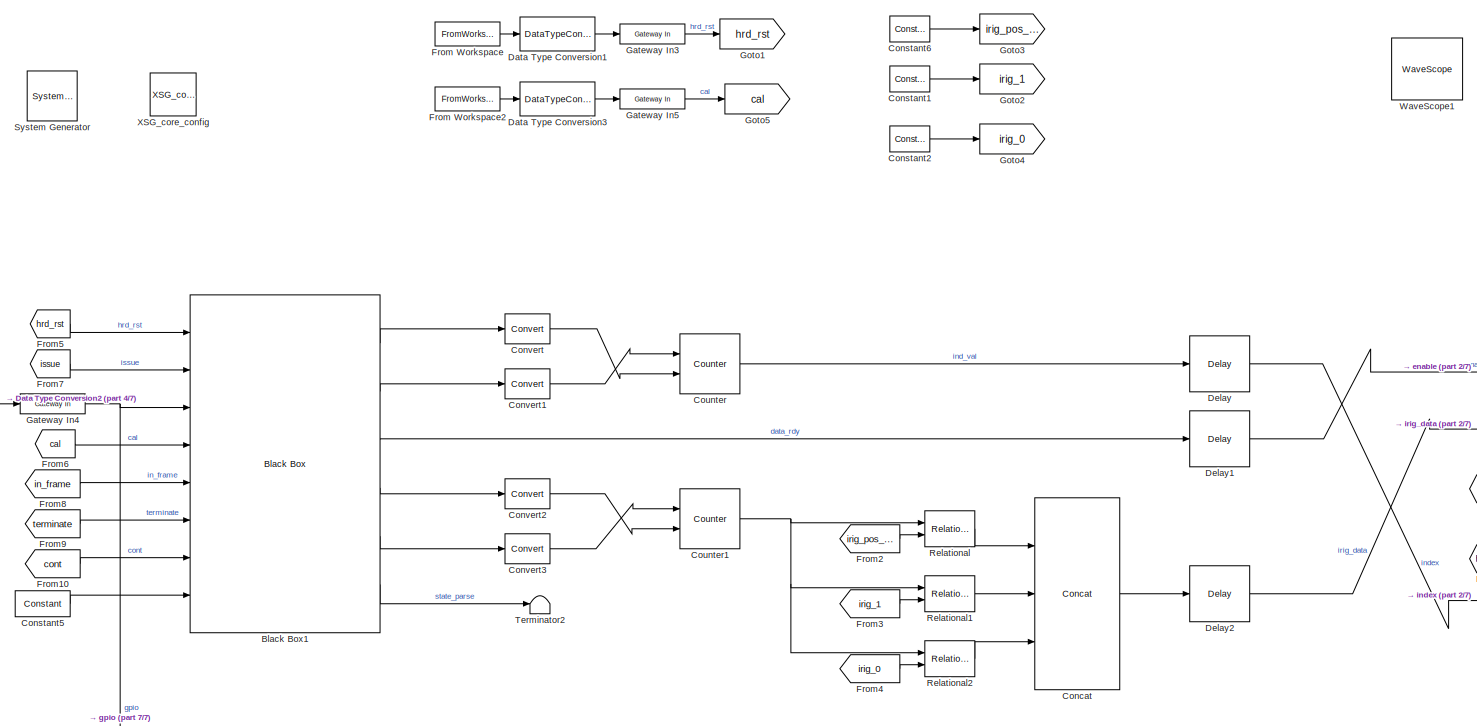
[diagram: root canvas - part 1/7, top left region]
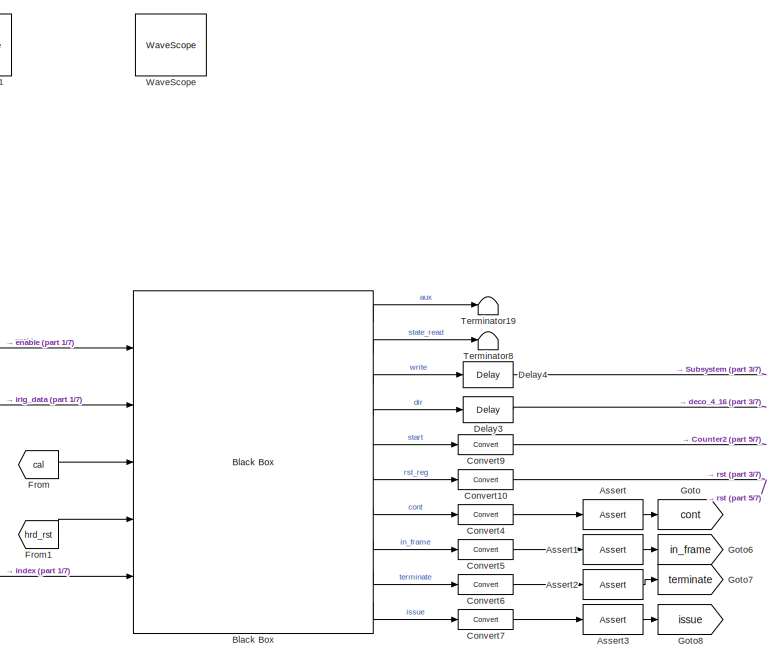
[diagram: root canvas - part 2/7, top center region]
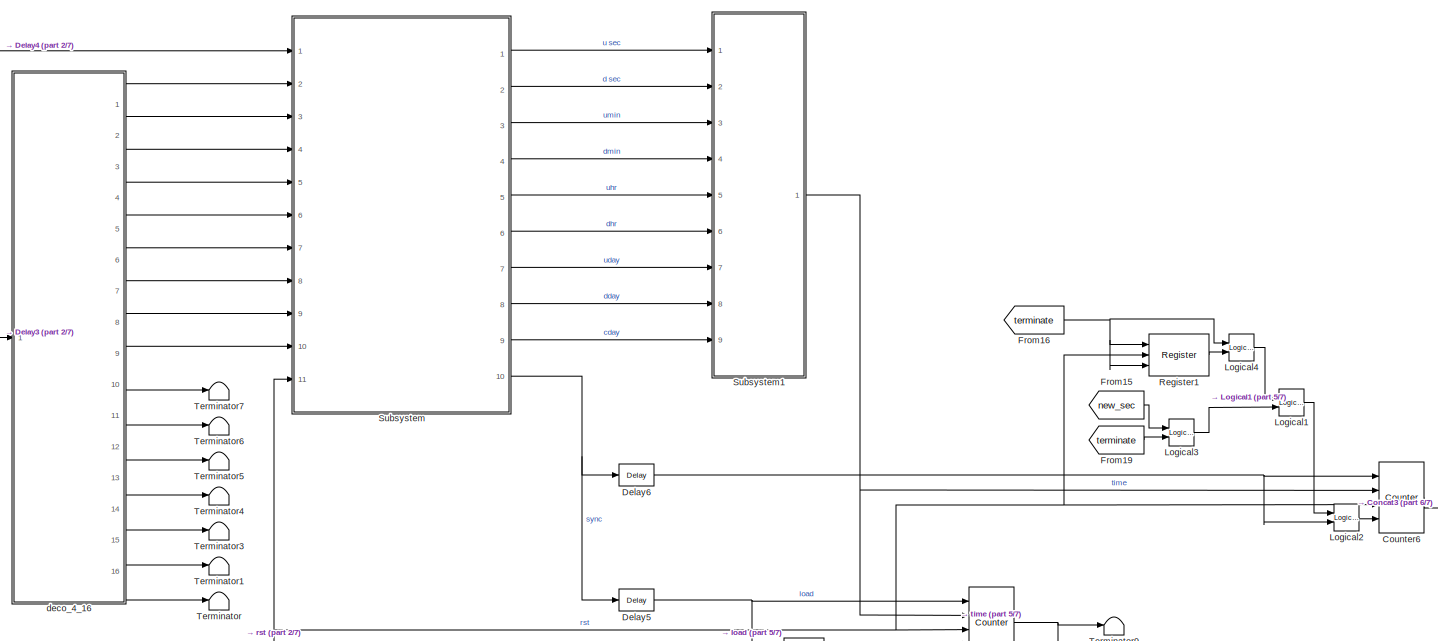
[diagram: root canvas - part 3/7, top right region]
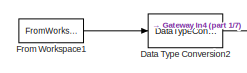
[diagram: root canvas - part 4/7, top left region]
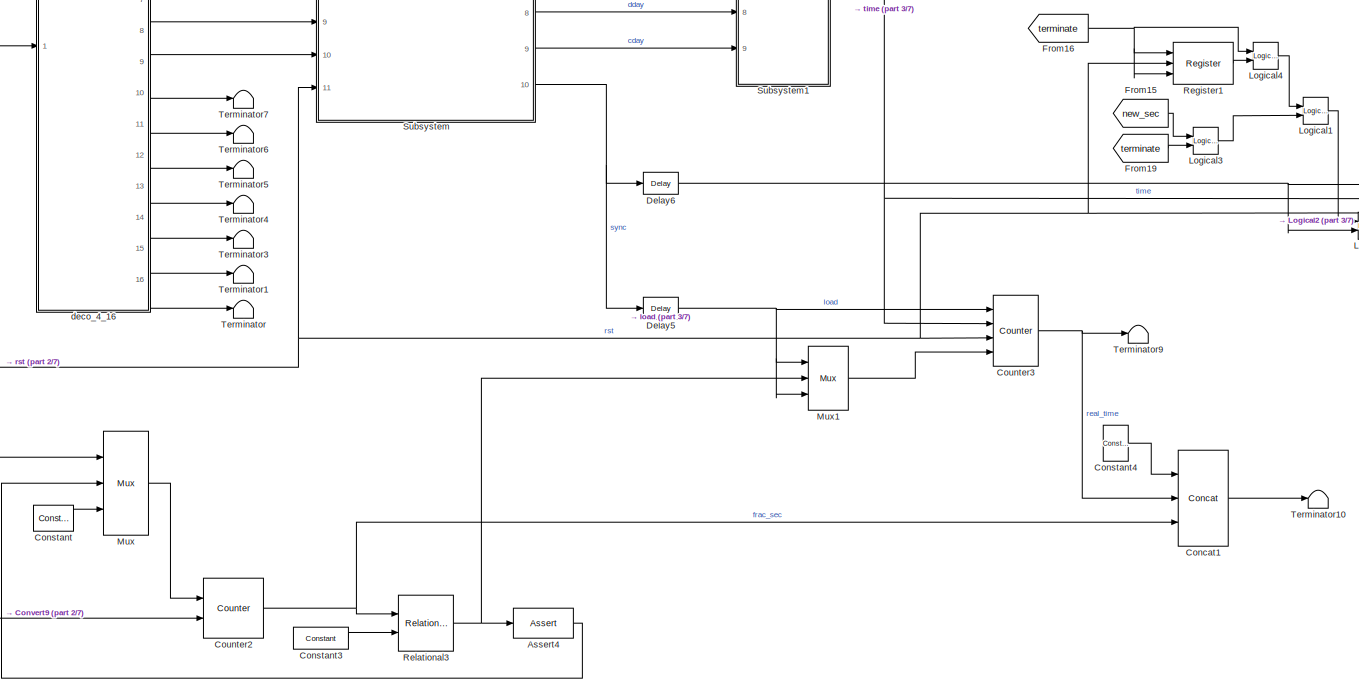
[diagram: root canvas - part 5/7, middle right region]
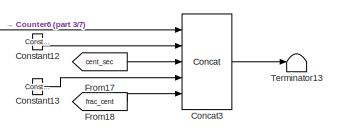
[diagram: root canvas - part 6/7, middle right region]
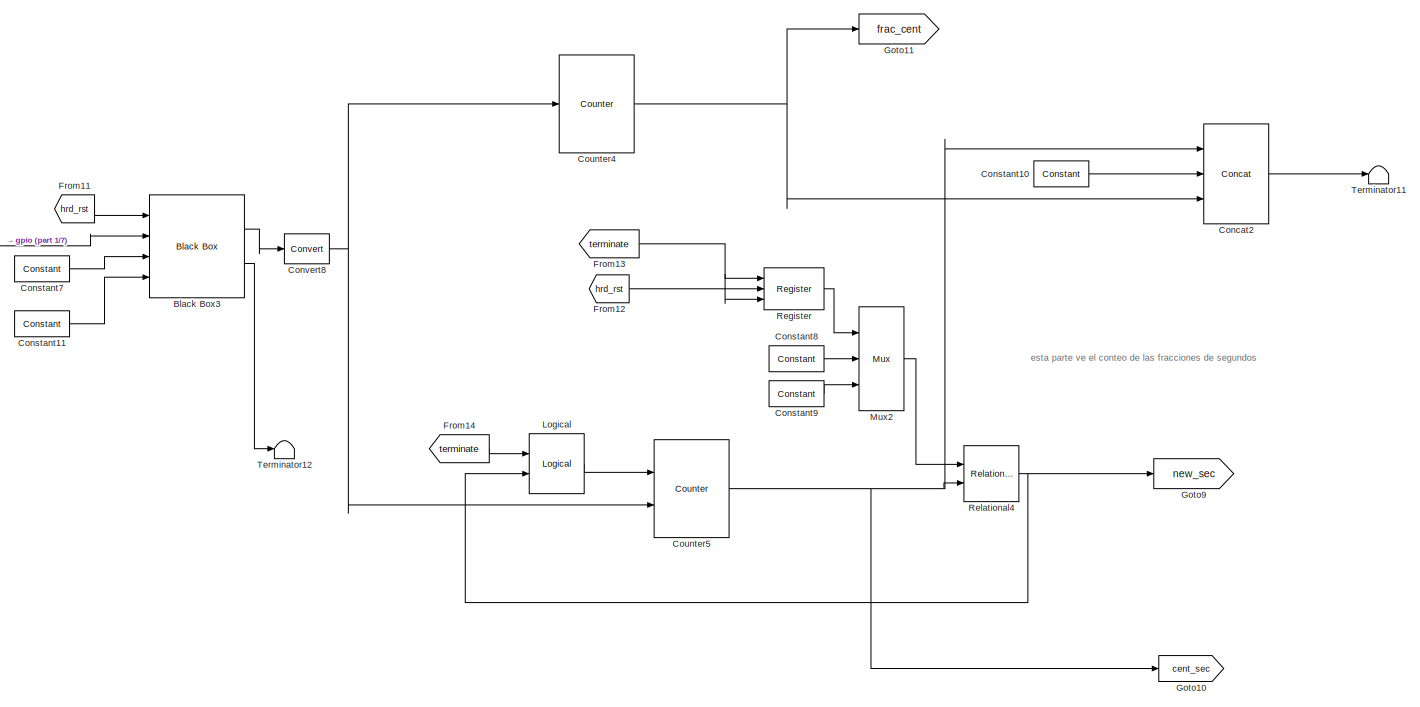
[diagram: root canvas - part 7/7, bottom left region]
MODEL slx_b46e9d52abe5
KIND model
BLOCK [Reference]  System Generator  REF=xbsIndex_r4/ System Generator
  AttributesFormatString = System\nGenerator
  Impl_file = ISE Defaults
  Ports = []
  SourceBlock = xbsIndex_r4/ System Generator
  SourceType = Xilinx System Generator Block
  Synth_file = XST Defaults
  Tag = genX
  UserDataPersistent = on
  block_type = sysgen
  clock_wrapper = Clock Enables
  core_generation = According to Block Masks
  dbl_ovrd = According to Block Masks
  dcm_input_clock_period = 10
  deprecated_control = off
  directory = ./netlist
  eval_field = 0
  has_advanced_control = 0
  incr_netlist = off
  infoedit = System Generator
  package = fbg676
  part = xc7k325t
  proj_type = Project Navigator
  run_coregen = off
  sg_icon_stat = 50,50,0,0,token,white,0,58c5b5770fe5f7c311f53dbc6e73f0f6,right,,[ ],[ ]
  sg_mask_display = fprintf('','COMMENT: begin icon graphics');\npatch([0 50 50 0 0 ],[0 0 50 50 0 ],[1 1 1 ]);\npatch([1.6375 16.81 27.31 37.81 48.31 27.31 12.1375 1.6375 ],[36.655 36.655 47.155 36.655 47.155 47.155 47.155 36.655 ],[0.933333 0.203922 0.141176 ]);\npatch([12.1375 27.31 16.81 1.6375 12.1375 ],[26.155 26.155 36.655 36.655 26.155 ],[0.698039 0.0313725 0.219608 ]);\npatch([1.6375 16.81 27.31 12.1375 1.6375 ]...<+327ch>
  sggui_pos = -1,-1,-1,-1
  simulink_period = 1
  speed = -3
  synthesis_tool = XST
  sysclk_period = 10
  testbench = off
  trim_vbits = Everywhere in SubSystem
  xilinxfamily = Kintex7
BLOCK [Reference] Assert  REF=xbsIndex_r4/Assert
  Ports = [1, 1]
  SourceBlock = xbsIndex_r4/Assert
  SourceType = Xilinx Assert Block
  arith_type = Boolean
  assert_rate = on
  assert_type = on
  bin_pt = 14
  block_type = assert
  exp_width = 8
  frac_width = 24
  gui_display_data_type = Boolean
  has_advanced_control = 0
  infoedit = Asserts a user-defined sample rate and/or type on a signal.<br><br>Hardware notes: In hardware this block costs nothing.
  n_bits = 16
  output_port = on
  period = 1
  preci_type = Single
  rate_source = Explicitly
  sg_icon_stat = 60,30,1,1,white,blue,0,9657e937,right,,[ ],[ ]
  sg_mask_display = fprintf('','COMMENT: begin icon graphics');\npatch([0 60 60 0 0 ],[0 0 30 30 0 ],[0.77 0.82 0.91 ]);\nplot([0 60 60 0 0 ],[0 0 30 30 0 ]);\npatch([21.1 26.88 30.88 34.88 38.88 30.88 25.1 21.1 ],[19.44 19.44 23.44 19.44 23.44 23.44 23.44 19.44 ],[1 1 1 ]);\npatch([25.1 30.88 26.88 21.1 25.1 ],[15.44 15.44 19.44 19.44 15.44 ],[0.931 0.946 0.973 ]);\npatch([21.1 26.88 30.88 25.1 21.1 ],[11.44 11.44 15.44 ...<+289ch>  <repeated x5 — deduplicated; at blocks: Assert, Assert1, Assert2, Assert3, Assert4>
  sggui_pos = 53,14,337,674
  type_source = Explicitly
BLOCK [Reference] Assert1  REF=xbsIndex_r4/Assert
  Ports = [1, 1]
  SourceBlock = xbsIndex_r4/Assert
  SourceType = Xilinx Assert Block
  arith_type = Boolean
  assert_rate = on
  assert_type = on
  bin_pt = 14
  block_type = assert
  exp_width = 8
  frac_width = 24
  gui_display_data_type = Boolean
  has_advanced_control = 0
  infoedit = Asserts a user-defined sample rate and/or type on a signal.<br><br>Hardware notes: In hardware this block costs nothing.
  n_bits = 16
  output_port = on
  period = 1
  preci_type = Single
  rate_source = Explicitly
  sg_icon_stat = 60,30,1,1,white,blue,0,9657e937,right,,[ ],[ ]
  sggui_pos = 73,34,337,674
  type_source = Explicitly
BLOCK [Reference] Assert2  REF=xbsIndex_r4/Assert
  Ports = [1, 1]
  SourceBlock = xbsIndex_r4/Assert
  SourceType = Xilinx Assert Block
  arith_type = Boolean
  assert_rate = on
  assert_type = on
  bin_pt = 14
  block_type = assert
  exp_width = 8
  frac_width = 24
  gui_display_data_type = Boolean
  has_advanced_control = 0
  infoedit = Asserts a user-defined sample rate and/or type on a signal.<br><br>Hardware notes: In hardware this block costs nothing.
  n_bits = 16
  output_port = on
  period = 1
  preci_type = Single
  rate_source = Explicitly
  sg_icon_stat = 60,30,1,1,white,blue,0,9657e937,right,,[ ],[ ]
  sggui_pos = 73,34,337,674
  type_source = Explicitly
BLOCK [Reference] Assert3  REF=xbsIndex_r4/Assert
  Ports = [1, 1]
  SourceBlock = xbsIndex_r4/Assert
  SourceType = Xilinx Assert Block
  arith_type = Boolean
  assert_rate = on
  assert_type = on
  bin_pt = 14
  block_type = assert
  exp_width = 8
  frac_width = 24
  gui_display_data_type = Boolean
  has_advanced_control = 0
  infoedit = Asserts a user-defined sample rate and/or type on a signal.<br><br>Hardware notes: In hardware this block costs nothing.
  n_bits = 16
  output_port = on
  period = 1
  preci_type = Single
  rate_source = Explicitly
  sg_icon_stat = 60,30,1,1,white,blue,0,9657e937,right,,[ ],[ ]
  sggui_pos = 73,34,337,674
  type_source = Explicitly
BLOCK [Reference] Assert4  REF=xbsIndex_r4/Assert
  Ports = [1, 1]
  SourceBlock = xbsIndex_r4/Assert
  SourceType = Xilinx Assert Block
  arith_type = Signed  (2's comp)
  assert_rate = on
  assert_type = off
  bin_pt = 14
  block_type = assert
  exp_width = 8
  frac_width = 24
  gui_display_data_type = Fixed-point
  has_advanced_control = 0
  infoedit = Asserts a user-defined sample rate and/or type on a signal.<br><br>Hardware notes: In hardware this block costs nothing.
  n_bits = 16
  output_port = on
  period = 1
  preci_type = Single
  rate_source = Explicitly
  sg_icon_stat = 60,30,1,1,white,blue,0,9657e937,right,,[ ],[ ]
  sggui_pos = 63,24,337,674
  type_source = Explicitly
BLOCK [Reference] Black Box  REF=xbsIndex_r4/Black Box
  Ports = [5, 10]
  SourceBlock = xbsIndex_r4/Black Box
  SourceType = Xilinx Black Box Block
  block_type = blackbox2
  has_advanced_control = 0
  infoedit = Incorporates black box HDL and simulation model into a System Generator design.<br><br>You must supply a Black Box with certain information about the HDL component you would like to bring into System Generator. This information is provided through a Matlab function.<br><br>When "Simulation mode" is set to "Inactive", you will typically want to provide a separate simulation model by using a Simulat...<+126ch>  <repeated x3 — deduplicated; at blocks: Black Box, Black Box1, Black Box3>
  init_code = irig_read_2_config
  sg_icon_stat = 240,343,5,10,white,blue,0,449fbb23,right,,[ ],[ ]
  sg_mask_display = fprintf('','COMMENT: begin icon graphics');\npatch([0 240 240 0 0 ],[0 0 343 343 0 ],[0.77 0.82 0.91 ]);\nplot([0 240 240 0 0 ],[0 0 343 343 0 ]);\npatch([44.35 93.48 127.48 161.48 195.48 127.48 78.35 44.35 ],[208.74 208.74 242.74 208.74 242.74 242.74 242.74 208.74 ],[1 1 1 ]);\npatch([78.35 127.48 93.48 44.35 78.35 ],[174.74 174.74 208.74 208.74 174.74 ],[0.931 0.946 0.973 ]);\npatch([44.35 93.48 127....<+1022ch>
  sggui_pos = 53,14,416,454
  sim_method = ISE Simulator
  verbose = off
  xl_area = [0,0,0,0,0,0,0]
  xl_use_area = off
BLOCK [Reference] Black Box1  REF=xbsIndex_r4/Black Box
  Ports = [8, 6]
  SourceBlock = xbsIndex_r4/Black Box
  SourceType = Xilinx Black Box Block
  block_type = blackbox2
  has_advanced_control = 0
  init_code = parse_inputs_config
  sg_icon_stat = 190,338,8,6,white,blue,0,665fd9e7,right,,[ ],[ ]
  sg_mask_display = fprintf('','COMMENT: begin icon graphics');\npatch([0 190 190 0 0 ],[0 0 338 338 0 ],[0.77 0.82 0.91 ]);\nplot([0 190 190 0 0 ],[0 0 338 338 0 ]);\npatch([34.925 73.94 100.94 127.94 154.94 100.94 61.925 34.925 ],[198.97 198.97 225.97 198.97 225.97 225.97 225.97 198.97 ],[1 1 1 ]);\npatch([61.925 100.94 73.94 34.925 61.925 ],[171.97 171.97 198.97 198.97 171.97 ],[0.931 0.946 0.973 ]);\npatch([34.925 73....<+998ch>
  sggui_pos = 73,34,416,454
  sim_method = ISE Simulator
  verbose = off
  xl_area = [0,0,0,0,0,0,0]
  xl_use_area = off
BLOCK [Reference] Black Box3  REF=xbsIndex_r4/Black Box
  Ports = [4, 2]
  SourceBlock = xbsIndex_r4/Black Box
  SourceType = Xilinx Black Box Block
  block_type = blackbox2
  has_advanced_control = 0
  init_code = fsm_frac_config
  sg_icon_stat = 95,103,4,2,white,blue,0,63369a8c,right,,[ ],[ ]
  sg_mask_display = fprintf('','COMMENT: begin icon graphics');\npatch([0 95 95 0 0 ],[0 0 103 103 0 ],[0.77 0.82 0.91 ]);\nplot([0 95 95 0 0 ],[0 0 103 103 0 ]);\npatch([18.075 36.86 49.86 62.86 75.86 49.86 31.075 18.075 ],[65.43 65.43 78.43 65.43 78.43 78.43 78.43 65.43 ],[1 1 1 ]);\npatch([31.075 49.86 36.86 18.075 31.075 ],[52.43 52.43 65.43 65.43 52.43 ],[0.931 0.946 0.973 ]);\npatch([18.075 36.86 49.86 31.075 18.075...<+578ch>
  sggui_pos = 73,34,416,454
  sim_method = ISE Simulator
  verbose = off
  xl_area = [0,0,0,0,0,0,0]
  xl_use_area = off
BLOCK [Reference] Concat  REF=xbsIndex_r4/Concat
  Ports = [3, 1]
  SourceBlock = xbsIndex_r4/Concat
  SourceType = Xilinx Bus Concatenator Block
  block_type = concat
  dbl_ovrd = off
  has_advanced_control = 0
  infoedit = Concatenates two or more inputs.  Output will be cast to an unsigned value with the binary point at zero.
  num_inputs = 3
  sg_icon_stat = 85,192,3,1,white,blue,0,61ef8218,right,,[ ],[ ]
  sg_mask_display = fprintf('','COMMENT: begin icon graphics');\npatch([0 85 85 0 0 ],[0 0 192 192 0 ],[0.77 0.82 0.91 ]);\nplot([0 85 85 0 0 ],[0 0 192 192 0 ]);\npatch([15.3 32.64 44.64 56.64 68.64 44.64 27.3 15.3 ],[109.32 109.32 121.32 109.32 121.32 121.32 121.32 109.32 ],[1 1 1 ]);\npatch([27.3 44.64 32.64 15.3 27.3 ],[97.32 97.32 109.32 109.32 97.32 ],[0.931 0.946 0.973 ]);\npatch([15.3 32.64 44.64 27.3 15.3 ],[85.3...<+417ch>
  sggui_pos = 73,34,328,208
BLOCK [Reference] Concat1  REF=xbsIndex_r4/Concat
  Ports = [3, 1]
  SourceBlock = xbsIndex_r4/Concat
  SourceType = Xilinx Bus Concatenator Block
  block_type = concat
  dbl_ovrd = off
  has_advanced_control = 0
  infoedit = Concatenates two or more inputs.  Output will be cast to an unsigned value with the binary point at zero.
  num_inputs = 3
  sg_icon_stat = 50,96,3,1,white,blue,0,61ef8218,right,,[ ],[ ]
  sg_mask_display = fprintf('','COMMENT: begin icon graphics');\npatch([0 50 50 0 0 ],[0 0 96 96 0 ],[0.77 0.82 0.91 ]);\nplot([0 50 50 0 0 ],[0 0 96 96 0 ]);\npatch([9.425 19.54 26.54 33.54 40.54 26.54 16.425 9.425 ],[55.77 55.77 62.77 55.77 62.77 62.77 62.77 55.77 ],[1 1 1 ]);\npatch([16.425 26.54 19.54 9.425 16.425 ],[48.77 48.77 55.77 55.77 48.77 ],[0.931 0.946 0.973 ]);\npatch([9.425 19.54 26.54 16.425 9.425 ],[41.77...<+421ch>
  sggui_pos = 73,34,328,208
BLOCK [Reference] Concat2  REF=xbsIndex_r4/Concat
  Ports = [3, 1]
  SourceBlock = xbsIndex_r4/Concat
  SourceType = Xilinx Bus Concatenator Block
  block_type = concat
  dbl_ovrd = off
  has_advanced_control = 0
  infoedit = Concatenates two or more inputs.  Output will be cast to an unsigned value with the binary point at zero.
  num_inputs = 3
  sg_icon_stat = 65,100,3,1,white,blue,0,61ef8218,right,,[ ],[ ]
  sg_mask_display = fprintf('','COMMENT: begin icon graphics');\npatch([0 65 65 0 0 ],[0 0 100 100 0 ],[0.77 0.82 0.91 ]);\nplot([0 65 65 0 0 ],[0 0 100 100 0 ]);\npatch([11.975 24.98 33.98 42.98 51.98 33.98 20.975 11.975 ],[59.99 59.99 68.99 59.99 68.99 68.99 68.99 59.99 ],[1 1 1 ]);\npatch([20.975 33.98 24.98 11.975 20.975 ],[50.99 50.99 59.99 59.99 50.99 ],[0.931 0.946 0.973 ]);\npatch([11.975 24.98 33.98 20.975 11.975...<+431ch>
  sggui_pos = 73,34,328,208
BLOCK [Reference] Concat3  REF=xbsIndex_r4/Concat
  Ports = [5, 1]
  SourceBlock = xbsIndex_r4/Concat
  SourceType = Xilinx Bus Concatenator Block
  block_type = concat
  dbl_ovrd = off
  has_advanced_control = 0
  infoedit = Concatenates two or more inputs.  Output will be cast to an unsigned value with the binary point at zero.
  num_inputs = 5
  sg_icon_stat = 50,96,5,1,white,blue,0,64797e70,right,,[ ],[ ]
  sg_mask_display = fprintf('','COMMENT: begin icon graphics');\npatch([0 50 50 0 0 ],[0 0 96 96 0 ],[0.77 0.82 0.91 ]);\nplot([0 50 50 0 0 ],[0 0 96 96 0 ]);\npatch([9.425 19.54 26.54 33.54 40.54 26.54 16.425 9.425 ],[55.77 55.77 62.77 55.77 62.77 62.77 62.77 55.77 ],[1 1 1 ]);\npatch([16.425 26.54 19.54 9.425 16.425 ],[48.77 48.77 55.77 55.77 48.77 ],[0.931 0.946 0.973 ]);\npatch([9.425 19.54 26.54 16.425 9.425 ],[41.77...<+423ch>
  sggui_pos = 63,24,328,208
BLOCK [Reference] Constant  REF=xbsIndex_r4/Constant
  Ports = [0, 1]
  SourceBlock = xbsIndex_r4/Constant
  SourceType = Xilinx Constant Block Block
  arith_type = Boolean
  bin_pt = 14
  block_type = constant
  carry = CIN
  const = 1
  dbl_ovrd = off
  dsp48_infoedit = The use of this block for DSP48 instructions is deprecated.  Please use the Opmode block.
  equ = P=C
  exp_width = 8
  explicit_period = on
  frac_width = 24
  gui_display_data_type = Boolean
  has_advanced_control = 0
  inp1 = P
  inp2 = PCIN>>17
  n_bits = 16
  opr = +
  opselect = C
  period = 1
  preci_type = Single
  sg_icon_stat = 40,26,0,1,white,blue,0,1c72b5be,right,,[ ],[ ]
  sg_mask_display = fprintf('','COMMENT: begin icon graphics');\npatch([0 40 40 0 0 ],[0 0 26 26 0 ],[0.77 0.82 0.91 ]);\nplot([0 40 40 0 0 ],[0 0 26 26 0 ]);\npatch([13.325 17.66 20.66 23.66 26.66 20.66 16.325 13.325 ],[16.33 16.33 19.33 16.33 19.33 19.33 19.33 16.33 ],[1 1 1 ]);\npatch([16.325 20.66 17.66 13.325 16.325 ],[13.33 13.33 16.33 16.33 13.33 ],[0.931 0.946 0.973 ]);\npatch([13.325 17.66 20.66 16.325 13.325 ],[...<+323ch>
  sggui_pos = 73,34,337,463
BLOCK [Reference] Constant1  REF=xbsIndex_r4/Constant
  Ports = [0, 1]
  SourceBlock = xbsIndex_r4/Constant
  SourceType = Xilinx Constant Block Block
  arith_type = Unsigned
  bin_pt = 0
  block_type = constant
  carry = CIN
  const = 27
  dbl_ovrd = off
  dsp48_infoedit = The use of this block for DSP48 instructions is deprecated.  Please use the Opmode block.
  equ = P=C
  exp_width = 8
  explicit_period = on
  frac_width = 24
  gui_display_data_type = Fixed-point
  has_advanced_control = 0
  inp1 = P
  inp2 = PCIN>>17
  n_bits = 8
  opr = +
  opselect = C
  period = 1
  preci_type = Single
  sg_icon_stat = 40,26,0,1,white,blue,0,63edda7d,right,,[ ],[ ]
  sg_mask_display = fprintf('','COMMENT: begin icon graphics');\npatch([0 40 40 0 0 ],[0 0 26 26 0 ],[0.77 0.82 0.91 ]);\nplot([0 40 40 0 0 ],[0 0 26 26 0 ]);\npatch([13.325 17.66 20.66 23.66 26.66 20.66 16.325 13.325 ],[16.33 16.33 19.33 16.33 19.33 19.33 19.33 16.33 ],[1 1 1 ]);\npatch([16.325 20.66 17.66 13.325 16.325 ],[13.33 13.33 16.33 16.33 13.33 ],[0.931 0.946 0.973 ]);\npatch([13.325 17.66 20.66 16.325 13.325 ],[...<+324ch>
  sggui_pos = 53,14,337,463
BLOCK [Reference] Constant10  REF=xbsIndex_r4/Constant
  Ports = [0, 1]
  SourceBlock = xbsIndex_r4/Constant
  SourceType = Xilinx Constant Block Block
  arith_type = Unsigned
  bin_pt = 0
  block_type = constant
  carry = CIN
  const = 0
  dbl_ovrd = off
  dsp48_infoedit = The use of this block for DSP48 instructions is deprecated.  Please use the Opmode block.
  equ = P=C
  exp_width = 8
  explicit_period = on
  frac_width = 24
  gui_display_data_type = Fixed-point
  has_advanced_control = 0
  inp1 = P
  inp2 = PCIN>>17
  n_bits = 4
  opr = +
  opselect = C
  period = 1
  preci_type = Single
  sg_icon_stat = 55,26,0,1,white,blue,0,bf4ddd8b,right,,[ ],[ ]
  sg_mask_display = fprintf('','COMMENT: begin icon graphics');\npatch([0 55 55 0 0 ],[0 0 26 26 0 ],[0.77 0.82 0.91 ]);\nplot([0 55 55 0 0 ],[0 0 26 26 0 ]);\npatch([20.325 24.66 27.66 30.66 33.66 27.66 23.325 20.325 ],[16.33 16.33 19.33 16.33 19.33 19.33 19.33 16.33 ],[1 1 1 ]);\npatch([23.325 27.66 24.66 20.325 23.325 ],[13.33 13.33 16.33 16.33 13.33 ],[0.931 0.946 0.973 ]);\npatch([20.325 24.66 27.66 23.325 20.325 ],[...<+323ch>  <repeated x12 — deduplicated; at blocks: Constant10, Constant11, Constant5, Constant1, Constant2, Constant3, Constant6, Constant7, Constant8, Constant9>
  sggui_pos = 73,34,337,463
BLOCK [Reference] Constant11  REF=xbsIndex_r4/Constant
  Ports = [0, 1]
  SourceBlock = xbsIndex_r4/Constant
  SourceType = Xilinx Constant Block Block
  arith_type = Unsigned
  bin_pt = 0
  block_type = constant
  carry = CIN
  const = 2
  dbl_ovrd = off
  dsp48_infoedit = The use of this block for DSP48 instructions is deprecated.  Please use the Opmode block.
  equ = P=C
  exp_width = 8
  explicit_period = on
  frac_width = 24
  gui_display_data_type = Fixed-point
  has_advanced_control = 0
  inp1 = P
  inp2 = PCIN>>17
  n_bits = 32
  opr = +
  opselect = C
  period = 1
  preci_type = Single
  sg_icon_stat = 55,26,0,1,white,blue,0,fca86624,right,,[ ],[ ]
  sggui_pos = 53,14,337,463
BLOCK [Reference] Constant12  REF=xbsIndex_r4/Constant
  Ports = [0, 1]
  SourceBlock = xbsIndex_r4/Constant
  SourceType = Xilinx Constant Block Block
  arith_type = Unsigned
  bin_pt = 0
  block_type = constant
  carry = CIN
  const = 0
  dbl_ovrd = off
  dsp48_infoedit = The use of this block for DSP48 instructions is deprecated.  Please use the Opmode block.
  equ = P=C
  exp_width = 8
  explicit_period = on
  frac_width = 24
  gui_display_data_type = Fixed-point
  has_advanced_control = 0
  inp1 = P
  inp2 = PCIN>>17
  n_bits = 25
  opr = +
  opselect = C
  period = 1
  preci_type = Single
  sg_icon_stat = 10,16,0,1,white,blue,0,bf4ddd8b,right,,[ ],[ ]
  sg_mask_display = fprintf('','COMMENT: begin icon graphics');\npatch([0 10 10 0 0 ],[0 0 16 16 0 ],[0.77 0.82 0.91 ]);\nplot([0 10 10 0 0 ],[0 0 16 16 0 ]);\npatch([2.775 4.22 5.22 6.22 7.22 5.22 3.775 2.775 ],[9.11 9.11 10.11 9.11 10.11 10.11 10.11 9.11 ],[1 1 1 ]);\npatch([3.775 5.22 4.22 2.775 3.775 ],[8.11 8.11 9.11 9.11 8.11 ],[0.931 0.946 0.973 ]);\npatch([2.775 4.22 5.22 3.775 2.775 ],[7.11 7.11 8.11 8.11 7.11 ],...<+281ch>
  sggui_pos = 73,34,337,463
BLOCK [Reference] Constant13  REF=xbsIndex_r4/Constant
  Ports = [0, 1]
  SourceBlock = xbsIndex_r4/Constant
  SourceType = Xilinx Constant Block Block
  arith_type = Unsigned
  bin_pt = 0
  block_type = constant
  carry = CIN
  const = 0
  dbl_ovrd = off
  dsp48_infoedit = The use of this block for DSP48 instructions is deprecated.  Please use the Opmode block.
  equ = P=C
  exp_width = 8
  explicit_period = on
  frac_width = 24
  gui_display_data_type = Fixed-point
  has_advanced_control = 0
  inp1 = P
  inp2 = PCIN>>17
  n_bits = 28
  opr = +
  opselect = C
  period = 1
  preci_type = Single
  sg_icon_stat = 10,16,0,1,white,blue,0,bf4ddd8b,right,,[ ],[ ]
  sg_mask_display = fprintf('','COMMENT: begin icon graphics');\npatch([0 10 10 0 0 ],[0 0 16 16 0 ],[0.77 0.82 0.91 ]);\nplot([0 10 10 0 0 ],[0 0 16 16 0 ]);\npatch([2.775 4.22 5.22 6.22 7.22 5.22 3.775 2.775 ],[9.11 9.11 10.11 9.11 10.11 10.11 10.11 9.11 ],[1 1 1 ]);\npatch([3.775 5.22 4.22 2.775 3.775 ],[8.11 8.11 9.11 9.11 8.11 ],[0.931 0.946 0.973 ]);\npatch([2.775 4.22 5.22 3.775 2.775 ],[7.11 7.11 8.11 8.11 7.11 ],...<+281ch>
  sggui_pos = 63,24,337,463
BLOCK [Reference] Constant2  REF=xbsIndex_r4/Constant
  Ports = [0, 1]
  SourceBlock = xbsIndex_r4/Constant
  SourceType = Xilinx Constant Block Block
  arith_type = Unsigned
  bin_pt = 0
  block_type = constant
  carry = CIN
  const = 9
  dbl_ovrd = off
  dsp48_infoedit = The use of this block for DSP48 instructions is deprecated.  Please use the Opmode block.
  equ = P=C
  exp_width = 8
  explicit_period = on
  frac_width = 24
  gui_display_data_type = Fixed-point
  has_advanced_control = 0
  inp1 = P
  inp2 = PCIN>>17
  n_bits = 8
  opr = +
  opselect = C
  period = 1
  preci_type = Single
  sg_icon_stat = 40,26,0,1,white,blue,0,350ae870,right,,[ ],[ ]
  sg_mask_display = fprintf('','COMMENT: begin icon graphics');\npatch([0 40 40 0 0 ],[0 0 26 26 0 ],[0.77 0.82 0.91 ]);\nplot([0 40 40 0 0 ],[0 0 26 26 0 ]);\npatch([13.325 17.66 20.66 23.66 26.66 20.66 16.325 13.325 ],[16.33 16.33 19.33 16.33 19.33 19.33 19.33 16.33 ],[1 1 1 ]);\npatch([16.325 20.66 17.66 13.325 16.325 ],[13.33 13.33 16.33 16.33 13.33 ],[0.931 0.946 0.973 ]);\npatch([13.325 17.66 20.66 16.325 13.325 ],[...<+323ch>
  sggui_pos = 53,14,337,463
BLOCK [Reference] Constant3  REF=xbsIndex_r4/Constant
  Ports = [0, 1]
  SourceBlock = xbsIndex_r4/Constant
  SourceType = Xilinx Constant Block Block
  arith_type = Unsigned
  bin_pt = 0
  block_type = constant
  carry = CIN
  const = 3200
  dbl_ovrd = off
  dsp48_infoedit = The use of this block for DSP48 instructions is deprecated.  Please use the Opmode block.
  equ = P=C
  exp_width = 8
  explicit_period = on
  frac_width = 24
  gui_display_data_type = Fixed-point
  has_advanced_control = 0
  inp1 = P
  inp2 = PCIN>>17
  n_bits = 28
  opr = +
  opselect = C
  period = 1
  preci_type = Single
  sg_icon_stat = 55,22,0,1,white,blue,0,2e76219e,right,,[ ],[ ]
  sg_mask_display = fprintf('','COMMENT: begin icon graphics');\npatch([0 55 55 0 0 ],[0 0 22 22 0 ],[0.77 0.82 0.91 ]);\nplot([0 55 55 0 0 ],[0 0 22 22 0 ]);\npatch([20.325 24.66 27.66 30.66 33.66 27.66 23.325 20.325 ],[14.33 14.33 17.33 14.33 17.33 17.33 17.33 14.33 ],[1 1 1 ]);\npatch([23.325 27.66 24.66 20.325 23.325 ],[11.33 11.33 14.33 14.33 11.33 ],[0.931 0.946 0.973 ]);\npatch([20.325 24.66 27.66 23.325 20.325 ],[...<+320ch>
  sggui_pos = 53,14,337,463
BLOCK [Reference] Constant4  REF=xbsIndex_r4/Constant
  Ports = [0, 1]
  SourceBlock = xbsIndex_r4/Constant
  SourceType = Xilinx Constant Block Block
  arith_type = Unsigned
  bin_pt = 0
  block_type = constant
  carry = CIN
  const = 0
  dbl_ovrd = off
  dsp48_infoedit = The use of this block for DSP48 instructions is deprecated.  Please use the Opmode block.
  equ = P=C
  exp_width = 8
  explicit_period = on
  frac_width = 24
  gui_display_data_type = Fixed-point
  has_advanced_control = 0
  inp1 = P
  inp2 = PCIN>>17
  n_bits = 1
  opr = +
  opselect = C
  period = 1
  preci_type = Single
  sg_icon_stat = 25,36,0,1,white,blue,0,bf4ddd8b,right,,[ ],[ ]
  sg_mask_display = fprintf('','COMMENT: begin icon graphics');\npatch([0 25 25 0 0 ],[0 0 36 36 0 ],[0.77 0.82 0.91 ]);\nplot([0 25 25 0 0 ],[0 0 36 36 0 ]);\npatch([5.325 9.66 12.66 15.66 18.66 12.66 8.325 5.325 ],[21.33 21.33 24.33 21.33 24.33 24.33 24.33 21.33 ],[1 1 1 ]);\npatch([8.325 12.66 9.66 5.325 8.325 ],[18.33 18.33 21.33 21.33 18.33 ],[0.931 0.946 0.973 ]);\npatch([5.325 9.66 12.66 8.325 5.325 ],[15.33 15.33 ...<+311ch>
  sggui_pos = 63,24,337,463
BLOCK [Reference] Constant5  REF=xbsIndex_r4/Constant
  Ports = [0, 1]
  SourceBlock = xbsIndex_r4/Constant
  SourceType = Xilinx Constant Block Block
  arith_type = Unsigned
  bin_pt = 0
  block_type = constant
  carry = CIN
  const = 7
  dbl_ovrd = off
  dsp48_infoedit = The use of this block for DSP48 instructions is deprecated.  Please use the Opmode block.
  equ = P=C
  exp_width = 8
  explicit_period = on
  frac_width = 24
  gui_display_data_type = Fixed-point
  has_advanced_control = 0
  inp1 = P
  inp2 = PCIN>>17
  n_bits = 32
  opr = +
  opselect = C
  period = 1
  preci_type = Single
  sg_icon_stat = 55,26,0,1,white,blue,0,2a6960a5,right,,[ ],[ ]
  sggui_pos = 73,34,337,463
BLOCK [Reference] Constant6  REF=xbsIndex_r4/Constant
  Ports = [0, 1]
  SourceBlock = xbsIndex_r4/Constant
  SourceType = Xilinx Constant Block Block
  arith_type = Unsigned
  bin_pt = 0
  block_type = constant
  carry = CIN
  const = 48
  dbl_ovrd = off
  dsp48_infoedit = The use of this block for DSP48 instructions is deprecated.  Please use the Opmode block.
  equ = P=C
  exp_width = 8
  explicit_period = on
  frac_width = 24
  gui_display_data_type = Fixed-point
  has_advanced_control = 0
  inp1 = P
  inp2 = PCIN>>17
  n_bits = 8
  opr = +
  opselect = C
  period = 1
  preci_type = Single
  sg_icon_stat = 40,26,0,1,white,blue,0,c663a600,right,,[ ],[ ]
  sg_mask_display = fprintf('','COMMENT: begin icon graphics');\npatch([0 40 40 0 0 ],[0 0 26 26 0 ],[0.77 0.82 0.91 ]);\nplot([0 40 40 0 0 ],[0 0 26 26 0 ]);\npatch([13.325 17.66 20.66 23.66 26.66 20.66 16.325 13.325 ],[16.33 16.33 19.33 16.33 19.33 19.33 19.33 16.33 ],[1 1 1 ]);\npatch([16.325 20.66 17.66 13.325 16.325 ],[13.33 13.33 16.33 16.33 13.33 ],[0.931 0.946 0.973 ]);\npatch([13.325 17.66 20.66 16.325 13.325 ],[...<+324ch>
  sggui_pos = 53,14,337,463
BLOCK [Reference] Constant7  REF=xbsIndex_r4/Constant
  Ports = [0, 1]
  SourceBlock = xbsIndex_r4/Constant
  SourceType = Xilinx Constant Block Block
  arith_type = Unsigned
  bin_pt = 0
  block_type = constant
  carry = CIN
  const = 10
  dbl_ovrd = off
  dsp48_infoedit = The use of this block for DSP48 instructions is deprecated.  Please use the Opmode block.
  equ = P=C
  exp_width = 8
  explicit_period = on
  frac_width = 24
  gui_display_data_type = Fixed-point
  has_advanced_control = 0
  inp1 = P
  inp2 = PCIN>>17
  n_bits = 32
  opr = +
  opselect = C
  period = 1
  preci_type = Single
  sg_icon_stat = 55,26,0,1,white,blue,0,46ffeebb,right,,[ ],[ ]
  sg_mask_display = fprintf('','COMMENT: begin icon graphics');\npatch([0 55 55 0 0 ],[0 0 26 26 0 ],[0.77 0.82 0.91 ]);\nplot([0 55 55 0 0 ],[0 0 26 26 0 ]);\npatch([20.325 24.66 27.66 30.66 33.66 27.66 23.325 20.325 ],[16.33 16.33 19.33 16.33 19.33 19.33 19.33 16.33 ],[1 1 1 ]);\npatch([23.325 27.66 24.66 20.325 23.325 ],[13.33 13.33 16.33 16.33 13.33 ],[0.931 0.946 0.973 ]);\npatch([20.325 24.66 27.66 23.325 20.325 ],[...<+324ch>
  sggui_pos = 53,14,337,463
BLOCK [Reference] Constant8  REF=xbsIndex_r4/Constant
  Ports = [0, 1]
  SourceBlock = xbsIndex_r4/Constant
  SourceType = Xilinx Constant Block Block
  arith_type = Unsigned
  bin_pt = 0
  block_type = constant
  carry = CIN
  const = 99
  dbl_ovrd = off
  dsp48_infoedit = The use of this block for DSP48 instructions is deprecated.  Please use the Opmode block.
  equ = P=C
  exp_width = 8
  explicit_period = on
  frac_width = 24
  gui_display_data_type = Fixed-point
  has_advanced_control = 0
  inp1 = P
  inp2 = PCIN>>17
  n_bits = 8
  opr = +
  opselect = C
  period = 1
  preci_type = Single
  sg_icon_stat = 55,26,0,1,white,blue,0,58c5c8e2,right,,[ ],[ ]
  sg_mask_display = fprintf('','COMMENT: begin icon graphics');\npatch([0 55 55 0 0 ],[0 0 26 26 0 ],[0.77 0.82 0.91 ]);\nplot([0 55 55 0 0 ],[0 0 26 26 0 ]);\npatch([20.325 24.66 27.66 30.66 33.66 27.66 23.325 20.325 ],[16.33 16.33 19.33 16.33 19.33 19.33 19.33 16.33 ],[1 1 1 ]);\npatch([23.325 27.66 24.66 20.325 23.325 ],[13.33 13.33 16.33 16.33 13.33 ],[0.931 0.946 0.973 ]);\npatch([20.325 24.66 27.66 23.325 20.325 ],[...<+324ch>
  sggui_pos = 53,14,337,463
BLOCK [Reference] Constant9  REF=xbsIndex_r4/Constant
  Ports = [0, 1]
  SourceBlock = xbsIndex_r4/Constant
  SourceType = Xilinx Constant Block Block
  arith_type = Unsigned
  bin_pt = 0
  block_type = constant
  carry = CIN
  const = 100
  dbl_ovrd = off
  dsp48_infoedit = The use of this block for DSP48 instructions is deprecated.  Please use the Opmode block.
  equ = P=C
  exp_width = 8
  explicit_period = on
  frac_width = 24
  gui_display_data_type = Fixed-point
  has_advanced_control = 0
  inp1 = P
  inp2 = PCIN>>17
  n_bits = 8
  opr = +
  opselect = C
  period = 1
  preci_type = Single
  sg_icon_stat = 55,26,0,1,white,blue,0,f430d5a1,right,,[ ],[ ]
  sg_mask_display = fprintf('','COMMENT: begin icon graphics');\npatch([0 55 55 0 0 ],[0 0 26 26 0 ],[0.77 0.82 0.91 ]);\nplot([0 55 55 0 0 ],[0 0 26 26 0 ]);\npatch([20.325 24.66 27.66 30.66 33.66 27.66 23.325 20.325 ],[16.33 16.33 19.33 16.33 19.33 19.33 19.33 16.33 ],[1 1 1 ]);\npatch([23.325 27.66 24.66 20.325 23.325 ],[13.33 13.33 16.33 16.33 13.33 ],[0.931 0.946 0.973 ]);\npatch([20.325 24.66 27.66 23.325 20.325 ],[...<+325ch>
  sggui_pos = 53,14,337,463
BLOCK [Reference] Convert  REF=xbsIndex_r4/Convert
  Ports = [1, 1]
  SourceBlock = xbsIndex_r4/Convert
  SourceType = Xilinx Type Converter Block
  arith_type = Boolean
  bin_pt = 14
  block_type = convert
  dbl_ovrd = off
  en = off
  exp_bits = 8
  float_type = Single
  fraction_bits = 24
  gui_display_data_type = Boolean
  has_advanced_control = 0
  infoedit = Hardware notes: rounding and saturating require hardware resources; truncating and wrapping do not.
  latency = 0
  n_bits = 16
  overflow = Wrap
  pipeline = off
  quantization = Truncate
  sg_icon_stat = 45,30,1,1,white,blue,0,edca21da,right,,[ ],[ ]
  sg_mask_display = fprintf('','COMMENT: begin icon graphics');\npatch([0 45 45 0 0 ],[0 0 30 30 0 ],[0.77 0.82 0.91 ]);\nplot([0 45 45 0 0 ],[0 0 30 30 0 ]);\npatch([13.1 18.88 22.88 26.88 30.88 22.88 17.1 13.1 ],[19.44 19.44 23.44 19.44 23.44 23.44 23.44 19.44 ],[1 1 1 ]);\npatch([17.1 22.88 18.88 13.1 17.1 ],[15.44 15.44 19.44 19.44 15.44 ],[0.931 0.946 0.973 ]);\npatch([13.1 18.88 22.88 17.1 13.1 ],[11.44 11.44 15.44 ...<+303ch>  <repeated x5 — deduplicated; at blocks: Convert, Convert1, Convert2, Convert3, Convert8>
  sggui_pos = 73,34,524,624
  xl_area = [0,0,0,0,0,0,0]
  xl_use_area = off
BLOCK [Reference] Convert1  REF=xbsIndex_r4/Convert
  Ports = [1, 1]
  SourceBlock = xbsIndex_r4/Convert
  SourceType = Xilinx Type Converter Block
  arith_type = Boolean
  bin_pt = 14
  block_type = convert
  dbl_ovrd = off
  en = off
  exp_bits = 8
  float_type = Single
  fraction_bits = 24
  gui_display_data_type = Boolean
  has_advanced_control = 0
  infoedit = Hardware notes: rounding and saturating require hardware resources; truncating and wrapping do not.
  latency = 0
  n_bits = 16
  overflow = Wrap
  pipeline = off
  quantization = Truncate
  sg_icon_stat = 45,30,1,1,white,blue,0,edca21da,right,,[ ],[ ]
  sggui_pos = 73,34,524,624
  xl_area = [0,0,0,0,0,0,0]
  xl_use_area = off
BLOCK [Reference] Convert10  REF=xbsIndex_r4/Convert
  Ports = [1, 1]
  SourceBlock = xbsIndex_r4/Convert
  SourceType = Xilinx Type Converter Block
  arith_type = Boolean
  bin_pt = 0
  block_type = convert
  block_version = 11.4
  dbl_ovrd = off
  en = off
  exp_bits = 8
  float_type = Single
  fraction_bits = 24
  gui_display_data_type = Boolean
  has_advanced_control = 0
  infoedit = Hardware notes: rounding and saturating require hardware resources; truncating and wrapping do not.
  latency = 1
  n_bits = 3
  overflow = Wrap
  pipeline = off
  quantization = Truncate
  sg_icon_stat = 55,20,1,1,white,blue,0,0c6bad53,right,,[ ],[ ]
  sg_mask_display = fprintf('','COMMENT: begin icon graphics');\npatch([0 55 55 0 0 ],[0 0 20 20 0 ],[0.77 0.82 0.91 ]);\nplot([0 55 55 0 0 ],[0 0 20 20 0 ]);\npatch([22.55 25.44 27.44 29.44 31.44 27.44 24.55 22.55 ],[12.22 12.22 14.22 12.22 14.22 14.22 14.22 12.22 ],[1 1 1 ]);\npatch([24.55 27.44 25.44 22.55 24.55 ],[10.22 10.22 12.22 12.22 10.22 ],[0.931 0.946 0.973 ]);\npatch([22.55 25.44 27.44 24.55 22.55 ],[8.22 8.22...<+393ch>  <repeated x6 — deduplicated; at blocks: Convert10, Convert4, Convert5, Convert6, Convert7, Convert9>
  sggui_pos = 53,14,636,624
  xl_area = [0,0,0,0,0,0,0]
  xl_use_area = off
BLOCK [Reference] Convert2  REF=xbsIndex_r4/Convert
  Ports = [1, 1]
  SourceBlock = xbsIndex_r4/Convert
  SourceType = Xilinx Type Converter Block
  arith_type = Boolean
  bin_pt = 14
  block_type = convert
  dbl_ovrd = off
  en = off
  exp_bits = 8
  float_type = Single
  fraction_bits = 24
  gui_display_data_type = Boolean
  has_advanced_control = 0
  infoedit = Hardware notes: rounding and saturating require hardware resources; truncating and wrapping do not.
  latency = 0
  n_bits = 16
  overflow = Wrap
  pipeline = off
  quantization = Truncate
  sg_icon_stat = 45,30,1,1,white,blue,0,edca21da,right,,[ ],[ ]
  sggui_pos = 73,34,524,624
  xl_area = [0,0,0,0,0,0,0]
  xl_use_area = off
BLOCK [Reference] Convert3  REF=xbsIndex_r4/Convert
  Ports = [1, 1]
  SourceBlock = xbsIndex_r4/Convert
  SourceType = Xilinx Type Converter Block
  arith_type = Boolean
  bin_pt = 14
  block_type = convert
  dbl_ovrd = off
  en = off
  exp_bits = 8
  float_type = Single
  fraction_bits = 24
  gui_display_data_type = Boolean
  has_advanced_control = 0
  infoedit = Hardware notes: rounding and saturating require hardware resources; truncating and wrapping do not.
  latency = 0
  n_bits = 16
  overflow = Wrap
  pipeline = off
  quantization = Truncate
  sg_icon_stat = 45,30,1,1,white,blue,0,edca21da,right,,[ ],[ ]
  sggui_pos = 73,34,524,624
  xl_area = [0,0,0,0,0,0,0]
  xl_use_area = off
BLOCK [Reference] Convert4  REF=xbsIndex_r4/Convert
  Ports = [1, 1]
  SourceBlock = xbsIndex_r4/Convert
  SourceType = Xilinx Type Converter Block
  arith_type = Boolean
  bin_pt = 0
  block_type = convert
  block_version = 11.4
  dbl_ovrd = off
  en = off
  exp_bits = 8
  float_type = Single
  fraction_bits = 24
  gui_display_data_type = Boolean
  has_advanced_control = 0
  infoedit = Hardware notes: rounding and saturating require hardware resources; truncating and wrapping do not.
  latency = 1
  n_bits = 3
  overflow = Wrap
  pipeline = off
  quantization = Truncate
  sg_icon_stat = 55,20,1,1,white,blue,0,0c6bad53,right,,[ ],[ ]
  sggui_pos = 53,14,636,624
  xl_area = [0,0,0,0,0,0,0]
  xl_use_area = off
BLOCK [Reference] Convert5  REF=xbsIndex_r4/Convert
  Ports = [1, 1]
  SourceBlock = xbsIndex_r4/Convert
  SourceType = Xilinx Type Converter Block
  arith_type = Boolean
  bin_pt = 0
  block_type = convert
  block_version = 11.4
  dbl_ovrd = off
  en = off
  exp_bits = 8
  float_type = Single
  fraction_bits = 24
  gui_display_data_type = Boolean
  has_advanced_control = 0
  infoedit = Hardware notes: rounding and saturating require hardware resources; truncating and wrapping do not.
  latency = 1
  n_bits = 3
  overflow = Wrap
  pipeline = off
  quantization = Truncate
  sg_icon_stat = 55,20,1,1,white,blue,0,0c6bad53,right,,[ ],[ ]
  sggui_pos = 53,14,636,624
  xl_area = [0,0,0,0,0,0,0]
  xl_use_area = off
BLOCK [Reference] Convert6  REF=xbsIndex_r4/Convert
  Ports = [1, 1]
  SourceBlock = xbsIndex_r4/Convert
  SourceType = Xilinx Type Converter Block
  arith_type = Boolean
  bin_pt = 0
  block_type = convert
  block_version = 11.4
  dbl_ovrd = off
  en = off
  exp_bits = 8
  float_type = Single
  fraction_bits = 24
  gui_display_data_type = Boolean
  has_advanced_control = 0
  infoedit = Hardware notes: rounding and saturating require hardware resources; truncating and wrapping do not.
  latency = 1
  n_bits = 3
  overflow = Wrap
  pipeline = off
  quantization = Truncate
  sg_icon_stat = 55,20,1,1,white,blue,0,0c6bad53,right,,[ ],[ ]
  sggui_pos = 53,14,636,624
  xl_area = [0,0,0,0,0,0,0]
  xl_use_area = off
BLOCK [Reference] Convert7  REF=xbsIndex_r4/Convert
  Ports = [1, 1]
  SourceBlock = xbsIndex_r4/Convert
  SourceType = Xilinx Type Converter Block
  arith_type = Boolean
  bin_pt = 0
  block_type = convert
  block_version = 11.4
  dbl_ovrd = off
  en = off
  exp_bits = 8
  float_type = Single
  fraction_bits = 24
  gui_display_data_type = Boolean
  has_advanced_control = 0
  infoedit = Hardware notes: rounding and saturating require hardware resources; truncating and wrapping do not.
  latency = 1
  n_bits = 3
  overflow = Wrap
  pipeline = off
  quantization = Truncate
  sg_icon_stat = 55,20,1,1,white,blue,0,0c6bad53,right,,[ ],[ ]
  sggui_pos = 53,14,636,624
  xl_area = [0,0,0,0,0,0,0]
  xl_use_area = off
BLOCK [Reference] Convert8  REF=xbsIndex_r4/Convert
  Ports = [1, 1]
  SourceBlock = xbsIndex_r4/Convert
  SourceType = Xilinx Type Converter Block
  arith_type = Boolean
  bin_pt = 14
  block_type = convert
  dbl_ovrd = off
  en = off
  exp_bits = 8
  float_type = Single
  fraction_bits = 24
  gui_display_data_type = Boolean
  has_advanced_control = 0
  infoedit = Hardware notes: rounding and saturating require hardware resources; truncating and wrapping do not.
  latency = 0
  n_bits = 16
  overflow = Wrap
  pipeline = off
  quantization = Truncate
  sg_icon_stat = 45,30,1,1,white,blue,0,edca21da,right,,[ ],[ ]
  sggui_pos = 73,34,524,624
  xl_area = [0,0,0,0,0,0,0]
  xl_use_area = off
BLOCK [Reference] Convert9  REF=xbsIndex_r4/Convert
  Ports = [1, 1]
  SourceBlock = xbsIndex_r4/Convert
  SourceType = Xilinx Type Converter Block
  arith_type = Boolean
  bin_pt = 0
  block_type = convert
  block_version = 11.4
  dbl_ovrd = off
  en = off
  exp_bits = 8
  float_type = Single
  fraction_bits = 24
  gui_display_data_type = Boolean
  has_advanced_control = 0
  infoedit = Hardware notes: rounding and saturating require hardware resources; truncating and wrapping do not.
  latency = 1
  n_bits = 3
  overflow = Wrap
  pipeline = off
  quantization = Truncate
  sg_icon_stat = 55,20,1,1,white,blue,0,0c6bad53,right,,[ ],[ ]
  sggui_pos = 53,14,636,624
  xl_area = [0,0,0,0,0,0,0]
  xl_use_area = off
BLOCK [Reference] Counter  REF=xbsIndex_r4/Counter
  Ports = [2, 1]
  SourceBlock = xbsIndex_r4/Counter
  SourceType = Xilinx Counter Block
  arith_type = Unsigned
  bin_pt = 0
  block_type = counter
  cnt_by_val = 1
  cnt_to = Inf
  cnt_type = Free Running
  dbl_ovrd = off
  en = on
  explicit_period = on
  has_advanced_control = 0
  implementation = Fabric
  infoedit = Hardware notes: Free running counters are the least expensive in hardware.  A count limited counter is implemented by combining a counter with a comparator.
  load_pin = off
  n_bits = 8
  operation = Up
  period = 1
  rst = on
  sg_icon_stat = 60,60,2,1,white,blue,0,ae3608d6,right,,[ ],[ ]
  sg_mask_display = fprintf('','COMMENT: begin icon graphics');\npatch([0 60 60 0 0 ],[0 0 60 60 0 ],[0.77 0.82 0.91 ]);\nplot([0 60 60 0 0 ],[0 0 60 60 0 ]);\npatch([12.2 23.76 31.76 39.76 47.76 31.76 20.2 12.2 ],[38.88 38.88 46.88 38.88 46.88 46.88 46.88 38.88 ],[1 1 1 ]);\npatch([20.2 31.76 23.76 12.2 20.2 ],[30.88 30.88 38.88 38.88 30.88 ],[0.931 0.946 0.973 ]);\npatch([12.2 23.76 31.76 20.2 12.2 ],[22.88 22.88 30.88 ...<+408ch>  <repeated x12 — deduplicated; at blocks: Counter, Counter1, Counter2, Counter3, Counter4, Counter5, Counter6, Counter7, Counter8>
  sggui_pos = 73,34,416,716
  start_count = 0
  use_behavioral_HDL = off
  xl_area = [0,0,0,0,0,0,0]
  xl_use_area = off
BLOCK [Reference] Counter1  REF=xbsIndex_r4/Counter
  Ports = [2, 1]
  SourceBlock = xbsIndex_r4/Counter
  SourceType = Xilinx Counter Block
  arith_type = Unsigned
  bin_pt = 0
  block_type = counter
  cnt_by_val = 1
  cnt_to = Inf
  cnt_type = Free Running
  dbl_ovrd = off
  en = on
  explicit_period = on
  has_advanced_control = 0
  implementation = Fabric
  infoedit = Hardware notes: Free running counters are the least expensive in hardware.  A count limited counter is implemented by combining a counter with a comparator.
  load_pin = off
  n_bits = 8
  operation = Up
  period = 1
  rst = on
  sg_icon_stat = 60,60,2,1,white,blue,0,ae3608d6,right,,[ ],[ ]
  sggui_pos = 73,34,416,716
  start_count = 0
  use_behavioral_HDL = off
  xl_area = [0,0,0,0,0,0,0]
  xl_use_area = off
BLOCK [Reference] Counter2  REF=xbsIndex_r4/Counter
  Ports = [2, 1]
  SourceBlock = xbsIndex_r4/Counter
  SourceType = Xilinx Counter Block
  arith_type = Unsigned
  bin_pt = 0
  block_type = counter
  cnt_by_val = 1
  cnt_to = Inf
  cnt_type = Free Running
  dbl_ovrd = off
  en = on
  explicit_period = on
  has_advanced_control = 0
  implementation = Fabric
  infoedit = Hardware notes: Free running counters are the least expensive in hardware.  A count limited counter is implemented by combining a counter with a comparator.
  load_pin = off
  n_bits = 28
  operation = Up
  period = 1
  rst = on
  sg_icon_stat = 60,60,2,1,white,blue,0,ae3608d6,right,,[ ],[ ]
  sggui_pos = 53,14,416,716
  start_count = 0
  use_behavioral_HDL = off
  xl_area = [0,0,0,0,0,0,0]
  xl_use_area = off
BLOCK [Reference] Counter3  REF=xbsIndex_r4/Counter
  Ports = [4, 1]
  SourceBlock = xbsIndex_r4/Counter
  SourceType = Xilinx Counter Block
  arith_type = Unsigned
  bin_pt = 0
  block_type = counter
  cnt_by_val = 1
  cnt_to = Inf
  cnt_type = Free Running
  dbl_ovrd = off
  en = on
  explicit_period = on
  has_advanced_control = 0
  implementation = Fabric
  infoedit = Hardware notes: Free running counters are the least expensive in hardware.  A count limited counter is implemented by combining a counter with a comparator.
  load_pin = on
  n_bits = 35
  operation = Up
  period = 1
  rst = on
  sg_icon_stat = 45,71,4,1,white,blue,0,cf0879bb,right,,[ ],[ ]
  sg_mask_display = fprintf('','COMMENT: begin icon graphics');\npatch([0 45 45 0 0 ],[0 0 71 71 0 ],[0.77 0.82 0.91 ]);\nplot([0 45 45 0 0 ],[0 0 71 71 0 ]);\npatch([8.65 17.32 23.32 29.32 35.32 23.32 14.65 8.65 ],[41.66 41.66 47.66 41.66 47.66 47.66 47.66 41.66 ],[1 1 1 ]);\npatch([14.65 23.32 17.32 8.65 14.65 ],[35.66 35.66 41.66 41.66 35.66 ],[0.931 0.946 0.973 ]);\npatch([8.65 17.32 23.32 14.65 8.65 ],[29.66 29.66 35...<+503ch>
  sggui_pos = 53,14,416,716
  start_count = 0
  use_behavioral_HDL = off
  xl_area = [0,0,0,0,0,0,0]
  xl_use_area = off
BLOCK [Reference] Counter4  REF=xbsIndex_r4/Counter
  Ports = [1, 1]
  SourceBlock = xbsIndex_r4/Counter
  SourceType = Xilinx Counter Block
  arith_type = Unsigned
  bin_pt = 0
  block_type = counter
  cnt_by_val = 1
  cnt_to = Inf
  cnt_type = Free Running
  dbl_ovrd = off
  en = off
  explicit_period = on
  has_advanced_control = 0
  implementation = Fabric
  infoedit = Hardware notes: Free running counters are the least expensive in hardware.  A count limited counter is implemented by combining a counter with a comparator.
  load_pin = off
  n_bits = 32
  operation = Up
  period = 1
  rst = on
  sg_icon_stat = 75,98,1,1,white,blue,0,803eba70,right,,[ ],[ ]
  sg_mask_display = fprintf('','COMMENT: begin icon graphics');\npatch([0 75 75 0 0 ],[0 0 98 98 0 ],[0.77 0.82 0.91 ]);\nplot([0 75 75 0 0 ],[0 0 98 98 0 ]);\npatch([14.75 29.2 39.2 49.2 59.2 39.2 24.75 14.75 ],[60.1 60.1 70.1 60.1 70.1 70.1 70.1 60.1 ],[1 1 1 ]);\npatch([24.75 39.2 29.2 14.75 24.75 ],[50.1 50.1 60.1 60.1 50.1 ],[0.931 0.946 0.973 ]);\npatch([14.75 29.2 39.2 24.75 14.75 ],[40.1 40.1 50.1 50.1 40.1 ],[1 1...<+339ch>
  sggui_pos = 53,14,416,716
  start_count = 0
  use_behavioral_HDL = off
  xl_area = [0,0,0,0,0,0,0]
  xl_use_area = off
BLOCK [Reference] Counter5  REF=xbsIndex_r4/Counter
  Ports = [2, 1]
  SourceBlock = xbsIndex_r4/Counter
  SourceType = Xilinx Counter Block
  arith_type = Unsigned
  bin_pt = 0
  block_type = counter
  cnt_by_val = 1
  cnt_to = Inf
  cnt_type = Free Running
  dbl_ovrd = off
  en = on
  explicit_period = on
  has_advanced_control = 0
  implementation = Fabric
  infoedit = Hardware notes: Free running counters are the least expensive in hardware.  A count limited counter is implemented by combining a counter with a comparator.
  load_pin = off
  n_bits = 8
  operation = Up
  period = 1
  rst = on
  sg_icon_stat = 75,98,2,1,white,blue,0,ae3608d6,right,,[ ],[ ]
  sg_mask_display = fprintf('','COMMENT: begin icon graphics');\npatch([0 75 75 0 0 ],[0 0 98 98 0 ],[0.77 0.82 0.91 ]);\nplot([0 75 75 0 0 ],[0 0 98 98 0 ]);\npatch([14.75 29.2 39.2 49.2 59.2 39.2 24.75 14.75 ],[60.1 60.1 70.1 60.1 70.1 70.1 70.1 60.1 ],[1 1 1 ]);\npatch([24.75 39.2 29.2 14.75 24.75 ],[50.1 50.1 60.1 60.1 50.1 ],[0.931 0.946 0.973 ]);\npatch([14.75 29.2 39.2 24.75 14.75 ],[40.1 40.1 50.1 50.1 40.1 ],[1 1...<+382ch>
  sggui_pos = 53,14,416,716
  start_count = 0
  use_behavioral_HDL = off
  xl_area = [0,0,0,0,0,0,0]
  xl_use_area = off
BLOCK [Reference] Counter6  REF=xbsIndex_r4/Counter
  Ports = [4, 1]
  SourceBlock = xbsIndex_r4/Counter
  SourceType = Xilinx Counter Block
  arith_type = Unsigned
  bin_pt = 0
  block_type = counter
  cnt_by_val = 1
  cnt_to = Inf
  cnt_type = Free Running
  dbl_ovrd = off
  en = on
  explicit_period = on
  has_advanced_control = 0
  implementation = Fabric
  infoedit = Hardware notes: Free running counters are the least expensive in hardware.  A count limited counter is implemented by combining a counter with a comparator.
  load_pin = on
  n_bits = 35
  operation = Up
  period = 1
  rst = on
  sg_icon_stat = 45,71,4,1,white,blue,0,cf0879bb,right,,[ ],[ ]
  sg_mask_display = fprintf('','COMMENT: begin icon graphics');\npatch([0 45 45 0 0 ],[0 0 71 71 0 ],[0.77 0.82 0.91 ]);\nplot([0 45 45 0 0 ],[0 0 71 71 0 ]);\npatch([8.65 17.32 23.32 29.32 35.32 23.32 14.65 8.65 ],[41.66 41.66 47.66 41.66 47.66 47.66 47.66 41.66 ],[1 1 1 ]);\npatch([14.65 23.32 17.32 8.65 14.65 ],[35.66 35.66 41.66 41.66 35.66 ],[0.931 0.946 0.973 ]);\npatch([8.65 17.32 23.32 14.65 8.65 ],[29.66 29.66 35...<+503ch>
  sggui_pos = 53,14,416,716
  start_count = 0
  use_behavioral_HDL = off
  xl_area = [0,0,0,0,0,0,0]
  xl_use_area = off
BLOCK [DataTypeConversion] Data Type Conversion1
  OutDataTypeStr = boolean
  RndMeth = Floor
  SaturateOnIntegerOverflow = off
BLOCK [DataTypeConversion] Data Type Conversion2
  OutDataTypeStr = boolean
  RndMeth = Floor
  SaturateOnIntegerOverflow = off
BLOCK [DataTypeConversion] Data Type Conversion3
  OutDataTypeStr = boolean
  RndMeth = Floor
  SaturateOnIntegerOverflow = off
BLOCK [Reference] Delay  REF=xbsIndex_r4/Delay
  Ports = [1, 1]
  SourceBlock = xbsIndex_r4/Delay
  SourceType = Xilinx Delay Block
  block_type = delay
  dbl_ovrd = off
  en = off
  has_advanced_control = 0
  infoedit = Hardware notes: A delay line is a chain, each link of which is an SRL16 followed by a flip-flop.
  infoeditControl = Selection of Reset will increase slice count due to use of real FFs and instead of SRLs
  latency = 1
  reg_retiming = off
  rst = off
  sg_icon_stat = 60,56,1,1,white,blue,0,07b98262,right,,[ ],[ ]
  sg_mask_display = fprintf('','COMMENT: begin icon graphics');\npatch([0 60 60 0 0 ],[0 0 56 56 0 ],[0.77 0.82 0.91 ]);\nplot([0 60 60 0 0 ],[0 0 56 56 0 ]);\npatch([12.2 23.76 31.76 39.76 47.76 31.76 20.2 12.2 ],[36.88 36.88 44.88 36.88 44.88 44.88 44.88 36.88 ],[1 1 1 ]);\npatch([20.2 31.76 23.76 12.2 20.2 ],[28.88 28.88 36.88 36.88 28.88 ],[0.931 0.946 0.973 ]);\npatch([12.2 23.76 31.76 20.2 12.2 ],[20.88 20.88 28.88 ...<+308ch>  <repeated x12 — deduplicated; at blocks: Delay, Delay1, Delay2, Delay10, Delay12, Delay14, Delay16, Delay4, Delay6, Delay8>
  sggui_pos = 53,14,416,361
  xl_area = [0,0,0,0,0,0,0]
  xl_use_area = off
BLOCK [Reference] Delay1  REF=xbsIndex_r4/Delay
  Ports = [1, 1]
  SourceBlock = xbsIndex_r4/Delay
  SourceType = Xilinx Delay Block
  block_type = delay
  dbl_ovrd = off
  en = off
  has_advanced_control = 0
  infoedit = Hardware notes: A delay line is a chain, each link of which is an SRL16 followed by a flip-flop.
  infoeditControl = Selection of Reset will increase slice count due to use of real FFs and instead of SRLs
  latency = 0
  reg_retiming = off
  rst = off
  sg_icon_stat = 60,56,1,1,white,blue,0,24450e6f,right,,[ ],[ ]
  sggui_pos = 63,24,416,361
  xl_area = [0,0,0,0,0,0,0]
  xl_use_area = off
BLOCK [Reference] Delay2  REF=xbsIndex_r4/Delay
  Ports = [1, 1]
  SourceBlock = xbsIndex_r4/Delay
  SourceType = Xilinx Delay Block
  block_type = delay
  dbl_ovrd = off
  en = off
  has_advanced_control = 0
  infoedit = Hardware notes: A delay line is a chain, each link of which is an SRL16 followed by a flip-flop.
  infoeditControl = Selection of Reset will increase slice count due to use of real FFs and instead of SRLs
  latency = 4
  reg_retiming = off
  rst = off
  sg_icon_stat = 60,56,1,1,white,blue,0,d390c2d8,right,,[ ],[ ]
  sggui_pos = 63,24,416,361
  xl_area = [0,0,0,0,0,0,0]
  xl_use_area = off
BLOCK [Reference] Delay3  REF=xbsIndex_r4/Delay
  Ports = [1, 1]
  SourceBlock = xbsIndex_r4/Delay
  SourceType = Xilinx Delay Block
  block_type = delay
  dbl_ovrd = off
  en = off
  has_advanced_control = 0
  infoedit = Hardware notes: A delay line is a chain, each link of which is an SRL16 followed by a flip-flop.
  infoeditControl = Selection of Reset will increase slice count due to use of real FFs and instead of SRLs
  latency = 1
  reg_retiming = off
  rst = off
  sg_icon_stat = 50,26,1,1,white,blue,0,07b98262,right,,[ ],[ ]
  sg_mask_display = fprintf('','COMMENT: begin icon graphics');\npatch([0 50 50 0 0 ],[0 0 26 26 0 ],[0.77 0.82 0.91 ]);\nplot([0 50 50 0 0 ],[0 0 26 26 0 ]);\npatch([18.325 22.66 25.66 28.66 31.66 25.66 21.325 18.325 ],[16.33 16.33 19.33 16.33 19.33 19.33 19.33 16.33 ],[1 1 1 ]);\npatch([21.325 25.66 22.66 18.325 21.325 ],[13.33 13.33 16.33 16.33 13.33 ],[0.931 0.946 0.973 ]);\npatch([18.325 22.66 25.66 21.325 18.325 ],[...<+328ch>
  sggui_pos = -1,-1,-1,-1
  xl_area = [0,0,0,0,0,0,0]
  xl_use_area = off
BLOCK [Reference] Delay4  REF=xbsIndex_r4/Delay
  Ports = [1, 1]
  SourceBlock = xbsIndex_r4/Delay
  SourceType = Xilinx Delay Block
  block_type = delay
  dbl_ovrd = off
  en = off
  has_advanced_control = 0
  infoedit = Hardware notes: A delay line is a chain, each link of which is an SRL16 followed by a flip-flop.
  infoeditControl = Selection of Reset will increase slice count due to use of real FFs and instead of SRLs
  latency = 1
  reg_retiming = off
  rst = off
  sg_icon_stat = 50,26,1,1,white,blue,0,07b98262,right,,[ ],[ ]
  sg_mask_display = fprintf('','COMMENT: begin icon graphics');\npatch([0 50 50 0 0 ],[0 0 26 26 0 ],[0.77 0.82 0.91 ]);\nplot([0 50 50 0 0 ],[0 0 26 26 0 ]);\npatch([18.325 22.66 25.66 28.66 31.66 25.66 21.325 18.325 ],[16.33 16.33 19.33 16.33 19.33 19.33 19.33 16.33 ],[1 1 1 ]);\npatch([21.325 25.66 22.66 18.325 21.325 ],[13.33 13.33 16.33 16.33 13.33 ],[0.931 0.946 0.973 ]);\npatch([18.325 22.66 25.66 21.325 18.325 ],[...<+328ch>
  sggui_pos = -1,-1,-1,-1
  xl_area = [0,0,0,0,0,0,0]
  xl_use_area = off
BLOCK [Reference] Delay5  REF=xbsIndex_r4/Delay
  Ports = [1, 1]
  SourceBlock = xbsIndex_r4/Delay
  SourceType = Xilinx Delay Block
  block_type = delay
  dbl_ovrd = off
  en = off
  has_advanced_control = 0
  infoedit = Hardware notes: A delay line is a chain, each link of which is an SRL16 followed by a flip-flop.
  infoeditControl = Selection of Reset will increase slice count due to use of real FFs and instead of SRLs
  latency = 7
  reg_retiming = off
  rst = off
  sg_icon_stat = 35,22,1,1,white,blue,0,d93bb731,right,,[ ],[ ]
  sg_mask_display = fprintf('','COMMENT: begin icon graphics');\npatch([0 35 35 0 0 ],[0 0 22 22 0 ],[0.77 0.82 0.91 ]);\nplot([0 35 35 0 0 ],[0 0 22 22 0 ]);\npatch([10.325 14.66 17.66 20.66 23.66 17.66 13.325 10.325 ],[14.33 14.33 17.33 14.33 17.33 17.33 17.33 14.33 ],[1 1 1 ]);\npatch([13.325 17.66 14.66 10.325 13.325 ],[11.33 11.33 14.33 14.33 11.33 ],[0.931 0.946 0.973 ]);\npatch([10.325 14.66 17.66 13.325 10.325 ],[...<+322ch>
  sggui_pos = 53,14,416,361
  xl_area = [0,0,0,0,0,0,0]
  xl_use_area = off
BLOCK [Reference] Delay6  REF=xbsIndex_r4/Delay
  Ports = [1, 1]
  SourceBlock = xbsIndex_r4/Delay
  SourceType = Xilinx Delay Block
  block_type = delay
  dbl_ovrd = off
  en = off
  has_advanced_control = 0
  infoedit = Hardware notes: A delay line is a chain, each link of which is an SRL16 followed by a flip-flop.
  infoeditControl = Selection of Reset will increase slice count due to use of real FFs and instead of SRLs
  latency = 7
  reg_retiming = off
  rst = off
  sg_icon_stat = 35,22,1,1,white,blue,0,d93bb731,right,,[ ],[ ]
  sg_mask_display = fprintf('','COMMENT: begin icon graphics');\npatch([0 35 35 0 0 ],[0 0 22 22 0 ],[0.77 0.82 0.91 ]);\nplot([0 35 35 0 0 ],[0 0 22 22 0 ]);\npatch([10.325 14.66 17.66 20.66 23.66 17.66 13.325 10.325 ],[14.33 14.33 17.33 14.33 17.33 17.33 17.33 14.33 ],[1 1 1 ]);\npatch([13.325 17.66 14.66 10.325 13.325 ],[11.33 11.33 14.33 14.33 11.33 ],[0.931 0.946 0.973 ]);\npatch([10.325 14.66 17.66 13.325 10.325 ],[...<+322ch>
  sggui_pos = 53,14,416,361
  xl_area = [0,0,0,0,0,0,0]
  xl_use_area = off
BLOCK [From] From
  GotoTag = cal
BLOCK [FromWorkspace] From Workspace
  OutDataTypeStr = double
  SampleTime = 1
  VariableName = hrd_rst
  ZeroCross = on
BLOCK [FromWorkspace] From Workspace1
  OutDataTypeStr = double
  OutputAfterFinalValue = Holding final value
  SampleTime = 1
  VariableName = gpio
  ZeroCross = on
BLOCK [FromWorkspace] From Workspace2
  OutDataTypeStr = double
  SampleTime = 1
  VariableName = cal
  ZeroCross = on
BLOCK [From] From1
  GotoTag = hrd_rst
BLOCK [From] From10
  GotoTag = cont
BLOCK [From] From11
  GotoTag = hrd_rst
BLOCK [From] From12
  GotoTag = hrd_rst
BLOCK [From] From13
  GotoTag = terminate
BLOCK [From] From14
  GotoTag = terminate
BLOCK [From] From15
  GotoTag = new_sec
BLOCK [From] From16
  GotoTag = terminate
BLOCK [From] From17
  GotoTag = cent_sec
BLOCK [From] From18
  GotoTag = frac_cent
BLOCK [From] From19
  GotoTag = terminate
BLOCK [From] From2
  GotoTag = irig_pos_id
BLOCK [From] From3
  GotoTag = irig_1
BLOCK [From] From4
  GotoTag = irig_0
BLOCK [From] From5
  GotoTag = hrd_rst
BLOCK [From] From6
  GotoTag = cal
BLOCK [From] From7
  GotoTag = issue
BLOCK [From] From8
  GotoTag = in_frame
BLOCK [From] From9
  GotoTag = terminate
BLOCK [Reference] Gateway In3  REF=xbsIndex_r4/Gateway In
  ADCChannel = '1'
  LOCs = {}
  Ports = [1, 1]
  SourceBlock = xbsIndex_r4/Gateway In
  SourceType = Xilinx Gateway In Block
  UseAsADC = off
  arith_type = Boolean
  bin_pt = 14
  block_type = gatewayin
  dbl_ovrd = off
  exp_width = 8
  frac_width = 24
  gui_display_data_type = Boolean
  has_advanced_control = 0
  hdl_port = on
  infoedit = Gateway in block.  Converts inputs of type Simulink integer, single, double and fixed-point to  Xilinx fixed-point or floating-point data type.<br><br>Hardware notes:  In hardware these blocks become top level input ports.  <repeated x3 — deduplicated; at blocks: Gateway In3, Gateway In4, Gateway In5>
  inherit_from_input = off
  locs_specified = off
  n_bits = 16
  overflow = Saturate
  period = 1
  preci_type = Single
  quantization = Round  (unbiased: +/- Inf)
  sg_icon_stat = 65,20,1,1,white,yellow,1,00d3666e,right,,[ ],[ ]
  sg_mask_display = fprintf('','COMMENT: begin icon graphics');\npatch([0 65 65 0 0 ],[0 0 20 20 0 ],[0.95 0.93 0.65 ]);\nplot([0 65 65 0 0 ],[0 0 20 20 0 ]);\npatch([27.55 30.44 32.44 34.44 36.44 32.44 29.55 27.55 ],[12.22 12.22 14.22 12.22 14.22 14.22 14.22 12.22 ],[1 1 1 ]);\npatch([29.55 32.44 30.44 27.55 29.55 ],[10.22 10.22 12.22 12.22 10.22 ],[0.985 0.979 0.895 ]);\npatch([27.55 30.44 32.44 29.55 27.55 ],[8.22 8.22...<+383ch>  <repeated x3 — deduplicated; at blocks: Gateway In3, Gateway In4, Gateway In5>
  sggui_pos = 53,14,416,656
  timing_constraint = None
  xl_area = [0,0,0,0,0,0,0]
  xl_use_area = off
BLOCK [Reference] Gateway In4  REF=xbsIndex_r4/Gateway In
  ADCChannel = '1'
  LOCs = {}
  Ports = [1, 1]
  SourceBlock = xbsIndex_r4/Gateway In
  SourceType = Xilinx Gateway In Block
  UseAsADC = off
  arith_type = Boolean
  bin_pt = 14
  block_type = gatewayin
  dbl_ovrd = off
  exp_width = 8
  frac_width = 24
  gui_display_data_type = Boolean
  has_advanced_control = 0
  hdl_port = on
  inherit_from_input = off
  locs_specified = off
  n_bits = 16
  overflow = Saturate
  period = 1
  preci_type = Single
  quantization = Round  (unbiased: +/- Inf)
  sg_icon_stat = 65,20,1,1,white,yellow,1,00d3666e,right,,[ ],[ ]
  sggui_pos = 63,24,416,656
  timing_constraint = None
  xl_area = [0,0,0,0,0,0,0]
  xl_use_area = off
BLOCK [Reference] Gateway In5  REF=xbsIndex_r4/Gateway In
  ADCChannel = '1'
  LOCs = {}
  Ports = [1, 1]
  SourceBlock = xbsIndex_r4/Gateway In
  SourceType = Xilinx Gateway In Block
  UseAsADC = off
  arith_type = Boolean
  bin_pt = 14
  block_type = gatewayin
  dbl_ovrd = off
  exp_width = 8
  frac_width = 24
  gui_display_data_type = Boolean
  has_advanced_control = 0
  hdl_port = on
  inherit_from_input = off
  locs_specified = off
  n_bits = 16
  overflow = Saturate
  period = 1
  preci_type = Single
  quantization = Round  (unbiased: +/- Inf)
  sg_icon_stat = 65,20,1,1,white,yellow,1,00d3666e,right,,[ ],[ ]
  sggui_pos = 53,14,416,656
  timing_constraint = None
  xl_area = [0,0,0,0,0,0,0]
  xl_use_area = off
BLOCK [Goto] Goto
  GotoTag = cont
BLOCK [Goto] Goto1
  GotoTag = hrd_rst
BLOCK [Goto] Goto10
  GotoTag = cent_sec
BLOCK [Goto] Goto11
  GotoTag = frac_cent
BLOCK [Goto] Goto2
  GotoTag = irig_1
BLOCK [Goto] Goto3
  GotoTag = irig_pos_id
BLOCK [Goto] Goto4
  GotoTag = irig_0
BLOCK [Goto] Goto5
  GotoTag = cal
BLOCK [Goto] Goto6
  GotoTag = in_frame
BLOCK [Goto] Goto7
  GotoTag = terminate
BLOCK [Goto] Goto8
  GotoTag = issue
BLOCK [Goto] Goto9
  GotoTag = new_sec
BLOCK [Reference] Logical  REF=xbsIndex_r4/Logical
  Ports = [2, 1]
  SourceBlock = xbsIndex_r4/Logical
  SourceType = Xilinx Logical Block Block
  align_bp = on
  arith_type = Unsigned
  bin_pt = 0
  block_type = logical
  dbl_ovrd = off
  en = off
  has_advanced_control = 0
  inputs = 2
  latency = 0
  logical_function = OR
  n_bits = 16
  precision = Full
  sg_icon_stat = 55,60,2,1,white,blue,0,7ede7d88,right,,[ ],[ ]
  sg_mask_display = fprintf('','COMMENT: begin icon graphics');\npatch([0 55 55 0 0 ],[0 0 60 60 0 ],[0.77 0.82 0.91 ]);\nplot([0 55 55 0 0 ],[0 0 60 60 0 ]);\npatch([11.425 21.54 28.54 35.54 42.54 28.54 18.425 11.425 ],[37.77 37.77 44.77 37.77 44.77 44.77 44.77 37.77 ],[1 1 1 ]);\npatch([18.425 28.54 21.54 11.425 18.425 ],[30.77 30.77 37.77 37.77 30.77 ],[0.931 0.946 0.973 ]);\npatch([11.425 21.54 28.54 18.425 11.425 ],[...<+314ch>
  sggui_pos = 73,34,416,279
  xl_area = [0,0,0,0,0,0,0]
  xl_use_area = off
BLOCK [Reference] Logical1  REF=xbsIndex_r4/Logical
  Ports = [2, 1]
  SourceBlock = xbsIndex_r4/Logical
  SourceType = Xilinx Logical Block Block
  align_bp = on
  arith_type = Unsigned
  bin_pt = 0
  block_type = logical
  dbl_ovrd = off
  en = off
  has_advanced_control = 0
  inputs = 2
  latency = 0
  logical_function = AND
  n_bits = 16
  precision = Full
  sg_icon_stat = 25,27,2,1,white,blue,0,83a4b621,right,,[ ],[ ]
  sg_mask_display = fprintf('','COMMENT: begin icon graphics');\npatch([0 25 25 0 0 ],[0 0 27 27 0 ],[0.77 0.82 0.91 ]);\nplot([0 25 25 0 0 ],[0 0 27 27 0 ]);\npatch([5.325 9.66 12.66 15.66 18.66 12.66 8.325 5.325 ],[16.33 16.33 19.33 16.33 19.33 19.33 19.33 16.33 ],[1 1 1 ]);\npatch([8.325 12.66 9.66 5.325 8.325 ],[13.33 13.33 16.33 16.33 13.33 ],[0.931 0.946 0.973 ]);\npatch([5.325 9.66 12.66 8.325 5.325 ],[10.33 10.33 ...<+295ch>
  sggui_pos = -1,-1,-1,-1
  xl_area = [0,0,0,0,0,0,0]
  xl_use_area = off
BLOCK [Reference] Logical2  REF=xbsIndex_r4/Logical
  Ports = [2, 1]
  SourceBlock = xbsIndex_r4/Logical
  SourceType = Xilinx Logical Block Block
  align_bp = on
  arith_type = Unsigned
  bin_pt = 0
  block_type = logical
  dbl_ovrd = off
  en = off
  has_advanced_control = 0
  inputs = 2
  latency = 0
  logical_function = OR
  n_bits = 16
  precision = Full
  sg_icon_stat = 25,27,2,1,white,blue,0,7ede7d88,right,,[ ],[ ]
  sg_mask_display = fprintf('','COMMENT: begin icon graphics');\npatch([0 25 25 0 0 ],[0 0 27 27 0 ],[0.77 0.82 0.91 ]);\nplot([0 25 25 0 0 ],[0 0 27 27 0 ]);\npatch([5.325 9.66 12.66 15.66 18.66 12.66 8.325 5.325 ],[16.33 16.33 19.33 16.33 19.33 19.33 19.33 16.33 ],[1 1 1 ]);\npatch([8.325 12.66 9.66 5.325 8.325 ],[13.33 13.33 16.33 16.33 13.33 ],[0.931 0.946 0.973 ]);\npatch([5.325 9.66 12.66 8.325 5.325 ],[10.33 10.33 ...<+294ch>  <repeated x3 — deduplicated; at blocks: Logical2, Logical3, Logical4>
  sggui_pos = 73,34,416,279
  xl_area = [0,0,0,0,0,0,0]
  xl_use_area = off
BLOCK [Reference] Logical3  REF=xbsIndex_r4/Logical
  Ports = [2, 1]
  SourceBlock = xbsIndex_r4/Logical
  SourceType = Xilinx Logical Block Block
  align_bp = on
  arith_type = Unsigned
  bin_pt = 0
  block_type = logical
  dbl_ovrd = off
  en = off
  has_advanced_control = 0
  inputs = 2
  latency = 0
  logical_function = OR
  n_bits = 16
  precision = Full
  sg_icon_stat = 25,27,2,1,white,blue,0,7ede7d88,right,,[ ],[ ]
  sggui_pos = 73,34,416,279
  xl_area = [0,0,0,0,0,0,0]
  xl_use_area = off
BLOCK [Reference] Logical4  REF=xbsIndex_r4/Logical
  Ports = [2, 1]
  SourceBlock = xbsIndex_r4/Logical
  SourceType = Xilinx Logical Block Block
  align_bp = on
  arith_type = Unsigned
  bin_pt = 0
  block_type = logical
  dbl_ovrd = off
  en = off
  has_advanced_control = 0
  inputs = 2
  latency = 0
  logical_function = OR
  n_bits = 16
  precision = Full
  sg_icon_stat = 25,27,2,1,white,blue,0,7ede7d88,right,,[ ],[ ]
  sggui_pos = 73,34,416,279
  xl_area = [0,0,0,0,0,0,0]
  xl_use_area = off
BLOCK [Reference] Mux  REF=xbsIndex_r4/Mux
  Ports = [3, 1]
  SourceBlock = xbsIndex_r4/Mux
  SourceType = Xilinx Bus Multiplexer Block
  arith_type = Unsigned
  bin_pt = 14
  block_type = mux
  dbl_ovrd = off
  en = off
  has_advanced_control = 0
  inputs = 2
  latency = 0
  n_bits = 16
  overflow = Wrap
  precision = Full
  quantization = Truncate
  sg_icon_stat = 45,104,3,1,white,blue,3,eb98d690,right,,[ ],[ ]
  sg_mask_display = fprintf('','COMMENT: begin icon graphics');\npatch([0 45 45 0 0 ],[0 14.8571 89.1429 104 0 ],[0.77 0.82 0.91 ]);\nplot([0 45 45 0 0 ],[0 14.8571 89.1429 104 0 ]);\npatch([8.65 17.32 23.32 29.32 35.32 23.32 14.65 8.65 ],[58.66 58.66 64.66 58.66 64.66 64.66 64.66 58.66 ],[1 1 1 ]);\npatch([14.65 23.32 17.32 8.65 14.65 ],[52.66 52.66 58.66 58.66 52.66 ],[0.931 0.946 0.973 ]);\npatch([8.65 17.32 23.32 14.6...<+466ch>
  sggui_pos = -1,-1,-1,-1
  xl_area = [0,0,0,0,0,0,0]
  xl_use_area = off
BLOCK [Reference] Mux1  REF=xbsIndex_r4/Mux
  Ports = [3, 1]
  SourceBlock = xbsIndex_r4/Mux
  SourceType = Xilinx Bus Multiplexer Block
  arith_type = Unsigned
  bin_pt = 14
  block_type = mux
  dbl_ovrd = off
  en = off
  has_advanced_control = 0
  inputs = 2
  latency = 0
  n_bits = 16
  overflow = Wrap
  precision = Full
  quantization = Truncate
  sg_icon_stat = 40,64,3,1,white,blue,3,eb98d690,right,,[ ],[ ]
  sg_mask_display = fprintf('','COMMENT: begin icon graphics');\npatch([0 40 40 0 0 ],[0 9.14286 54.8571 64 0 ],[0.77 0.82 0.91 ]);\nplot([0 40 40 0 0 ],[0 9.14286 54.8571 64 0 ]);\npatch([8.875 16.1 21.1 26.1 31.1 21.1 13.875 8.875 ],[37.55 37.55 42.55 37.55 42.55 42.55 42.55 37.55 ],[1 1 1 ]);\npatch([13.875 21.1 16.1 8.875 13.875 ],[32.55 32.55 37.55 37.55 32.55 ],[0.931 0.946 0.973 ]);\npatch([8.875 16.1 21.1 13.875 8...<+463ch>
  sggui_pos = -1,-1,-1,-1
  xl_area = [0,0,0,0,0,0,0]
  xl_use_area = off
BLOCK [Reference] Mux2  REF=xbsIndex_r4/Mux
  Ports = [3, 1]
  SourceBlock = xbsIndex_r4/Mux
  SourceType = Xilinx Bus Multiplexer Block
  arith_type = Unsigned
  bin_pt = 14
  block_type = mux
  dbl_ovrd = off
  en = off
  has_advanced_control = 0
  inputs = 2
  latency = 0
  n_bits = 16
  overflow = Wrap
  precision = Full
  quantization = Truncate
  sg_icon_stat = 45,104,3,1,white,blue,3,eb98d690,right,,[ ],[ ]
  sg_mask_display = fprintf('','COMMENT: begin icon graphics');\npatch([0 45 45 0 0 ],[0 14.8571 89.1429 104 0 ],[0.77 0.82 0.91 ]);\nplot([0 45 45 0 0 ],[0 14.8571 89.1429 104 0 ]);\npatch([8.65 17.32 23.32 29.32 35.32 23.32 14.65 8.65 ],[58.66 58.66 64.66 58.66 64.66 64.66 64.66 58.66 ],[1 1 1 ]);\npatch([14.65 23.32 17.32 8.65 14.65 ],[52.66 52.66 58.66 58.66 52.66 ],[0.931 0.946 0.973 ]);\npatch([8.65 17.32 23.32 14.6...<+466ch>
  sggui_pos = -1,-1,-1,-1
  xl_area = [0,0,0,0,0,0,0]
  xl_use_area = off
BLOCK [Reference] Register  REF=xbsIndex_r4/Register
  Ports = [3, 1]
  SourceBlock = xbsIndex_r4/Register
  SourceType = Xilinx Register Block
  block_type = register
  dbl_ovrd = off
  en = on
  has_advanced_control = 0
  init = 0
  rst = on
  sg_icon_stat = 60,42,3,1,white,blue,0,30546de1,right,,[ ],[ ]
  sg_mask_display = fprintf('','COMMENT: begin icon graphics');\npatch([0 60 60 0 0 ],[0 0 42 42 0 ],[0.77 0.82 0.91 ]);\nplot([0 60 60 0 0 ],[0 0 42 42 0 ]);\npatch([16.65 25.32 31.32 37.32 43.32 31.32 22.65 16.65 ],[27.66 27.66 33.66 27.66 33.66 33.66 33.66 27.66 ],[1 1 1 ]);\npatch([22.65 31.32 25.32 16.65 22.65 ],[21.66 21.66 27.66 27.66 21.66 ],[0.931 0.946 0.973 ]);\npatch([16.65 25.32 31.32 22.65 16.65 ],[15.66 15....<+486ch>
  sggui_pos = 53,14,416,203
  xl_area = [0,0,0,0,0,0,0]
  xl_use_area = off
BLOCK [Reference] Register1  REF=xbsIndex_r4/Register
  Ports = [3, 1]
  SourceBlock = xbsIndex_r4/Register
  SourceType = Xilinx Register Block
  block_type = register
  dbl_ovrd = off
  en = on
  has_advanced_control = 0
  init = 0
  rst = on
  sg_icon_stat = 60,42,3,1,white,blue,0,30546de1,right,,[ ],[ ]
  sg_mask_display = fprintf('','COMMENT: begin icon graphics');\npatch([0 60 60 0 0 ],[0 0 42 42 0 ],[0.77 0.82 0.91 ]);\nplot([0 60 60 0 0 ],[0 0 42 42 0 ]);\npatch([16.65 25.32 31.32 37.32 43.32 31.32 22.65 16.65 ],[27.66 27.66 33.66 27.66 33.66 33.66 33.66 27.66 ],[1 1 1 ]);\npatch([22.65 31.32 25.32 16.65 22.65 ],[21.66 21.66 27.66 27.66 21.66 ],[0.931 0.946 0.973 ]);\npatch([16.65 25.32 31.32 22.65 16.65 ],[15.66 15....<+486ch>
  sggui_pos = 53,14,416,203
  xl_area = [0,0,0,0,0,0,0]
  xl_use_area = off
BLOCK [Reference] Relational  REF=xbsIndex_r4/Relational
  Ports = [2, 1]
  SourceBlock = xbsIndex_r4/Relational
  SourceType = Xilinx Arithmetic Relational Operator Block
  block_type = relational
  dbl_ovrd = off
  en = off
  has_advanced_control = 0
  latency = 0
  mode = a>b
  sg_icon_stat = 50,36,2,1,white,blue,0,b5131c97,right,,[ ],[ ]
  sg_mask_display = fprintf('','COMMENT: begin icon graphics');\npatch([0 50 50 0 0 ],[0 0 36 36 0 ],[0.77 0.82 0.91 ]);\nplot([0 50 50 0 0 ],[0 0 36 36 0 ]);\npatch([13.875 21.1 26.1 31.1 36.1 26.1 18.875 13.875 ],[23.55 23.55 28.55 23.55 28.55 28.55 28.55 23.55 ],[1 1 1 ]);\npatch([18.875 26.1 21.1 13.875 18.875 ],[18.55 18.55 23.55 23.55 18.55 ],[0.931 0.946 0.973 ]);\npatch([13.875 21.1 26.1 18.875 13.875 ],[13.55 13....<+442ch>  <repeated x3 — deduplicated; at blocks: Relational, Relational1, Relational2>
  sggui_pos = 63,24,416,203
  xl_area = [0,0,0,0,0,0,0]
  xl_use_area = off
BLOCK [Reference] Relational1  REF=xbsIndex_r4/Relational
  Ports = [2, 1]
  SourceBlock = xbsIndex_r4/Relational
  SourceType = Xilinx Arithmetic Relational Operator Block
  block_type = relational
  dbl_ovrd = off
  en = off
  has_advanced_control = 0
  latency = 0
  mode = a>b
  sg_icon_stat = 50,36,2,1,white,blue,0,b5131c97,right,,[ ],[ ]
  sggui_pos = 63,24,416,203
  xl_area = [0,0,0,0,0,0,0]
  xl_use_area = off
BLOCK [Reference] Relational2  REF=xbsIndex_r4/Relational
  Ports = [2, 1]
  SourceBlock = xbsIndex_r4/Relational
  SourceType = Xilinx Arithmetic Relational Operator Block
  block_type = relational
  dbl_ovrd = off
  en = off
  has_advanced_control = 0
  latency = 0
  mode = a>b
  sg_icon_stat = 50,36,2,1,white,blue,0,b5131c97,right,,[ ],[ ]
  sggui_pos = 53,14,416,203
  xl_area = [0,0,0,0,0,0,0]
  xl_use_area = off
BLOCK [Reference] Relational3  REF=xbsIndex_r4/Relational
  Ports = [2, 1]
  SourceBlock = xbsIndex_r4/Relational
  SourceType = Xilinx Arithmetic Relational Operator Block
  block_type = relational
  dbl_ovrd = off
  en = off
  has_advanced_control = 0
  latency = 0
  mode = a=b
  sg_icon_stat = 55,56,2,1,white,blue,0,2a81ff49,right,,[ ],[ ]
  sg_mask_display = fprintf('','COMMENT: begin icon graphics');\npatch([0 55 55 0 0 ],[0 0 56 56 0 ],[0.77 0.82 0.91 ]);\nplot([0 55 55 0 0 ],[0 0 56 56 0 ]);\npatch([11.425 21.54 28.54 35.54 42.54 28.54 18.425 11.425 ],[35.77 35.77 42.77 35.77 42.77 42.77 42.77 35.77 ],[1 1 1 ]);\npatch([18.425 28.54 21.54 11.425 18.425 ],[28.77 28.77 35.77 35.77 28.77 ],[0.931 0.946 0.973 ]);\npatch([11.425 21.54 28.54 18.425 11.425 ],[...<+459ch>
  sggui_pos = 63,24,416,203
  xl_area = [0,0,0,0,0,0,0]
  xl_use_area = off
BLOCK [Reference] Relational4  REF=xbsIndex_r4/Relational
  Ports = [2, 1]
  SourceBlock = xbsIndex_r4/Relational
  SourceType = Xilinx Arithmetic Relational Operator Block
  block_type = relational
  dbl_ovrd = off
  en = off
  has_advanced_control = 0
  latency = 0
  mode = a=b
  sg_icon_stat = 55,56,2,1,white,blue,0,2a81ff49,right,,[ ],[ ]
  sg_mask_display = fprintf('','COMMENT: begin icon graphics');\npatch([0 55 55 0 0 ],[0 0 56 56 0 ],[0.77 0.82 0.91 ]);\nplot([0 55 55 0 0 ],[0 0 56 56 0 ]);\npatch([11.425 21.54 28.54 35.54 42.54 28.54 18.425 11.425 ],[35.77 35.77 42.77 35.77 42.77 42.77 42.77 35.77 ],[1 1 1 ]);\npatch([18.425 28.54 21.54 11.425 18.425 ],[28.77 28.77 35.77 35.77 28.77 ],[0.931 0.946 0.973 ]);\npatch([11.425 21.54 28.54 18.425 11.425 ],[...<+459ch>
  sggui_pos = -1,-1,-1,-1
  xl_area = [0,0,0,0,0,0,0]
  xl_use_area = off
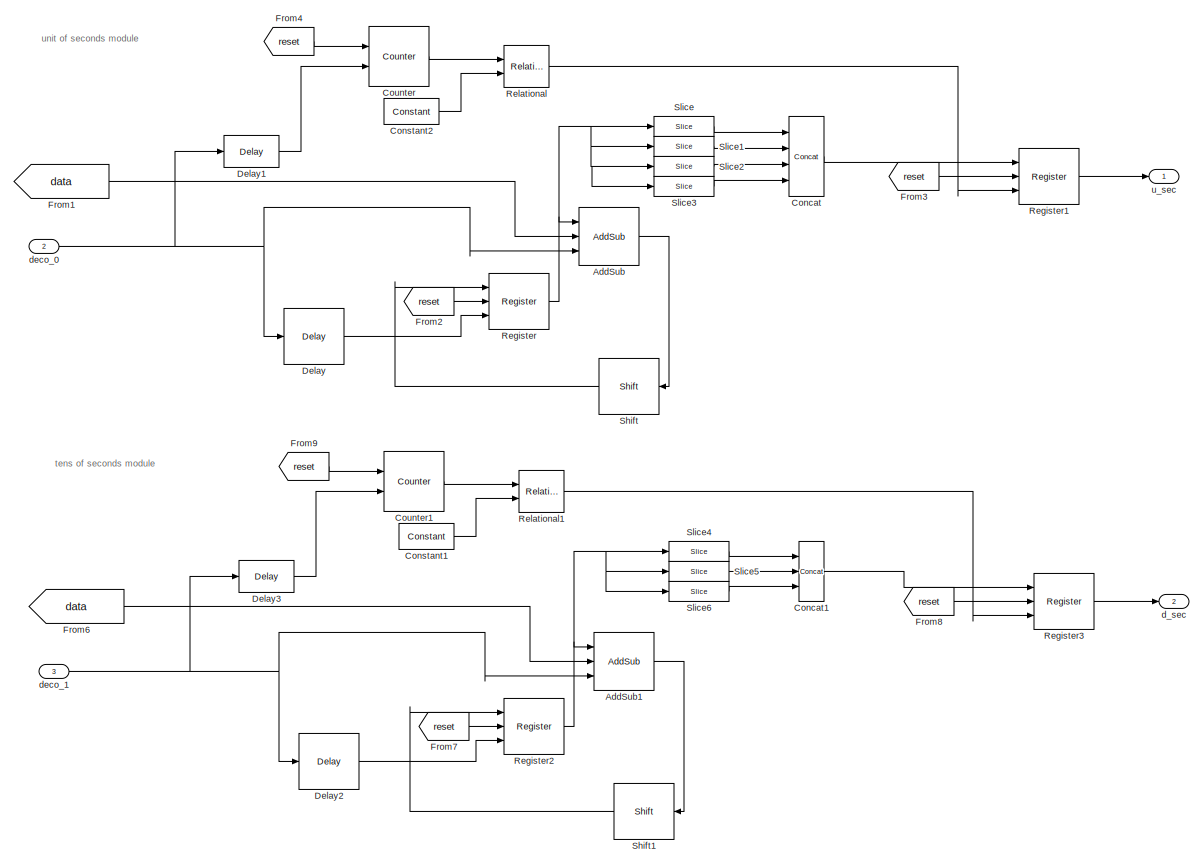
[diagram: Subsystem - part 1/6, top center region]
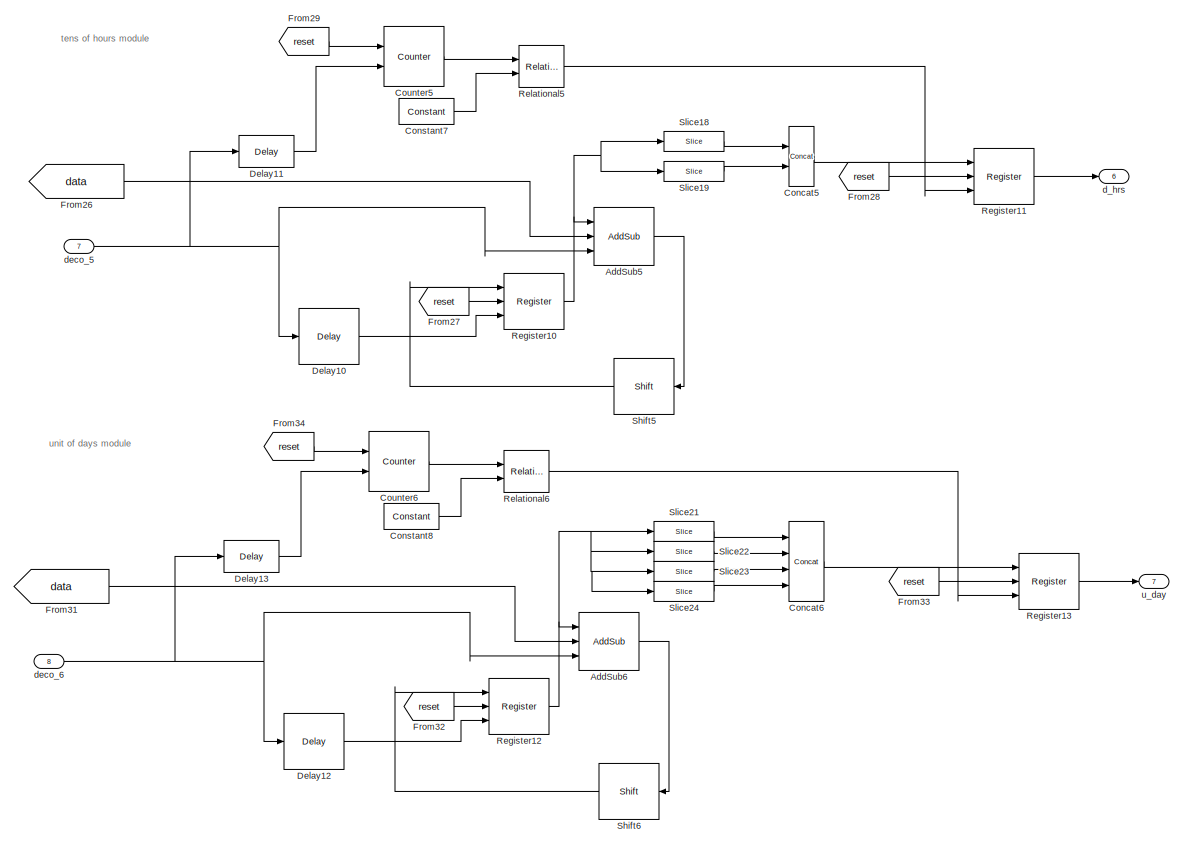
[diagram: Subsystem - part 2/6, top right region]
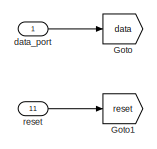
[diagram: Subsystem - part 3/6, top left region]
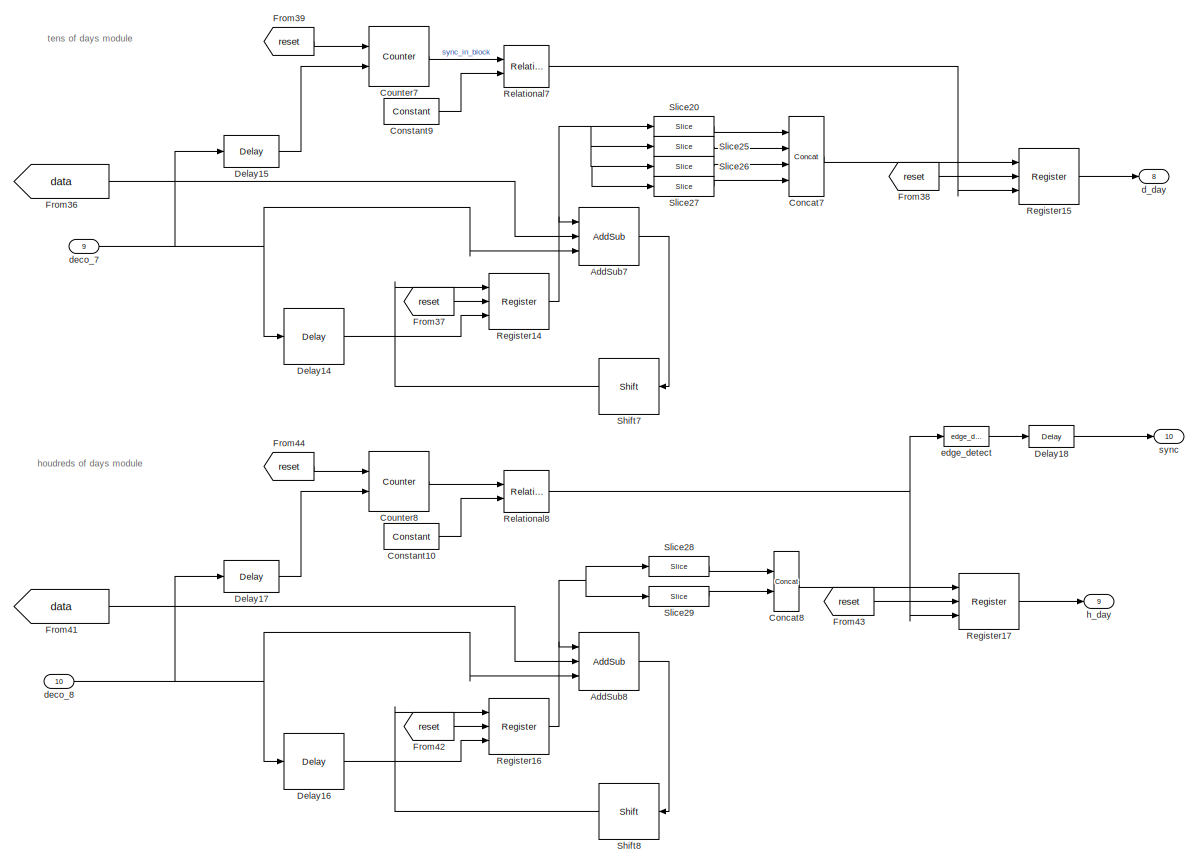
[diagram: Subsystem - part 4/6, middle right region]
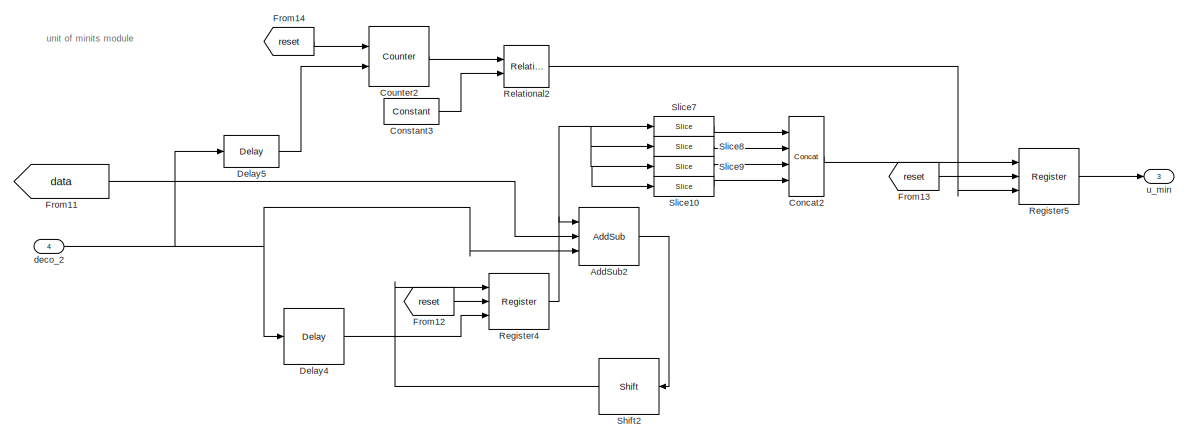
[diagram: Subsystem - part 5/6, central region]
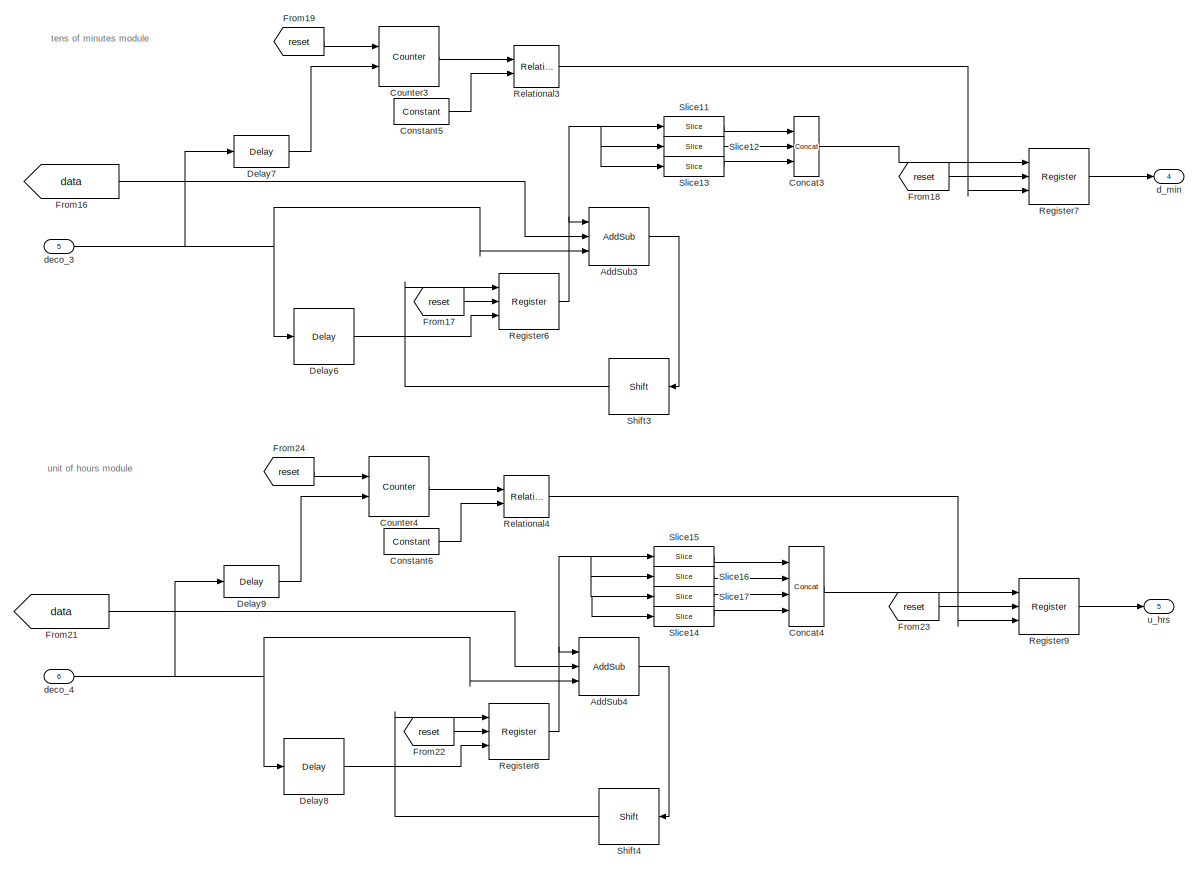
[diagram: Subsystem - part 6/6, bottom center region]
BLOCK [SubSystem] Subsystem
  FunctionWithSeparateData = off
  MaskHideContents = off
  MinAlgLoopOccurrences = off
  Opaque = off
  Ports = [11, 10]
  PropExecContextOutsideSubsystem = off
  RTWSystemCode = Auto
  RequestExecContextInheritance = off
BLOCK [Reference] Subsystem/AddSub  REF=xbsIndex_r4/AddSub
  Ports = [3, 1]
  SourceBlock = xbsIndex_r4/AddSub
  SourceType = Xilinx Adder/Subtracter Block
  arith_type = Unsigned
  bin_pt = 0
  block_type = addsub
  dbl_ovrd = off
  en = on
  has_advanced_control = 0
  hw_selection = Fabric
  latency = 1
  mode = Addition
  n_bits = 5
  overflow = Wrap
  pipelined = off
  precision = User Defined
  quantization = Truncate
  sg_icon_stat = 60,58,3,1,white,blue,0,96ed0f94,right,,[ ],[ ]
  sg_mask_display = fprintf('','COMMENT: begin icon graphics');\npatch([0 60 60 0 0 ],[0 0 58 58 0 ],[0.77 0.82 0.91 ]);\nplot([0 60 60 0 0 ],[0 0 58 58 0 ]);\npatch([12.2 23.76 31.76 39.76 47.76 31.76 20.2 12.2 ],[37.88 37.88 45.88 37.88 45.88 45.88 45.88 37.88 ],[1 1 1 ]);\npatch([20.2 31.76 23.76 12.2 20.2 ],[29.88 29.88 37.88 37.88 29.88 ],[0.931 0.946 0.973 ]);\npatch([12.2 23.76 31.76 20.2 12.2 ],[21.88 21.88 29.88 ...<+563ch>  <repeated x9 — deduplicated; at blocks: AddSub, AddSub1, AddSub2, AddSub3, AddSub4, AddSub5, AddSub6, AddSub7, AddSub8>
  sggui_pos = 53,14,416,343
  use_behavioral_HDL = off
  use_carryin = off
  use_carryout = off
  xl_area = [0,0,0,0,0,0,0]
  xl_use_area = off
BLOCK [Reference] Subsystem/AddSub1  REF=xbsIndex_r4/AddSub
  Ports = [3, 1]
  SourceBlock = xbsIndex_r4/AddSub
  SourceType = Xilinx Adder/Subtracter Block
  arith_type = Unsigned
  bin_pt = 0
  block_type = addsub
  dbl_ovrd = off
  en = on
  has_advanced_control = 0
  hw_selection = Fabric
  latency = 1
  mode = Addition
  n_bits = 4
  overflow = Wrap
  pipelined = off
  precision = User Defined
  quantization = Truncate
  sg_icon_stat = 60,58,3,1,white,blue,0,96ed0f94,right,,[ ],[ ]
  sggui_pos = 53,14,416,343
  use_behavioral_HDL = off
  use_carryin = off
  use_carryout = off
  xl_area = [0,0,0,0,0,0,0]
  xl_use_area = off
BLOCK [Reference] Subsystem/AddSub2  REF=xbsIndex_r4/AddSub
  Ports = [3, 1]
  SourceBlock = xbsIndex_r4/AddSub
  SourceType = Xilinx Adder/Subtracter Block
  arith_type = Unsigned
  bin_pt = 0
  block_type = addsub
  dbl_ovrd = off
  en = on
  has_advanced_control = 0
  hw_selection = Fabric
  latency = 1
  mode = Addition
  n_bits = 5
  overflow = Wrap
  pipelined = off
  precision = User Defined
  quantization = Truncate
  sg_icon_stat = 60,58,3,1,white,blue,0,96ed0f94,right,,[ ],[ ]
  sggui_pos = 53,14,416,343
  use_behavioral_HDL = off
  use_carryin = off
  use_carryout = off
  xl_area = [0,0,0,0,0,0,0]
  xl_use_area = off
BLOCK [Reference] Subsystem/AddSub3  REF=xbsIndex_r4/AddSub
  Ports = [3, 1]
  SourceBlock = xbsIndex_r4/AddSub
  SourceType = Xilinx Adder/Subtracter Block
  arith_type = Unsigned
  bin_pt = 0
  block_type = addsub
  dbl_ovrd = off
  en = on
  has_advanced_control = 0
  hw_selection = Fabric
  latency = 1
  mode = Addition
  n_bits = 4
  overflow = Wrap
  pipelined = off
  precision = User Defined
  quantization = Truncate
  sg_icon_stat = 60,58,3,1,white,blue,0,96ed0f94,right,,[ ],[ ]
  sggui_pos = 53,14,416,343
  use_behavioral_HDL = off
  use_carryin = off
  use_carryout = off
  xl_area = [0,0,0,0,0,0,0]
  xl_use_area = off
BLOCK [Reference] Subsystem/AddSub4  REF=xbsIndex_r4/AddSub
  Ports = [3, 1]
  SourceBlock = xbsIndex_r4/AddSub
  SourceType = Xilinx Adder/Subtracter Block
  arith_type = Unsigned
  bin_pt = 0
  block_type = addsub
  dbl_ovrd = off
  en = on
  has_advanced_control = 0
  hw_selection = Fabric
  latency = 1
  mode = Addition
  n_bits = 5
  overflow = Wrap
  pipelined = off
  precision = User Defined
  quantization = Truncate
  sg_icon_stat = 60,58,3,1,white,blue,0,96ed0f94,right,,[ ],[ ]
  sggui_pos = 53,14,416,343
  use_behavioral_HDL = off
  use_carryin = off
  use_carryout = off
  xl_area = [0,0,0,0,0,0,0]
  xl_use_area = off
BLOCK [Reference] Subsystem/AddSub5  REF=xbsIndex_r4/AddSub
  Ports = [3, 1]
  SourceBlock = xbsIndex_r4/AddSub
  SourceType = Xilinx Adder/Subtracter Block
  arith_type = Unsigned
  bin_pt = 0
  block_type = addsub
  dbl_ovrd = off
  en = on
  has_advanced_control = 0
  hw_selection = Fabric
  latency = 1
  mode = Addition
  n_bits = 3
  overflow = Wrap
  pipelined = off
  precision = User Defined
  quantization = Truncate
  sg_icon_stat = 60,58,3,1,white,blue,0,96ed0f94,right,,[ ],[ ]
  sggui_pos = 53,14,416,343
  use_behavioral_HDL = off
  use_carryin = off
  use_carryout = off
  xl_area = [0,0,0,0,0,0,0]
  xl_use_area = off
BLOCK [Reference] Subsystem/AddSub6  REF=xbsIndex_r4/AddSub
  Ports = [3, 1]
  SourceBlock = xbsIndex_r4/AddSub
  SourceType = Xilinx Adder/Subtracter Block
  arith_type = Unsigned
  bin_pt = 0
  block_type = addsub
  dbl_ovrd = off
  en = on
  has_advanced_control = 0
  hw_selection = Fabric
  latency = 1
  mode = Addition
  n_bits = 5
  overflow = Wrap
  pipelined = off
  precision = User Defined
  quantization = Truncate
  sg_icon_stat = 60,58,3,1,white,blue,0,96ed0f94,right,,[ ],[ ]
  sggui_pos = 53,14,416,343
  use_behavioral_HDL = off
  use_carryin = off
  use_carryout = off
  xl_area = [0,0,0,0,0,0,0]
  xl_use_area = off
BLOCK [Reference] Subsystem/AddSub7  REF=xbsIndex_r4/AddSub
  Ports = [3, 1]
  SourceBlock = xbsIndex_r4/AddSub
  SourceType = Xilinx Adder/Subtracter Block
  arith_type = Unsigned
  bin_pt = 0
  block_type = addsub
  dbl_ovrd = off
  en = on
  has_advanced_control = 0
  hw_selection = Fabric
  latency = 1
  mode = Addition
  n_bits = 5
  overflow = Wrap
  pipelined = off
  precision = User Defined
  quantization = Truncate
  sg_icon_stat = 60,58,3,1,white,blue,0,96ed0f94,right,,[ ],[ ]
  sggui_pos = 53,14,416,343
  use_behavioral_HDL = off
  use_carryin = off
  use_carryout = off
  xl_area = [0,0,0,0,0,0,0]
  xl_use_area = off
BLOCK [Reference] Subsystem/AddSub8  REF=xbsIndex_r4/AddSub
  Ports = [3, 1]
  SourceBlock = xbsIndex_r4/AddSub
  SourceType = Xilinx Adder/Subtracter Block
  arith_type = Unsigned
  bin_pt = 0
  block_type = addsub
  dbl_ovrd = off
  en = on
  has_advanced_control = 0
  hw_selection = Fabric
  latency = 1
  mode = Addition
  n_bits = 3
  overflow = Wrap
  pipelined = off
  precision = User Defined
  quantization = Truncate
  sg_icon_stat = 60,58,3,1,white,blue,0,96ed0f94,right,,[ ],[ ]
  sggui_pos = 53,14,416,343
  use_behavioral_HDL = off
  use_carryin = off
  use_carryout = off
  xl_area = [0,0,0,0,0,0,0]
  xl_use_area = off
BLOCK [Reference] Subsystem/Concat  REF=xbsIndex_r4/Concat
  Ports = [4, 1]
  SourceBlock = xbsIndex_r4/Concat
  SourceType = Xilinx Bus Concatenator Block
  block_type = concat
  dbl_ovrd = off
  has_advanced_control = 0
  infoedit = Concatenates two or more inputs.  Output will be cast to an unsigned value with the binary point at zero.
  num_inputs = 4
  sg_icon_stat = 35,80,4,1,white,blue,0,47d3d416,right,,[ ],[ ]
  sg_mask_display = fprintf('','COMMENT: begin icon graphics');\npatch([0 35 35 0 0 ],[0 0 80 80 0 ],[0.77 0.82 0.91 ]);\nplot([0 35 35 0 0 ],[0 0 80 80 0 ]);\npatch([5.875 13.1 18.1 23.1 28.1 18.1 10.875 5.875 ],[45.55 45.55 50.55 45.55 50.55 50.55 50.55 45.55 ],[1 1 1 ]);\npatch([10.875 18.1 13.1 5.875 10.875 ],[40.55 40.55 45.55 45.55 40.55 ],[0.931 0.946 0.973 ]);\npatch([5.875 13.1 18.1 10.875 5.875 ],[35.55 35.55 40...<+409ch>  <repeated x5 — deduplicated; at blocks: Concat, Concat2, Concat4, Concat6, Concat7>
  sggui_pos = 53,14,328,208
BLOCK [Reference] Subsystem/Concat1  REF=xbsIndex_r4/Concat
  Ports = [3, 1]
  SourceBlock = xbsIndex_r4/Concat
  SourceType = Xilinx Bus Concatenator Block
  block_type = concat
  dbl_ovrd = off
  has_advanced_control = 0
  infoedit = Concatenates two or more inputs.  Output will be cast to an unsigned value with the binary point at zero.
  num_inputs = 3
  sg_icon_stat = 25,60,3,1,white,blue,0,61ef8218,right,,[ ],[ ]
  sg_mask_display = fprintf('','COMMENT: begin icon graphics');\npatch([0 25 25 0 0 ],[0 0 60 60 0 ],[0.77 0.82 0.91 ]);\nplot([0 25 25 0 0 ],[0 0 60 60 0 ]);\npatch([5.325 9.66 12.66 15.66 18.66 12.66 8.325 5.325 ],[33.33 33.33 36.33 33.33 36.33 36.33 36.33 33.33 ],[1 1 1 ]);\npatch([8.325 12.66 9.66 5.325 8.325 ],[30.33 30.33 33.33 33.33 30.33 ],[0.931 0.946 0.973 ]);\npatch([5.325 9.66 12.66 8.325 5.325 ],[27.33 27.33 ...<+411ch>
  sggui_pos = 53,14,328,208
BLOCK [Reference] Subsystem/Concat2  REF=xbsIndex_r4/Concat
  Ports = [4, 1]
  SourceBlock = xbsIndex_r4/Concat
  SourceType = Xilinx Bus Concatenator Block
  block_type = concat
  dbl_ovrd = off
  has_advanced_control = 0
  infoedit = Concatenates two or more inputs.  Output will be cast to an unsigned value with the binary point at zero.
  num_inputs = 4
  sg_icon_stat = 35,80,4,1,white,blue,0,47d3d416,right,,[ ],[ ]
  sggui_pos = 53,14,328,208
BLOCK [Reference] Subsystem/Concat3  REF=xbsIndex_r4/Concat
  Ports = [3, 1]
  SourceBlock = xbsIndex_r4/Concat
  SourceType = Xilinx Bus Concatenator Block
  block_type = concat
  dbl_ovrd = off
  has_advanced_control = 0
  infoedit = Concatenates two or more inputs.  Output will be cast to an unsigned value with the binary point at zero.
  num_inputs = 3
  sg_icon_stat = 25,60,3,1,white,blue,0,61ef8218,right,,[ ],[ ]
  sg_mask_display = fprintf('','COMMENT: begin icon graphics');\npatch([0 25 25 0 0 ],[0 0 60 60 0 ],[0.77 0.82 0.91 ]);\nplot([0 25 25 0 0 ],[0 0 60 60 0 ]);\npatch([5.325 9.66 12.66 15.66 18.66 12.66 8.325 5.325 ],[33.33 33.33 36.33 33.33 36.33 36.33 36.33 33.33 ],[1 1 1 ]);\npatch([8.325 12.66 9.66 5.325 8.325 ],[30.33 30.33 33.33 33.33 30.33 ],[0.931 0.946 0.973 ]);\npatch([5.325 9.66 12.66 8.325 5.325 ],[27.33 27.33 ...<+411ch>
  sggui_pos = 53,14,328,208
BLOCK [Reference] Subsystem/Concat4  REF=xbsIndex_r4/Concat
  Ports = [4, 1]
  SourceBlock = xbsIndex_r4/Concat
  SourceType = Xilinx Bus Concatenator Block
  block_type = concat
  dbl_ovrd = off
  has_advanced_control = 0
  infoedit = Concatenates two or more inputs.  Output will be cast to an unsigned value with the binary point at zero.
  num_inputs = 4
  sg_icon_stat = 35,80,4,1,white,blue,0,47d3d416,right,,[ ],[ ]
  sggui_pos = 53,14,328,208
BLOCK [Reference] Subsystem/Concat5  REF=xbsIndex_r4/Concat
  Ports = [2, 1]
  SourceBlock = xbsIndex_r4/Concat
  SourceType = Xilinx Bus Concatenator Block
  block_type = concat
  dbl_ovrd = off
  has_advanced_control = 0
  infoedit = Concatenates two or more inputs.  Output will be cast to an unsigned value with the binary point at zero.
  num_inputs = 2
  sg_icon_stat = 25,60,2,1,white,blue,0,16398980,right,,[ ],[ ]
  sg_mask_display = fprintf('','COMMENT: begin icon graphics');\npatch([0 25 25 0 0 ],[0 0 60 60 0 ],[0.77 0.82 0.91 ]);\nplot([0 25 25 0 0 ],[0 0 60 60 0 ]);\npatch([5.325 9.66 12.66 15.66 18.66 12.66 8.325 5.325 ],[33.33 33.33 36.33 33.33 36.33 36.33 36.33 33.33 ],[1 1 1 ]);\npatch([8.325 12.66 9.66 5.325 8.325 ],[30.33 30.33 33.33 33.33 30.33 ],[0.931 0.946 0.973 ]);\npatch([5.325 9.66 12.66 8.325 5.325 ],[27.33 27.33 ...<+410ch>
  sggui_pos = 53,14,328,208
BLOCK [Reference] Subsystem/Concat6  REF=xbsIndex_r4/Concat
  Ports = [4, 1]
  SourceBlock = xbsIndex_r4/Concat
  SourceType = Xilinx Bus Concatenator Block
  block_type = concat
  dbl_ovrd = off
  has_advanced_control = 0
  infoedit = Concatenates two or more inputs.  Output will be cast to an unsigned value with the binary point at zero.
  num_inputs = 4
  sg_icon_stat = 35,80,4,1,white,blue,0,47d3d416,right,,[ ],[ ]
  sggui_pos = 53,14,328,208
BLOCK [Reference] Subsystem/Concat7  REF=xbsIndex_r4/Concat
  Ports = [4, 1]
  SourceBlock = xbsIndex_r4/Concat
  SourceType = Xilinx Bus Concatenator Block
  block_type = concat
  dbl_ovrd = off
  has_advanced_control = 0
  infoedit = Concatenates two or more inputs.  Output will be cast to an unsigned value with the binary point at zero.
  num_inputs = 4
  sg_icon_stat = 35,80,4,1,white,blue,0,47d3d416,right,,[ ],[ ]
  sggui_pos = 53,14,328,208
BLOCK [Reference] Subsystem/Concat8  REF=xbsIndex_r4/Concat
  Ports = [2, 1]
  SourceBlock = xbsIndex_r4/Concat
  SourceType = Xilinx Bus Concatenator Block
  block_type = concat
  dbl_ovrd = off
  has_advanced_control = 0
  infoedit = Concatenates two or more inputs.  Output will be cast to an unsigned value with the binary point at zero.
  num_inputs = 2
  sg_icon_stat = 25,60,2,1,white,blue,0,16398980,right,,[ ],[ ]
  sg_mask_display = fprintf('','COMMENT: begin icon graphics');\npatch([0 25 25 0 0 ],[0 0 60 60 0 ],[0.77 0.82 0.91 ]);\nplot([0 25 25 0 0 ],[0 0 60 60 0 ]);\npatch([5.325 9.66 12.66 15.66 18.66 12.66 8.325 5.325 ],[33.33 33.33 36.33 33.33 36.33 36.33 36.33 33.33 ],[1 1 1 ]);\npatch([8.325 12.66 9.66 5.325 8.325 ],[30.33 30.33 33.33 33.33 30.33 ],[0.931 0.946 0.973 ]);\npatch([5.325 9.66 12.66 8.325 5.325 ],[27.33 27.33 ...<+410ch>
  sggui_pos = 53,14,328,208
BLOCK [Reference] Subsystem/Constant1  REF=xbsIndex_r4/Constant
  Ports = [0, 1]
  SourceBlock = xbsIndex_r4/Constant
  SourceType = Xilinx Constant Block Block
  arith_type = Unsigned
  bin_pt = 0
  block_type = constant
  carry = CIN
  const = 3
  dbl_ovrd = off
  dsp48_infoedit = The use of this block for DSP48 instructions is deprecated.  Please use the Opmode block.
  equ = P=C
  exp_width = 8
  explicit_period = on
  frac_width = 24
  gui_display_data_type = Fixed-point
  has_advanced_control = 0
  inp1 = P
  inp2 = PCIN>>17
  n_bits = 4
  opr = +
  opselect = C
  period = 1
  preci_type = Single
  sg_icon_stat = 55,26,0,1,white,blue,0,279a71c8,right,,[ ],[ ]
  sggui_pos = 53,14,337,463
BLOCK [Reference] Subsystem/Constant10  REF=xbsIndex_r4/Constant
  Ports = [0, 1]
  SourceBlock = xbsIndex_r4/Constant
  SourceType = Xilinx Constant Block Block
  arith_type = Unsigned
  bin_pt = 0
  block_type = constant
  carry = CIN
  const = 2
  dbl_ovrd = off
  dsp48_infoedit = The use of this block for DSP48 instructions is deprecated.  Please use the Opmode block.
  equ = P=C
  exp_width = 8
  explicit_period = on
  frac_width = 24
  gui_display_data_type = Fixed-point
  has_advanced_control = 0
  inp1 = P
  inp2 = PCIN>>17
  n_bits = 3
  opr = +
  opselect = C
  period = 1
  preci_type = Single
  sg_icon_stat = 55,26,0,1,white,blue,0,fca86624,right,,[ ],[ ]
  sggui_pos = 53,14,337,463
BLOCK [Reference] Subsystem/Constant2  REF=xbsIndex_r4/Constant
  Ports = [0, 1]
  SourceBlock = xbsIndex_r4/Constant
  SourceType = Xilinx Constant Block Block
  arith_type = Unsigned
  bin_pt = 0
  block_type = constant
  carry = CIN
  const = 4
  dbl_ovrd = off
  dsp48_infoedit = The use of this block for DSP48 instructions is deprecated.  Please use the Opmode block.
  equ = P=C
  exp_width = 8
  explicit_period = on
  frac_width = 24
  gui_display_data_type = Fixed-point
  has_advanced_control = 0
  inp1 = P
  inp2 = PCIN>>17
  n_bits = 4
  opr = +
  opselect = C
  period = 1
  preci_type = Single
  sg_icon_stat = 55,26,0,1,white,blue,0,85f36853,right,,[ ],[ ]
  sggui_pos = 53,14,337,463
BLOCK [Reference] Subsystem/Constant3  REF=xbsIndex_r4/Constant
  Ports = [0, 1]
  SourceBlock = xbsIndex_r4/Constant
  SourceType = Xilinx Constant Block Block
  arith_type = Unsigned
  bin_pt = 0
  block_type = constant
  carry = CIN
  const = 4
  dbl_ovrd = off
  dsp48_infoedit = The use of this block for DSP48 instructions is deprecated.  Please use the Opmode block.
  equ = P=C
  exp_width = 8
  explicit_period = on
  frac_width = 24
  gui_display_data_type = Fixed-point
  has_advanced_control = 0
  inp1 = P
  inp2 = PCIN>>17
  n_bits = 4
  opr = +
  opselect = C
  period = 1
  preci_type = Single
  sg_icon_stat = 55,26,0,1,white,blue,0,85f36853,right,,[ ],[ ]
  sggui_pos = 53,14,337,463
BLOCK [Reference] Subsystem/Constant5  REF=xbsIndex_r4/Constant
  Ports = [0, 1]
  SourceBlock = xbsIndex_r4/Constant
  SourceType = Xilinx Constant Block Block
  arith_type = Unsigned
  bin_pt = 0
  block_type = constant
  carry = CIN
  const = 3
  dbl_ovrd = off
  dsp48_infoedit = The use of this block for DSP48 instructions is deprecated.  Please use the Opmode block.
  equ = P=C
  exp_width = 8
  explicit_period = on
  frac_width = 24
  gui_display_data_type = Fixed-point
  has_advanced_control = 0
  inp1 = P
  inp2 = PCIN>>17
  n_bits = 4
  opr = +
  opselect = C
  period = 1
  preci_type = Single
  sg_icon_stat = 55,26,0,1,white,blue,0,279a71c8,right,,[ ],[ ]
  sggui_pos = 53,14,337,463
BLOCK [Reference] Subsystem/Constant6  REF=xbsIndex_r4/Constant
  Ports = [0, 1]
  SourceBlock = xbsIndex_r4/Constant
  SourceType = Xilinx Constant Block Block
  arith_type = Unsigned
  bin_pt = 0
  block_type = constant
  carry = CIN
  const = 4
  dbl_ovrd = off
  dsp48_infoedit = The use of this block for DSP48 instructions is deprecated.  Please use the Opmode block.
  equ = P=C
  exp_width = 8
  explicit_period = on
  frac_width = 24
  gui_display_data_type = Fixed-point
  has_advanced_control = 0
  inp1 = P
  inp2 = PCIN>>17
  n_bits = 4
  opr = +
  opselect = C
  period = 1
  preci_type = Single
  sg_icon_stat = 55,26,0,1,white,blue,0,85f36853,right,,[ ],[ ]
  sggui_pos = 53,14,337,463
BLOCK [Reference] Subsystem/Constant7  REF=xbsIndex_r4/Constant
  Ports = [0, 1]
  SourceBlock = xbsIndex_r4/Constant
  SourceType = Xilinx Constant Block Block
  arith_type = Unsigned
  bin_pt = 0
  block_type = constant
  carry = CIN
  const = 2
  dbl_ovrd = off
  dsp48_infoedit = The use of this block for DSP48 instructions is deprecated.  Please use the Opmode block.
  equ = P=C
  exp_width = 8
  explicit_period = on
  frac_width = 24
  gui_display_data_type = Fixed-point
  has_advanced_control = 0
  inp1 = P
  inp2 = PCIN>>17
  n_bits = 3
  opr = +
  opselect = C
  period = 1
  preci_type = Single
  sg_icon_stat = 55,26,0,1,white,blue,0,fca86624,right,,[ ],[ ]
  sggui_pos = 53,14,337,463
BLOCK [Reference] Subsystem/Constant8  REF=xbsIndex_r4/Constant
  Ports = [0, 1]
  SourceBlock = xbsIndex_r4/Constant
  SourceType = Xilinx Constant Block Block
  arith_type = Unsigned
  bin_pt = 0
  block_type = constant
  carry = CIN
  const = 4
  dbl_ovrd = off
  dsp48_infoedit = The use of this block for DSP48 instructions is deprecated.  Please use the Opmode block.
  equ = P=C
  exp_width = 8
  explicit_period = on
  frac_width = 24
  gui_display_data_type = Fixed-point
  has_advanced_control = 0
  inp1 = P
  inp2 = PCIN>>17
  n_bits = 4
  opr = +
  opselect = C
  period = 1
  preci_type = Single
  sg_icon_stat = 55,26,0,1,white,blue,0,85f36853,right,,[ ],[ ]
  sggui_pos = 53,14,337,463
BLOCK [Reference] Subsystem/Constant9  REF=xbsIndex_r4/Constant
  Ports = [0, 1]
  SourceBlock = xbsIndex_r4/Constant
  SourceType = Xilinx Constant Block Block
  arith_type = Unsigned
  bin_pt = 0
  block_type = constant
  carry = CIN
  const = 4
  dbl_ovrd = off
  dsp48_infoedit = The use of this block for DSP48 instructions is deprecated.  Please use the Opmode block.
  equ = P=C
  exp_width = 8
  explicit_period = on
  frac_width = 24
  gui_display_data_type = Fixed-point
  has_advanced_control = 0
  inp1 = P
  inp2 = PCIN>>17
  n_bits = 4
  opr = +
  opselect = C
  period = 1
  preci_type = Single
  sg_icon_stat = 55,26,0,1,white,blue,0,85f36853,right,,[ ],[ ]
  sggui_pos = 53,14,337,463
BLOCK [Reference] Subsystem/Counter  REF=xbsIndex_r4/Counter
  Ports = [2, 1]
  SourceBlock = xbsIndex_r4/Counter
  SourceType = Xilinx Counter Block
  arith_type = Unsigned
  bin_pt = 0
  block_type = counter
  cnt_by_val = 1
  cnt_to = Inf
  cnt_type = Free Running
  dbl_ovrd = off
  en = on
  explicit_period = on
  has_advanced_control = 0
  implementation = Fabric
  infoedit = Hardware notes: Free running counters are the least expensive in hardware.  A count limited counter is implemented by combining a counter with a comparator.
  load_pin = off
  n_bits = 4
  operation = Up
  period = 1
  rst = on
  sg_icon_stat = 60,60,2,1,white,blue,0,ae3608d6,right,,[ ],[ ]
  sggui_pos = 53,14,416,716
  start_count = 0
  use_behavioral_HDL = off
  xl_area = [0,0,0,0,0,0,0]
  xl_use_area = off
BLOCK [Reference] Subsystem/Counter1  REF=xbsIndex_r4/Counter
  Ports = [2, 1]
  SourceBlock = xbsIndex_r4/Counter
  SourceType = Xilinx Counter Block
  arith_type = Unsigned
  bin_pt = 0
  block_type = counter
  cnt_by_val = 1
  cnt_to = Inf
  cnt_type = Free Running
  dbl_ovrd = off
  en = on
  explicit_period = on
  has_advanced_control = 0
  implementation = Fabric
  infoedit = Hardware notes: Free running counters are the least expensive in hardware.  A count limited counter is implemented by combining a counter with a comparator.
  load_pin = off
  n_bits = 4
  operation = Up
  period = 1
  rst = on
  sg_icon_stat = 60,60,2,1,white,blue,0,ae3608d6,right,,[ ],[ ]
  sggui_pos = 53,14,416,716
  start_count = 0
  use_behavioral_HDL = off
  xl_area = [0,0,0,0,0,0,0]
  xl_use_area = off
BLOCK [Reference] Subsystem/Counter2  REF=xbsIndex_r4/Counter
  Ports = [2, 1]
  SourceBlock = xbsIndex_r4/Counter
  SourceType = Xilinx Counter Block
  arith_type = Unsigned
  bin_pt = 0
  block_type = counter
  cnt_by_val = 1
  cnt_to = Inf
  cnt_type = Free Running
  dbl_ovrd = off
  en = on
  explicit_period = on
  has_advanced_control = 0
  implementation = Fabric
  infoedit = Hardware notes: Free running counters are the least expensive in hardware.  A count limited counter is implemented by combining a counter with a comparator.
  load_pin = off
  n_bits = 4
  operation = Up
  period = 1
  rst = on
  sg_icon_stat = 60,60,2,1,white,blue,0,ae3608d6,right,,[ ],[ ]
  sggui_pos = 53,14,416,716
  start_count = 0
  use_behavioral_HDL = off
  xl_area = [0,0,0,0,0,0,0]
  xl_use_area = off
BLOCK [Reference] Subsystem/Counter3  REF=xbsIndex_r4/Counter
  Ports = [2, 1]
  SourceBlock = xbsIndex_r4/Counter
  SourceType = Xilinx Counter Block
  arith_type = Unsigned
  bin_pt = 0
  block_type = counter
  cnt_by_val = 1
  cnt_to = Inf
  cnt_type = Free Running
  dbl_ovrd = off
  en = on
  explicit_period = on
  has_advanced_control = 0
  implementation = Fabric
  infoedit = Hardware notes: Free running counters are the least expensive in hardware.  A count limited counter is implemented by combining a counter with a comparator.
  load_pin = off
  n_bits = 4
  operation = Up
  period = 1
  rst = on
  sg_icon_stat = 60,60,2,1,white,blue,0,ae3608d6,right,,[ ],[ ]
  sggui_pos = 53,14,416,716
  start_count = 0
  use_behavioral_HDL = off
  xl_area = [0,0,0,0,0,0,0]
  xl_use_area = off
BLOCK [Reference] Subsystem/Counter4  REF=xbsIndex_r4/Counter
  Ports = [2, 1]
  SourceBlock = xbsIndex_r4/Counter
  SourceType = Xilinx Counter Block
  arith_type = Unsigned
  bin_pt = 0
  block_type = counter
  cnt_by_val = 1
  cnt_to = Inf
  cnt_type = Free Running
  dbl_ovrd = off
  en = on
  explicit_period = on
  has_advanced_control = 0
  implementation = Fabric
  infoedit = Hardware notes: Free running counters are the least expensive in hardware.  A count limited counter is implemented by combining a counter with a comparator.
  load_pin = off
  n_bits = 4
  operation = Up
  period = 1
  rst = on
  sg_icon_stat = 60,60,2,1,white,blue,0,ae3608d6,right,,[ ],[ ]
  sggui_pos = 53,14,416,716
  start_count = 0
  use_behavioral_HDL = off
  xl_area = [0,0,0,0,0,0,0]
  xl_use_area = off
BLOCK [Reference] Subsystem/Counter5  REF=xbsIndex_r4/Counter
  Ports = [2, 1]
  SourceBlock = xbsIndex_r4/Counter
  SourceType = Xilinx Counter Block
  arith_type = Unsigned
  bin_pt = 0
  block_type = counter
  cnt_by_val = 1
  cnt_to = Inf
  cnt_type = Free Running
  dbl_ovrd = off
  en = on
  explicit_period = on
  has_advanced_control = 0
  implementation = Fabric
  infoedit = Hardware notes: Free running counters are the least expensive in hardware.  A count limited counter is implemented by combining a counter with a comparator.
  load_pin = off
  n_bits = 4
  operation = Up
  period = 1
  rst = on
  sg_icon_stat = 60,60,2,1,white,blue,0,ae3608d6,right,,[ ],[ ]
  sggui_pos = 53,14,416,716
  start_count = 0
  use_behavioral_HDL = off
  xl_area = [0,0,0,0,0,0,0]
  xl_use_area = off
BLOCK [Reference] Subsystem/Counter6  REF=xbsIndex_r4/Counter
  Ports = [2, 1]
  SourceBlock = xbsIndex_r4/Counter
  SourceType = Xilinx Counter Block
  arith_type = Unsigned
  bin_pt = 0
  block_type = counter
  cnt_by_val = 1
  cnt_to = Inf
  cnt_type = Free Running
  dbl_ovrd = off
  en = on
  explicit_period = on
  has_advanced_control = 0
  implementation = Fabric
  infoedit = Hardware notes: Free running counters are the least expensive in hardware.  A count limited counter is implemented by combining a counter with a comparator.
  load_pin = off
  n_bits = 4
  operation = Up
  period = 1
  rst = on
  sg_icon_stat = 60,60,2,1,white,blue,0,ae3608d6,right,,[ ],[ ]
  sggui_pos = 53,14,416,716
  start_count = 0
  use_behavioral_HDL = off
  xl_area = [0,0,0,0,0,0,0]
  xl_use_area = off
BLOCK [Reference] Subsystem/Counter7  REF=xbsIndex_r4/Counter
  Ports = [2, 1]
  SourceBlock = xbsIndex_r4/Counter
  SourceType = Xilinx Counter Block
  arith_type = Unsigned
  bin_pt = 0
  block_type = counter
  cnt_by_val = 1
  cnt_to = Inf
  cnt_type = Free Running
  dbl_ovrd = off
  en = on
  explicit_period = on
  has_advanced_control = 0
  implementation = Fabric
  infoedit = Hardware notes: Free running counters are the least expensive in hardware.  A count limited counter is implemented by combining a counter with a comparator.
  load_pin = off
  n_bits = 4
  operation = Up
  period = 1
  rst = on
  sg_icon_stat = 60,60,2,1,white,blue,0,ae3608d6,right,,[ ],[ ]
  sggui_pos = 53,14,416,716
  start_count = 0
  use_behavioral_HDL = off
  xl_area = [0,0,0,0,0,0,0]
  xl_use_area = off
BLOCK [Reference] Subsystem/Counter8  REF=xbsIndex_r4/Counter
  Ports = [2, 1]
  SourceBlock = xbsIndex_r4/Counter
  SourceType = Xilinx Counter Block
  arith_type = Unsigned
  bin_pt = 0
  block_type = counter
  cnt_by_val = 1
  cnt_to = Inf
  cnt_type = Free Running
  dbl_ovrd = off
  en = on
  explicit_period = on
  has_advanced_control = 0
  implementation = Fabric
  infoedit = Hardware notes: Free running counters are the least expensive in hardware.  A count limited counter is implemented by combining a counter with a comparator.
  load_pin = off
  n_bits = 4
  operation = Up
  period = 1
  rst = on
  sg_icon_stat = 60,60,2,1,white,blue,0,ae3608d6,right,,[ ],[ ]
  sggui_pos = 53,14,416,716
  start_count = 0
  use_behavioral_HDL = off
  xl_area = [0,0,0,0,0,0,0]
  xl_use_area = off
BLOCK [Reference] Subsystem/Delay  REF=xbsIndex_r4/Delay
  Ports = [1, 1]
  SourceBlock = xbsIndex_r4/Delay
  SourceType = Xilinx Delay Block
  block_type = delay
  dbl_ovrd = off
  en = off
  has_advanced_control = 0
  infoedit = Hardware notes: A delay line is a chain, each link of which is an SRL16 followed by a flip-flop.
  infoeditControl = Selection of Reset will increase slice count due to use of real FFs and instead of SRLs
  latency = 1
  reg_retiming = off
  rst = off
  sg_icon_stat = 60,56,1,1,white,blue,0,07b98262,right,,[ ],[ ]
  sggui_pos = 73,34,416,361
  xl_area = [0,0,0,0,0,0,0]
  xl_use_area = off
BLOCK [Reference] Subsystem/Delay1  REF=xbsIndex_r4/Delay
  Ports = [1, 1]
  SourceBlock = xbsIndex_r4/Delay
  SourceType = Xilinx Delay Block
  block_type = delay
  dbl_ovrd = off
  en = off
  has_advanced_control = 0
  infoedit = Hardware notes: A delay line is a chain, each link of which is an SRL16 followed by a flip-flop.
  infoeditControl = Selection of Reset will increase slice count due to use of real FFs and instead of SRLs
  latency = 1
  reg_retiming = off
  rst = off
  sg_icon_stat = 55,32,1,1,white,blue,0,07b98262,right,,[ ],[ ]
  sg_mask_display = fprintf('','COMMENT: begin icon graphics');\npatch([0 55 55 0 0 ],[0 0 32 32 0 ],[0.77 0.82 0.91 ]);\nplot([0 55 55 0 0 ],[0 0 32 32 0 ]);\npatch([18.1 23.88 27.88 31.88 35.88 27.88 22.1 18.1 ],[20.44 20.44 24.44 20.44 24.44 24.44 24.44 20.44 ],[1 1 1 ]);\npatch([22.1 27.88 23.88 18.1 22.1 ],[16.44 16.44 20.44 20.44 16.44 ],[0.931 0.946 0.973 ]);\npatch([18.1 23.88 27.88 22.1 18.1 ],[12.44 12.44 16.44 ...<+304ch>  <repeated x9 — deduplicated; at blocks: Delay1, Delay11, Delay13, Delay15, Delay17, Delay3, Delay5, Delay7, Delay9>
  sggui_pos = 73,34,416,361
  xl_area = [0,0,0,0,0,0,0]
  xl_use_area = off
BLOCK [Reference] Subsystem/Delay10  REF=xbsIndex_r4/Delay
  Ports = [1, 1]
  SourceBlock = xbsIndex_r4/Delay
  SourceType = Xilinx Delay Block
  block_type = delay
  dbl_ovrd = off
  en = off
  has_advanced_control = 0
  infoedit = Hardware notes: A delay line is a chain, each link of which is an SRL16 followed by a flip-flop.
  infoeditControl = Selection of Reset will increase slice count due to use of real FFs and instead of SRLs
  latency = 1
  reg_retiming = off
  rst = off
  sg_icon_stat = 60,56,1,1,white,blue,0,07b98262,right,,[ ],[ ]
  sggui_pos = 73,34,416,361
  xl_area = [0,0,0,0,0,0,0]
  xl_use_area = off
BLOCK [Reference] Subsystem/Delay11  REF=xbsIndex_r4/Delay
  Ports = [1, 1]
  SourceBlock = xbsIndex_r4/Delay
  SourceType = Xilinx Delay Block
  block_type = delay
  dbl_ovrd = off
  en = off
  has_advanced_control = 0
  infoedit = Hardware notes: A delay line is a chain, each link of which is an SRL16 followed by a flip-flop.
  infoeditControl = Selection of Reset will increase slice count due to use of real FFs and instead of SRLs
  latency = 1
  reg_retiming = off
  rst = off
  sg_icon_stat = 55,32,1,1,white,blue,0,07b98262,right,,[ ],[ ]
  sggui_pos = 73,34,416,361
  xl_area = [0,0,0,0,0,0,0]
  xl_use_area = off
BLOCK [Reference] Subsystem/Delay12  REF=xbsIndex_r4/Delay
  Ports = [1, 1]
  SourceBlock = xbsIndex_r4/Delay
  SourceType = Xilinx Delay Block
  block_type = delay
  dbl_ovrd = off
  en = off
  has_advanced_control = 0
  infoedit = Hardware notes: A delay line is a chain, each link of which is an SRL16 followed by a flip-flop.
  infoeditControl = Selection of Reset will increase slice count due to use of real FFs and instead of SRLs
  latency = 1
  reg_retiming = off
  rst = off
  sg_icon_stat = 60,56,1,1,white,blue,0,07b98262,right,,[ ],[ ]
  sggui_pos = 73,34,416,361
  xl_area = [0,0,0,0,0,0,0]
  xl_use_area = off
BLOCK [Reference] Subsystem/Delay13  REF=xbsIndex_r4/Delay
  Ports = [1, 1]
  SourceBlock = xbsIndex_r4/Delay
  SourceType = Xilinx Delay Block
  block_type = delay
  dbl_ovrd = off
  en = off
  has_advanced_control = 0
  infoedit = Hardware notes: A delay line is a chain, each link of which is an SRL16 followed by a flip-flop.
  infoeditControl = Selection of Reset will increase slice count due to use of real FFs and instead of SRLs
  latency = 1
  reg_retiming = off
  rst = off
  sg_icon_stat = 55,32,1,1,white,blue,0,07b98262,right,,[ ],[ ]
  sggui_pos = 73,34,416,361
  xl_area = [0,0,0,0,0,0,0]
  xl_use_area = off
BLOCK [Reference] Subsystem/Delay14  REF=xbsIndex_r4/Delay
  Ports = [1, 1]
  SourceBlock = xbsIndex_r4/Delay
  SourceType = Xilinx Delay Block
  block_type = delay
  dbl_ovrd = off
  en = off
  has_advanced_control = 0
  infoedit = Hardware notes: A delay line is a chain, each link of which is an SRL16 followed by a flip-flop.
  infoeditControl = Selection of Reset will increase slice count due to use of real FFs and instead of SRLs
  latency = 1
  reg_retiming = off
  rst = off
  sg_icon_stat = 60,56,1,1,white,blue,0,07b98262,right,,[ ],[ ]
  sggui_pos = 73,34,416,361
  xl_area = [0,0,0,0,0,0,0]
  xl_use_area = off
BLOCK [Reference] Subsystem/Delay15  REF=xbsIndex_r4/Delay
  Ports = [1, 1]
  SourceBlock = xbsIndex_r4/Delay
  SourceType = Xilinx Delay Block
  block_type = delay
  dbl_ovrd = off
  en = off
  has_advanced_control = 0
  infoedit = Hardware notes: A delay line is a chain, each link of which is an SRL16 followed by a flip-flop.
  infoeditControl = Selection of Reset will increase slice count due to use of real FFs and instead of SRLs
  latency = 1
  reg_retiming = off
  rst = off
  sg_icon_stat = 55,32,1,1,white,blue,0,07b98262,right,,[ ],[ ]
  sggui_pos = 73,34,416,361
  xl_area = [0,0,0,0,0,0,0]
  xl_use_area = off
BLOCK [Reference] Subsystem/Delay16  REF=xbsIndex_r4/Delay
  Ports = [1, 1]
  SourceBlock = xbsIndex_r4/Delay
  SourceType = Xilinx Delay Block
  block_type = delay
  dbl_ovrd = off
  en = off
  has_advanced_control = 0
  infoedit = Hardware notes: A delay line is a chain, each link of which is an SRL16 followed by a flip-flop.
  infoeditControl = Selection of Reset will increase slice count due to use of real FFs and instead of SRLs
  latency = 1
  reg_retiming = off
  rst = off
  sg_icon_stat = 60,56,1,1,white,blue,0,07b98262,right,,[ ],[ ]
  sggui_pos = 73,34,416,361
  xl_area = [0,0,0,0,0,0,0]
  xl_use_area = off
BLOCK [Reference] Subsystem/Delay17  REF=xbsIndex_r4/Delay
  Ports = [1, 1]
  SourceBlock = xbsIndex_r4/Delay
  SourceType = Xilinx Delay Block
  block_type = delay
  dbl_ovrd = off
  en = off
  has_advanced_control = 0
  infoedit = Hardware notes: A delay line is a chain, each link of which is an SRL16 followed by a flip-flop.
  infoeditControl = Selection of Reset will increase slice count due to use of real FFs and instead of SRLs
  latency = 1
  reg_retiming = off
  rst = off
  sg_icon_stat = 55,32,1,1,white,blue,0,07b98262,right,,[ ],[ ]
  sggui_pos = 73,34,416,361
  xl_area = [0,0,0,0,0,0,0]
  xl_use_area = off
BLOCK [Reference] Subsystem/Delay18  REF=xbsIndex_r4/Delay
  Ports = [1, 1]
  SourceBlock = xbsIndex_r4/Delay
  SourceType = Xilinx Delay Block
  block_type = delay
  dbl_ovrd = off
  en = off
  has_advanced_control = 0
  infoedit = Hardware notes: A delay line is a chain, each link of which is an SRL16 followed by a flip-flop.
  infoeditControl = Selection of Reset will increase slice count due to use of real FFs and instead of SRLs
  latency = 1
  reg_retiming = off
  rst = off
  sg_icon_stat = 45,22,1,1,white,blue,0,07b98262,right,,[ ],[ ]
  sg_mask_display = fprintf('','COMMENT: begin icon graphics');\npatch([0 45 45 0 0 ],[0 0 22 22 0 ],[0.77 0.82 0.91 ]);\nplot([0 45 45 0 0 ],[0 0 22 22 0 ]);\npatch([15.325 19.66 22.66 25.66 28.66 22.66 18.325 15.325 ],[14.33 14.33 17.33 14.33 17.33 17.33 17.33 14.33 ],[1 1 1 ]);\npatch([18.325 22.66 19.66 15.325 18.325 ],[11.33 11.33 14.33 14.33 11.33 ],[0.931 0.946 0.973 ]);\npatch([15.325 19.66 22.66 18.325 15.325 ],[...<+322ch>
  sggui_pos = -1,-1,-1,-1
  xl_area = [0,0,0,0,0,0,0]
  xl_use_area = off
BLOCK [Reference] Subsystem/Delay2  REF=xbsIndex_r4/Delay
  Ports = [1, 1]
  SourceBlock = xbsIndex_r4/Delay
  SourceType = Xilinx Delay Block
  block_type = delay
  dbl_ovrd = off
  en = off
  has_advanced_control = 0
  infoedit = Hardware notes: A delay line is a chain, each link of which is an SRL16 followed by a flip-flop.
  infoeditControl = Selection of Reset will increase slice count due to use of real FFs and instead of SRLs
  latency = 1
  reg_retiming = off
  rst = off
  sg_icon_stat = 60,56,1,1,white,blue,0,07b98262,right,,[ ],[ ]
  sggui_pos = 73,34,416,361
  xl_area = [0,0,0,0,0,0,0]
  xl_use_area = off
BLOCK [Reference] Subsystem/Delay3  REF=xbsIndex_r4/Delay
  Ports = [1, 1]
  SourceBlock = xbsIndex_r4/Delay
  SourceType = Xilinx Delay Block
  block_type = delay
  dbl_ovrd = off
  en = off
  has_advanced_control = 0
  infoedit = Hardware notes: A delay line is a chain, each link of which is an SRL16 followed by a flip-flop.
  infoeditControl = Selection of Reset will increase slice count due to use of real FFs and instead of SRLs
  latency = 1
  reg_retiming = off
  rst = off
  sg_icon_stat = 55,32,1,1,white,blue,0,07b98262,right,,[ ],[ ]
  sggui_pos = 73,34,416,361
  xl_area = [0,0,0,0,0,0,0]
  xl_use_area = off
BLOCK [Reference] Subsystem/Delay4  REF=xbsIndex_r4/Delay
  Ports = [1, 1]
  SourceBlock = xbsIndex_r4/Delay
  SourceType = Xilinx Delay Block
  block_type = delay
  dbl_ovrd = off
  en = off
  has_advanced_control = 0
  infoedit = Hardware notes: A delay line is a chain, each link of which is an SRL16 followed by a flip-flop.
  infoeditControl = Selection of Reset will increase slice count due to use of real FFs and instead of SRLs
  latency = 1
  reg_retiming = off
  rst = off
  sg_icon_stat = 60,56,1,1,white,blue,0,07b98262,right,,[ ],[ ]
  sggui_pos = 73,34,416,361
  xl_area = [0,0,0,0,0,0,0]
  xl_use_area = off
BLOCK [Reference] Subsystem/Delay5  REF=xbsIndex_r4/Delay
  Ports = [1, 1]
  SourceBlock = xbsIndex_r4/Delay
  SourceType = Xilinx Delay Block
  block_type = delay
  dbl_ovrd = off
  en = off
  has_advanced_control = 0
  infoedit = Hardware notes: A delay line is a chain, each link of which is an SRL16 followed by a flip-flop.
  infoeditControl = Selection of Reset will increase slice count due to use of real FFs and instead of SRLs
  latency = 1
  reg_retiming = off
  rst = off
  sg_icon_stat = 55,32,1,1,white,blue,0,07b98262,right,,[ ],[ ]
  sggui_pos = 73,34,416,361
  xl_area = [0,0,0,0,0,0,0]
  xl_use_area = off
BLOCK [Reference] Subsystem/Delay6  REF=xbsIndex_r4/Delay
  Ports = [1, 1]
  SourceBlock = xbsIndex_r4/Delay
  SourceType = Xilinx Delay Block
  block_type = delay
  dbl_ovrd = off
  en = off
  has_advanced_control = 0
  infoedit = Hardware notes: A delay line is a chain, each link of which is an SRL16 followed by a flip-flop.
  infoeditControl = Selection of Reset will increase slice count due to use of real FFs and instead of SRLs
  latency = 1
  reg_retiming = off
  rst = off
  sg_icon_stat = 60,56,1,1,white,blue,0,07b98262,right,,[ ],[ ]
  sggui_pos = 73,34,416,361
  xl_area = [0,0,0,0,0,0,0]
  xl_use_area = off
BLOCK [Reference] Subsystem/Delay7  REF=xbsIndex_r4/Delay
  Ports = [1, 1]
  SourceBlock = xbsIndex_r4/Delay
  SourceType = Xilinx Delay Block
  block_type = delay
  dbl_ovrd = off
  en = off
  has_advanced_control = 0
  infoedit = Hardware notes: A delay line is a chain, each link of which is an SRL16 followed by a flip-flop.
  infoeditControl = Selection of Reset will increase slice count due to use of real FFs and instead of SRLs
  latency = 1
  reg_retiming = off
  rst = off
  sg_icon_stat = 55,32,1,1,white,blue,0,07b98262,right,,[ ],[ ]
  sggui_pos = 73,34,416,361
  xl_area = [0,0,0,0,0,0,0]
  xl_use_area = off
BLOCK [Reference] Subsystem/Delay8  REF=xbsIndex_r4/Delay
  Ports = [1, 1]
  SourceBlock = xbsIndex_r4/Delay
  SourceType = Xilinx Delay Block
  block_type = delay
  dbl_ovrd = off
  en = off
  has_advanced_control = 0
  infoedit = Hardware notes: A delay line is a chain, each link of which is an SRL16 followed by a flip-flop.
  infoeditControl = Selection of Reset will increase slice count due to use of real FFs and instead of SRLs
  latency = 1
  reg_retiming = off
  rst = off
  sg_icon_stat = 60,56,1,1,white,blue,0,07b98262,right,,[ ],[ ]
  sggui_pos = 73,34,416,361
  xl_area = [0,0,0,0,0,0,0]
  xl_use_area = off
BLOCK [Reference] Subsystem/Delay9  REF=xbsIndex_r4/Delay
  Ports = [1, 1]
  SourceBlock = xbsIndex_r4/Delay
  SourceType = Xilinx Delay Block
  block_type = delay
  dbl_ovrd = off
  en = off
  has_advanced_control = 0
  infoedit = Hardware notes: A delay line is a chain, each link of which is an SRL16 followed by a flip-flop.
  infoeditControl = Selection of Reset will increase slice count due to use of real FFs and instead of SRLs
  latency = 1
  reg_retiming = off
  rst = off
  sg_icon_stat = 55,32,1,1,white,blue,0,07b98262,right,,[ ],[ ]
  sggui_pos = 73,34,416,361
  xl_area = [0,0,0,0,0,0,0]
  xl_use_area = off
BLOCK [From] Subsystem/From1
  GotoTag = data
BLOCK [From] Subsystem/From11
  GotoTag = data
BLOCK [From] Subsystem/From12
  GotoTag = reset
BLOCK [From] Subsystem/From13
  GotoTag = reset
BLOCK [From] Subsystem/From14
  GotoTag = reset
BLOCK [From] Subsystem/From16
  GotoTag = data
BLOCK [From] Subsystem/From17
  GotoTag = reset
BLOCK [From] Subsystem/From18
  GotoTag = reset
BLOCK [From] Subsystem/From19
  GotoTag = reset
BLOCK [From] Subsystem/From2
  GotoTag = reset
BLOCK [From] Subsystem/From21
  GotoTag = data
BLOCK [From] Subsystem/From22
  GotoTag = reset
BLOCK [From] Subsystem/From23
  GotoTag = reset
BLOCK [From] Subsystem/From24
  GotoTag = reset
BLOCK [From] Subsystem/From26
  GotoTag = data
BLOCK [From] Subsystem/From27
  GotoTag = reset
BLOCK [From] Subsystem/From28
  GotoTag = reset
BLOCK [From] Subsystem/From29
  GotoTag = reset
BLOCK [From] Subsystem/From3
  GotoTag = reset
BLOCK [From] Subsystem/From31
  GotoTag = data
BLOCK [From] Subsystem/From32
  GotoTag = reset
BLOCK [From] Subsystem/From33
  GotoTag = reset
BLOCK [From] Subsystem/From34
  GotoTag = reset
BLOCK [From] Subsystem/From36
  GotoTag = data
BLOCK [From] Subsystem/From37
  GotoTag = reset
BLOCK [From] Subsystem/From38
  GotoTag = reset
BLOCK [From] Subsystem/From39
  GotoTag = reset
BLOCK [From] Subsystem/From4
  GotoTag = reset
BLOCK [From] Subsystem/From41
  GotoTag = data
BLOCK [From] Subsystem/From42
  GotoTag = reset
BLOCK [From] Subsystem/From43
  GotoTag = reset
BLOCK [From] Subsystem/From44
  GotoTag = reset
BLOCK [From] Subsystem/From6
  GotoTag = data
BLOCK [From] Subsystem/From7
  GotoTag = reset
BLOCK [From] Subsystem/From8
  GotoTag = reset
BLOCK [From] Subsystem/From9
  GotoTag = reset
BLOCK [Goto] Subsystem/Goto
  GotoTag = data
BLOCK [Goto] Subsystem/Goto1
  GotoTag = reset
BLOCK [Reference] Subsystem/Register  REF=xbsIndex_r4/Register
  Ports = [3, 1]
  SourceBlock = xbsIndex_r4/Register
  SourceType = Xilinx Register Block
  block_type = register
  dbl_ovrd = off
  en = on
  has_advanced_control = 0
  init = 0
  rst = on
  sg_icon_stat = 60,56,3,1,white,blue,0,30546de1,right,,[ ],[ ]
  sg_mask_display = fprintf('','COMMENT: begin icon graphics');\npatch([0 60 60 0 0 ],[0 0 56 56 0 ],[0.77 0.82 0.91 ]);\nplot([0 60 60 0 0 ],[0 0 56 56 0 ]);\npatch([12.2 23.76 31.76 39.76 47.76 31.76 20.2 12.2 ],[36.88 36.88 44.88 36.88 44.88 44.88 44.88 36.88 ],[1 1 1 ]);\npatch([20.2 31.76 23.76 12.2 20.2 ],[28.88 28.88 36.88 36.88 28.88 ],[0.931 0.946 0.973 ]);\npatch([12.2 23.76 31.76 20.2 12.2 ],[20.88 20.88 28.88 ...<+478ch>  <repeated x18 — deduplicated; at blocks: Register, Register1, Register10, Register11, Register12, Register13, Register14, Register15, Register16, Register17, Register2, Register3, Register4, Register5, Register6, Register7, +2 more>
  sggui_pos = 63,24,416,203
  xl_area = [0,0,0,0,0,0,0]
  xl_use_area = off
BLOCK [Reference] Subsystem/Register1  REF=xbsIndex_r4/Register
  Ports = [3, 1]
  SourceBlock = xbsIndex_r4/Register
  SourceType = Xilinx Register Block
  block_type = register
  dbl_ovrd = off
  en = on
  has_advanced_control = 0
  init = 0
  rst = on
  sg_icon_stat = 60,56,3,1,white,blue,0,30546de1,right,,[ ],[ ]
  sggui_pos = 63,24,416,203
  xl_area = [0,0,0,0,0,0,0]
  xl_use_area = off
BLOCK [Reference] Subsystem/Register10  REF=xbsIndex_r4/Register
  Ports = [3, 1]
  SourceBlock = xbsIndex_r4/Register
  SourceType = Xilinx Register Block
  block_type = register
  dbl_ovrd = off
  en = on
  has_advanced_control = 0
  init = 0
  rst = on
  sg_icon_stat = 60,56,3,1,white,blue,0,30546de1,right,,[ ],[ ]
  sggui_pos = 63,24,416,203
  xl_area = [0,0,0,0,0,0,0]
  xl_use_area = off
BLOCK [Reference] Subsystem/Register11  REF=xbsIndex_r4/Register
  Ports = [3, 1]
  SourceBlock = xbsIndex_r4/Register
  SourceType = Xilinx Register Block
  block_type = register
  dbl_ovrd = off
  en = on
  has_advanced_control = 0
  init = 0
  rst = on
  sg_icon_stat = 60,56,3,1,white,blue,0,30546de1,right,,[ ],[ ]
  sggui_pos = 63,24,416,203
  xl_area = [0,0,0,0,0,0,0]
  xl_use_area = off
BLOCK [Reference] Subsystem/Register12  REF=xbsIndex_r4/Register
  Ports = [3, 1]
  SourceBlock = xbsIndex_r4/Register
  SourceType = Xilinx Register Block
  block_type = register
  dbl_ovrd = off
  en = on
  has_advanced_control = 0
  init = 0
  rst = on
  sg_icon_stat = 60,56,3,1,white,blue,0,30546de1,right,,[ ],[ ]
  sggui_pos = 63,24,416,203
  xl_area = [0,0,0,0,0,0,0]
  xl_use_area = off
BLOCK [Reference] Subsystem/Register13  REF=xbsIndex_r4/Register
  Ports = [3, 1]
  SourceBlock = xbsIndex_r4/Register
  SourceType = Xilinx Register Block
  block_type = register
  dbl_ovrd = off
  en = on
  has_advanced_control = 0
  init = 0
  rst = on
  sg_icon_stat = 60,56,3,1,white,blue,0,30546de1,right,,[ ],[ ]
  sggui_pos = 63,24,416,203
  xl_area = [0,0,0,0,0,0,0]
  xl_use_area = off
BLOCK [Reference] Subsystem/Register14  REF=xbsIndex_r4/Register
  Ports = [3, 1]
  SourceBlock = xbsIndex_r4/Register
  SourceType = Xilinx Register Block
  block_type = register
  dbl_ovrd = off
  en = on
  has_advanced_control = 0
  init = 0
  rst = on
  sg_icon_stat = 60,56,3,1,white,blue,0,30546de1,right,,[ ],[ ]
  sggui_pos = 53,14,416,203
  xl_area = [0,0,0,0,0,0,0]
  xl_use_area = off
BLOCK [Reference] Subsystem/Register15  REF=xbsIndex_r4/Register
  Ports = [3, 1]
  SourceBlock = xbsIndex_r4/Register
  SourceType = Xilinx Register Block
  block_type = register
  dbl_ovrd = off
  en = on
  has_advanced_control = 0
  init = 0
  rst = on
  sg_icon_stat = 60,56,3,1,white,blue,0,30546de1,right,,[ ],[ ]
  sggui_pos = 63,24,416,203
  xl_area = [0,0,0,0,0,0,0]
  xl_use_area = off
BLOCK [Reference] Subsystem/Register16  REF=xbsIndex_r4/Register
  Ports = [3, 1]
  SourceBlock = xbsIndex_r4/Register
  SourceType = Xilinx Register Block
  block_type = register
  dbl_ovrd = off
  en = on
  has_advanced_control = 0
  init = 0
  rst = on
  sg_icon_stat = 60,56,3,1,white,blue,0,30546de1,right,,[ ],[ ]
  sggui_pos = 63,24,416,203
  xl_area = [0,0,0,0,0,0,0]
  xl_use_area = off
BLOCK [Reference] Subsystem/Register17  REF=xbsIndex_r4/Register
  Ports = [3, 1]
  SourceBlock = xbsIndex_r4/Register
  SourceType = Xilinx Register Block
  block_type = register
  dbl_ovrd = off
  en = on
  has_advanced_control = 0
  init = 0
  rst = on
  sg_icon_stat = 60,56,3,1,white,blue,0,30546de1,right,,[ ],[ ]
  sggui_pos = 63,24,416,203
  xl_area = [0,0,0,0,0,0,0]
  xl_use_area = off
BLOCK [Reference] Subsystem/Register2  REF=xbsIndex_r4/Register
  Ports = [3, 1]
  SourceBlock = xbsIndex_r4/Register
  SourceType = Xilinx Register Block
  block_type = register
  dbl_ovrd = off
  en = on
  has_advanced_control = 0
  init = 0
  rst = on
  sg_icon_stat = 60,56,3,1,white,blue,0,30546de1,right,,[ ],[ ]
  sggui_pos = 63,24,416,203
  xl_area = [0,0,0,0,0,0,0]
  xl_use_area = off
BLOCK [Reference] Subsystem/Register3  REF=xbsIndex_r4/Register
  Ports = [3, 1]
  SourceBlock = xbsIndex_r4/Register
  SourceType = Xilinx Register Block
  block_type = register
  dbl_ovrd = off
  en = on
  has_advanced_control = 0
  init = 0
  rst = on
  sg_icon_stat = 60,56,3,1,white,blue,0,30546de1,right,,[ ],[ ]
  sggui_pos = 63,24,416,203
  xl_area = [0,0,0,0,0,0,0]
  xl_use_area = off
BLOCK [Reference] Subsystem/Register4  REF=xbsIndex_r4/Register
  Ports = [3, 1]
  SourceBlock = xbsIndex_r4/Register
  SourceType = Xilinx Register Block
  block_type = register
  dbl_ovrd = off
  en = on
  has_advanced_control = 0
  init = 0
  rst = on
  sg_icon_stat = 60,56,3,1,white,blue,0,30546de1,right,,[ ],[ ]
  sggui_pos = 63,24,416,203
  xl_area = [0,0,0,0,0,0,0]
  xl_use_area = off
BLOCK [Reference] Subsystem/Register5  REF=xbsIndex_r4/Register
  Ports = [3, 1]
  SourceBlock = xbsIndex_r4/Register
  SourceType = Xilinx Register Block
  block_type = register
  dbl_ovrd = off
  en = on
  has_advanced_control = 0
  init = 0
  rst = on
  sg_icon_stat = 60,56,3,1,white,blue,0,30546de1,right,,[ ],[ ]
  sggui_pos = 63,24,416,203
  xl_area = [0,0,0,0,0,0,0]
  xl_use_area = off
BLOCK [Reference] Subsystem/Register6  REF=xbsIndex_r4/Register
  Ports = [3, 1]
  SourceBlock = xbsIndex_r4/Register
  SourceType = Xilinx Register Block
  block_type = register
  dbl_ovrd = off
  en = on
  has_advanced_control = 0
  init = 0
  rst = on
  sg_icon_stat = 60,56,3,1,white,blue,0,30546de1,right,,[ ],[ ]
  sggui_pos = 63,24,416,203
  xl_area = [0,0,0,0,0,0,0]
  xl_use_area = off
BLOCK [Reference] Subsystem/Register7  REF=xbsIndex_r4/Register
  Ports = [3, 1]
  SourceBlock = xbsIndex_r4/Register
  SourceType = Xilinx Register Block
  block_type = register
  dbl_ovrd = off
  en = on
  has_advanced_control = 0
  init = 0
  rst = on
  sg_icon_stat = 60,56,3,1,white,blue,0,30546de1,right,,[ ],[ ]
  sggui_pos = 63,24,416,203
  xl_area = [0,0,0,0,0,0,0]
  xl_use_area = off
BLOCK [Reference] Subsystem/Register8  REF=xbsIndex_r4/Register
  Ports = [3, 1]
  SourceBlock = xbsIndex_r4/Register
  SourceType = Xilinx Register Block
  block_type = register
  dbl_ovrd = off
  en = on
  has_advanced_control = 0
  init = 0
  rst = on
  sg_icon_stat = 60,56,3,1,white,blue,0,30546de1,right,,[ ],[ ]
  sggui_pos = 63,24,416,203
  xl_area = [0,0,0,0,0,0,0]
  xl_use_area = off
BLOCK [Reference] Subsystem/Register9  REF=xbsIndex_r4/Register
  Ports = [3, 1]
  SourceBlock = xbsIndex_r4/Register
  SourceType = Xilinx Register Block
  block_type = register
  dbl_ovrd = off
  en = on
  has_advanced_control = 0
  init = 0
  rst = on
  sg_icon_stat = 60,56,3,1,white,blue,0,30546de1,right,,[ ],[ ]
  sggui_pos = 63,24,416,203
  xl_area = [0,0,0,0,0,0,0]
  xl_use_area = off
BLOCK [Reference] Subsystem/Relational  REF=xbsIndex_r4/Relational
  Ports = [2, 1]
  SourceBlock = xbsIndex_r4/Relational
  SourceType = Xilinx Arithmetic Relational Operator Block
  block_type = relational
  dbl_ovrd = off
  en = off
  has_advanced_control = 0
  latency = 0
  mode = a=b
  sg_icon_stat = 45,42,2,1,white,blue,0,2a81ff49,right,,[ ],[ ]
  sg_mask_display = fprintf('','COMMENT: begin icon graphics');\npatch([0 45 45 0 0 ],[0 0 42 42 0 ],[0.77 0.82 0.91 ]);\nplot([0 45 45 0 0 ],[0 0 42 42 0 ]);\npatch([8.65 17.32 23.32 29.32 35.32 23.32 14.65 8.65 ],[27.66 27.66 33.66 27.66 33.66 33.66 33.66 27.66 ],[1 1 1 ]);\npatch([14.65 23.32 17.32 8.65 14.65 ],[21.66 21.66 27.66 27.66 21.66 ],[0.931 0.946 0.973 ]);\npatch([8.65 17.32 23.32 14.65 8.65 ],[15.66 15.66 21...<+437ch>  <repeated x9 — deduplicated; at blocks: Relational, Relational1, Relational2, Relational3, Relational4, Relational5, Relational6, Relational7, Relational8>
  sggui_pos = 73,34,416,203
  xl_area = [0,0,0,0,0,0,0]
  xl_use_area = off
BLOCK [Reference] Subsystem/Relational1  REF=xbsIndex_r4/Relational
  Ports = [2, 1]
  SourceBlock = xbsIndex_r4/Relational
  SourceType = Xilinx Arithmetic Relational Operator Block
  block_type = relational
  dbl_ovrd = off
  en = off
  has_advanced_control = 0
  latency = 0
  mode = a=b
  sg_icon_stat = 45,42,2,1,white,blue,0,2a81ff49,right,,[ ],[ ]
  sggui_pos = 73,34,416,203
  xl_area = [0,0,0,0,0,0,0]
  xl_use_area = off
BLOCK [Reference] Subsystem/Relational2  REF=xbsIndex_r4/Relational
  Ports = [2, 1]
  SourceBlock = xbsIndex_r4/Relational
  SourceType = Xilinx Arithmetic Relational Operator Block
  block_type = relational
  dbl_ovrd = off
  en = off
  has_advanced_control = 0
  latency = 0
  mode = a=b
  sg_icon_stat = 45,42,2,1,white,blue,0,2a81ff49,right,,[ ],[ ]
  sggui_pos = 73,34,416,203
  xl_area = [0,0,0,0,0,0,0]
  xl_use_area = off
BLOCK [Reference] Subsystem/Relational3  REF=xbsIndex_r4/Relational
  Ports = [2, 1]
  SourceBlock = xbsIndex_r4/Relational
  SourceType = Xilinx Arithmetic Relational Operator Block
  block_type = relational
  dbl_ovrd = off
  en = off
  has_advanced_control = 0
  latency = 0
  mode = a=b
  sg_icon_stat = 45,42,2,1,white,blue,0,2a81ff49,right,,[ ],[ ]
  sggui_pos = 73,34,416,203
  xl_area = [0,0,0,0,0,0,0]
  xl_use_area = off
BLOCK [Reference] Subsystem/Relational4  REF=xbsIndex_r4/Relational
  Ports = [2, 1]
  SourceBlock = xbsIndex_r4/Relational
  SourceType = Xilinx Arithmetic Relational Operator Block
  block_type = relational
  dbl_ovrd = off
  en = off
  has_advanced_control = 0
  latency = 0
  mode = a=b
  sg_icon_stat = 45,42,2,1,white,blue,0,2a81ff49,right,,[ ],[ ]
  sggui_pos = 73,34,416,203
  xl_area = [0,0,0,0,0,0,0]
  xl_use_area = off
BLOCK [Reference] Subsystem/Relational5  REF=xbsIndex_r4/Relational
  Ports = [2, 1]
  SourceBlock = xbsIndex_r4/Relational
  SourceType = Xilinx Arithmetic Relational Operator Block
  block_type = relational
  dbl_ovrd = off
  en = off
  has_advanced_control = 0
  latency = 0
  mode = a=b
  sg_icon_stat = 45,42,2,1,white,blue,0,2a81ff49,right,,[ ],[ ]
  sggui_pos = 73,34,416,203
  xl_area = [0,0,0,0,0,0,0]
  xl_use_area = off
BLOCK [Reference] Subsystem/Relational6  REF=xbsIndex_r4/Relational
  Ports = [2, 1]
  SourceBlock = xbsIndex_r4/Relational
  SourceType = Xilinx Arithmetic Relational Operator Block
  block_type = relational
  dbl_ovrd = off
  en = off
  has_advanced_control = 0
  latency = 0
  mode = a=b
  sg_icon_stat = 45,42,2,1,white,blue,0,2a81ff49,right,,[ ],[ ]
  sggui_pos = 73,34,416,203
  xl_area = [0,0,0,0,0,0,0]
  xl_use_area = off
BLOCK [Reference] Subsystem/Relational7  REF=xbsIndex_r4/Relational
  Ports = [2, 1]
  SourceBlock = xbsIndex_r4/Relational
  SourceType = Xilinx Arithmetic Relational Operator Block
  block_type = relational
  dbl_ovrd = off
  en = off
  has_advanced_control = 0
  latency = 0
  mode = a=b
  sg_icon_stat = 45,42,2,1,white,blue,0,2a81ff49,right,,[ ],[ ]
  sggui_pos = 73,34,416,203
  xl_area = [0,0,0,0,0,0,0]
  xl_use_area = off
BLOCK [Reference] Subsystem/Relational8  REF=xbsIndex_r4/Relational
  Ports = [2, 1]
  SourceBlock = xbsIndex_r4/Relational
  SourceType = Xilinx Arithmetic Relational Operator Block
  block_type = relational
  dbl_ovrd = off
  en = off
  has_advanced_control = 0
  latency = 0
  mode = a=b
  sg_icon_stat = 45,42,2,1,white,blue,0,2a81ff49,right,,[ ],[ ]
  sggui_pos = 73,34,416,203
  xl_area = [0,0,0,0,0,0,0]
  xl_use_area = off
BLOCK [Reference] Subsystem/Shift  REF=xbsIndex_r4/Shift
  Ports = [1, 1]
  SourceBlock = xbsIndex_r4/Shift
  SourceType = Xilinx Binary Shift Operator Block
  arith_type = Signed  (2's comp)
  bin_pt = 14
  block_type = shift
  dbl_ovrd = off
  en = off
  has_advanced_control = 0
  infoedit = Hardware notes: In hardware this block costs nothing if full output precision is used.
  latency = 0
  n_bits = 16
  overflow = Wrap
  precision = Full
  quantization = Truncate
  sg_icon_stat = 60,56,1,1,white,blue,0,6c6aa2df,left,,[ ],[ ]
  sg_mask_display = fprintf('','COMMENT: begin icon graphics');\npatch([0 60 60 0 0 ],[0 0 56 56 0 ],[0.77 0.82 0.91 ]);\nplot([0 60 60 0 0 ],[0 0 56 56 0 ]);\npatch([12.2 23.76 31.76 39.76 47.76 31.76 20.2 12.2 ],[36.88 36.88 44.88 36.88 44.88 44.88 44.88 36.88 ],[1 1 1 ]);\npatch([20.2 31.76 23.76 12.2 20.2 ],[28.88 28.88 36.88 36.88 28.88 ],[0.931 0.946 0.973 ]);\npatch([12.2 23.76 31.76 20.2 12.2 ],[20.88 20.88 28.88 ...<+313ch>  <repeated x9 — deduplicated; at blocks: Shift, Shift1, Shift2, Shift3, Shift4, Shift5, Shift6, Shift7, Shift8>
  sggui_pos = 53,14,416,422
  shift_bits = 1
  shift_dir = Left
  xl_area = [0,0,0,0,0,0,0]
  xl_use_area = off
BLOCK [Reference] Subsystem/Shift1  REF=xbsIndex_r4/Shift
  Ports = [1, 1]
  SourceBlock = xbsIndex_r4/Shift
  SourceType = Xilinx Binary Shift Operator Block
  arith_type = Signed  (2's comp)
  bin_pt = 14
  block_type = shift
  dbl_ovrd = off
  en = off
  has_advanced_control = 0
  infoedit = Hardware notes: In hardware this block costs nothing if full output precision is used.
  latency = 0
  n_bits = 16
  overflow = Wrap
  precision = Full
  quantization = Truncate
  sg_icon_stat = 60,56,1,1,white,blue,0,6c6aa2df,left,,[ ],[ ]
  sggui_pos = 53,14,416,422
  shift_bits = 1
  shift_dir = Left
  xl_area = [0,0,0,0,0,0,0]
  xl_use_area = off
BLOCK [Reference] Subsystem/Shift2  REF=xbsIndex_r4/Shift
  Ports = [1, 1]
  SourceBlock = xbsIndex_r4/Shift
  SourceType = Xilinx Binary Shift Operator Block
  arith_type = Signed  (2's comp)
  bin_pt = 14
  block_type = shift
  dbl_ovrd = off
  en = off
  has_advanced_control = 0
  infoedit = Hardware notes: In hardware this block costs nothing if full output precision is used.
  latency = 0
  n_bits = 16
  overflow = Wrap
  precision = Full
  quantization = Truncate
  sg_icon_stat = 60,56,1,1,white,blue,0,6c6aa2df,left,,[ ],[ ]
  sggui_pos = 53,14,416,422
  shift_bits = 1
  shift_dir = Left
  xl_area = [0,0,0,0,0,0,0]
  xl_use_area = off
BLOCK [Reference] Subsystem/Shift3  REF=xbsIndex_r4/Shift
  Ports = [1, 1]
  SourceBlock = xbsIndex_r4/Shift
  SourceType = Xilinx Binary Shift Operator Block
  arith_type = Signed  (2's comp)
  bin_pt = 14
  block_type = shift
  dbl_ovrd = off
  en = off
  has_advanced_control = 0
  infoedit = Hardware notes: In hardware this block costs nothing if full output precision is used.
  latency = 0
  n_bits = 16
  overflow = Wrap
  precision = Full
  quantization = Truncate
  sg_icon_stat = 60,56,1,1,white,blue,0,6c6aa2df,left,,[ ],[ ]
  sggui_pos = 53,14,416,422
  shift_bits = 1
  shift_dir = Left
  xl_area = [0,0,0,0,0,0,0]
  xl_use_area = off
BLOCK [Reference] Subsystem/Shift4  REF=xbsIndex_r4/Shift
  Ports = [1, 1]
  SourceBlock = xbsIndex_r4/Shift
  SourceType = Xilinx Binary Shift Operator Block
  arith_type = Signed  (2's comp)
  bin_pt = 14
  block_type = shift
  dbl_ovrd = off
  en = off
  has_advanced_control = 0
  infoedit = Hardware notes: In hardware this block costs nothing if full output precision is used.
  latency = 0
  n_bits = 16
  overflow = Wrap
  precision = Full
  quantization = Truncate
  sg_icon_stat = 60,56,1,1,white,blue,0,6c6aa2df,left,,[ ],[ ]
  sggui_pos = 53,14,416,422
  shift_bits = 1
  shift_dir = Left
  xl_area = [0,0,0,0,0,0,0]
  xl_use_area = off
BLOCK [Reference] Subsystem/Shift5  REF=xbsIndex_r4/Shift
  Ports = [1, 1]
  SourceBlock = xbsIndex_r4/Shift
  SourceType = Xilinx Binary Shift Operator Block
  arith_type = Signed  (2's comp)
  bin_pt = 14
  block_type = shift
  dbl_ovrd = off
  en = off
  has_advanced_control = 0
  infoedit = Hardware notes: In hardware this block costs nothing if full output precision is used.
  latency = 0
  n_bits = 16
  overflow = Wrap
  precision = Full
  quantization = Truncate
  sg_icon_stat = 60,56,1,1,white,blue,0,6c6aa2df,left,,[ ],[ ]
  sggui_pos = 53,14,416,422
  shift_bits = 1
  shift_dir = Left
  xl_area = [0,0,0,0,0,0,0]
  xl_use_area = off
BLOCK [Reference] Subsystem/Shift6  REF=xbsIndex_r4/Shift
  Ports = [1, 1]
  SourceBlock = xbsIndex_r4/Shift
  SourceType = Xilinx Binary Shift Operator Block
  arith_type = Signed  (2's comp)
  bin_pt = 14
  block_type = shift
  dbl_ovrd = off
  en = off
  has_advanced_control = 0
  infoedit = Hardware notes: In hardware this block costs nothing if full output precision is used.
  latency = 0
  n_bits = 16
  overflow = Wrap
  precision = Full
  quantization = Truncate
  sg_icon_stat = 60,56,1,1,white,blue,0,6c6aa2df,left,,[ ],[ ]
  sggui_pos = 53,14,416,422
  shift_bits = 1
  shift_dir = Left
  xl_area = [0,0,0,0,0,0,0]
  xl_use_area = off
BLOCK [Reference] Subsystem/Shift7  REF=xbsIndex_r4/Shift
  Ports = [1, 1]
  SourceBlock = xbsIndex_r4/Shift
  SourceType = Xilinx Binary Shift Operator Block
  arith_type = Signed  (2's comp)
  bin_pt = 14
  block_type = shift
  dbl_ovrd = off
  en = off
  has_advanced_control = 0
  infoedit = Hardware notes: In hardware this block costs nothing if full output precision is used.
  latency = 0
  n_bits = 16
  overflow = Wrap
  precision = Full
  quantization = Truncate
  sg_icon_stat = 60,56,1,1,white,blue,0,6c6aa2df,left,,[ ],[ ]
  sggui_pos = 53,14,416,422
  shift_bits = 1
  shift_dir = Left
  xl_area = [0,0,0,0,0,0,0]
  xl_use_area = off
BLOCK [Reference] Subsystem/Shift8  REF=xbsIndex_r4/Shift
  Ports = [1, 1]
  SourceBlock = xbsIndex_r4/Shift
  SourceType = Xilinx Binary Shift Operator Block
  arith_type = Signed  (2's comp)
  bin_pt = 14
  block_type = shift
  dbl_ovrd = off
  en = off
  has_advanced_control = 0
  infoedit = Hardware notes: In hardware this block costs nothing if full output precision is used.
  latency = 0
  n_bits = 16
  overflow = Wrap
  precision = Full
  quantization = Truncate
  sg_icon_stat = 60,56,1,1,white,blue,0,6c6aa2df,left,,[ ],[ ]
  sggui_pos = 53,14,416,422
  shift_bits = 1
  shift_dir = Left
  xl_area = [0,0,0,0,0,0,0]
  xl_use_area = off
BLOCK [Reference] Subsystem/Slice  REF=xbsIndex_r4/Slice
  Ports = [1, 1]
  SourceBlock = xbsIndex_r4/Slice
  SourceType = Xilinx Bit Slice Extractor Block
  base0 = LSB of Input
  base1 = MSB of Input
  bit0 = 1
  bit1 = 0
  block_type = slice
  block_version = 11.4
  boolean_output = off
  dbl_ovrd = off
  has_advanced_control = 0
  infoedit = Extracts a given range of bits from each input sample and presents it at the output.  The output type is ordinarily unsigned with binary point at zero, but can be Boolean when the slice is one bit wide.<br><br>Hardware notes: In hardware this block costs nothing.  <repeated x34 — deduplicated; at blocks: Slice, Slice1, Slice10, Slice11, Slice12, Slice13, Slice14, Slice15, Slice16, Slice17, Slice18, Slice19, Slice2, Slice20, Slice21, Slice22, +14 more>
  mode = Lower Bit Location + Width
  nbits = 1
  sg_icon_stat = 60,20,1,1,white,blue,0,1fd851a7,right,,[ ],[ ]
  sg_mask_display = fprintf('','COMMENT: begin icon graphics');\npatch([0 60 60 0 0 ],[0 0 20 20 0 ],[0.77 0.82 0.91 ]);\nplot([0 60 60 0 0 ],[0 0 20 20 0 ]);\npatch([25.55 28.44 30.44 32.44 34.44 30.44 27.55 25.55 ],[12.22 12.22 14.22 12.22 14.22 14.22 14.22 12.22 ],[1 1 1 ]);\npatch([27.55 30.44 28.44 25.55 27.55 ],[10.22 10.22 12.22 12.22 10.22 ],[0.931 0.946 0.973 ]);\npatch([25.55 28.44 30.44 27.55 25.55 ],[8.22 8.22...<+310ch>  <repeated x34 — deduplicated; at blocks: Slice, Slice1, Slice10, Slice11, Slice12, Slice13, Slice14, Slice15, Slice16, Slice17, Slice18, Slice19, Slice2, Slice20, Slice21, Slice22, +14 more>
  sggui_pos = 53,14,631,621
BLOCK [Reference] Subsystem/Slice1  REF=xbsIndex_r4/Slice
  Ports = [1, 1]
  SourceBlock = xbsIndex_r4/Slice
  SourceType = Xilinx Bit Slice Extractor Block
  base0 = LSB of Input
  base1 = MSB of Input
  bit0 = 2
  bit1 = 0
  block_type = slice
  block_version = 11.4
  boolean_output = off
  dbl_ovrd = off
  has_advanced_control = 0
  mode = Lower Bit Location + Width
  nbits = 1
  sg_icon_stat = 60,20,1,1,white,blue,0,1fd851a7,right,,[ ],[ ]
  sggui_pos = 53,14,631,621
BLOCK [Reference] Subsystem/Slice10  REF=xbsIndex_r4/Slice
  Ports = [1, 1]
  SourceBlock = xbsIndex_r4/Slice
  SourceType = Xilinx Bit Slice Extractor Block
  base0 = LSB of Input
  base1 = MSB of Input
  bit0 = 4
  bit1 = 0
  block_type = slice
  block_version = 11.4
  boolean_output = off
  dbl_ovrd = off
  has_advanced_control = 0
  mode = Lower Bit Location + Width
  nbits = 1
  sg_icon_stat = 60,20,1,1,white,blue,0,1fd851a7,right,,[ ],[ ]
  sggui_pos = 53,14,631,621
BLOCK [Reference] Subsystem/Slice11  REF=xbsIndex_r4/Slice
  Ports = [1, 1]
  SourceBlock = xbsIndex_r4/Slice
  SourceType = Xilinx Bit Slice Extractor Block
  base0 = LSB of Input
  base1 = MSB of Input
  bit0 = 1
  bit1 = 0
  block_type = slice
  block_version = 11.4
  boolean_output = off
  dbl_ovrd = off
  has_advanced_control = 0
  mode = Lower Bit Location + Width
  nbits = 1
  sg_icon_stat = 60,20,1,1,white,blue,0,1fd851a7,right,,[ ],[ ]
  sggui_pos = 53,14,631,621
BLOCK [Reference] Subsystem/Slice12  REF=xbsIndex_r4/Slice
  Ports = [1, 1]
  SourceBlock = xbsIndex_r4/Slice
  SourceType = Xilinx Bit Slice Extractor Block
  base0 = LSB of Input
  base1 = MSB of Input
  bit0 = 2
  bit1 = 0
  block_type = slice
  block_version = 11.4
  boolean_output = off
  dbl_ovrd = off
  has_advanced_control = 0
  mode = Lower Bit Location + Width
  nbits = 1
  sg_icon_stat = 60,20,1,1,white,blue,0,1fd851a7,right,,[ ],[ ]
  sggui_pos = 53,14,631,621
BLOCK [Reference] Subsystem/Slice13  REF=xbsIndex_r4/Slice
  Ports = [1, 1]
  SourceBlock = xbsIndex_r4/Slice
  SourceType = Xilinx Bit Slice Extractor Block
  base0 = LSB of Input
  base1 = MSB of Input
  bit0 = 3
  bit1 = 0
  block_type = slice
  block_version = 11.4
  boolean_output = off
  dbl_ovrd = off
  has_advanced_control = 0
  mode = Lower Bit Location + Width
  nbits = 1
  sg_icon_stat = 60,20,1,1,white,blue,0,1fd851a7,right,,[ ],[ ]
  sggui_pos = 53,14,631,621
BLOCK [Reference] Subsystem/Slice14  REF=xbsIndex_r4/Slice
  Ports = [1, 1]
  SourceBlock = xbsIndex_r4/Slice
  SourceType = Xilinx Bit Slice Extractor Block
  base0 = LSB of Input
  base1 = MSB of Input
  bit0 = 4
  bit1 = 0
  block_type = slice
  block_version = 11.4
  boolean_output = off
  dbl_ovrd = off
  has_advanced_control = 0
  mode = Lower Bit Location + Width
  nbits = 1
  sg_icon_stat = 60,20,1,1,white,blue,0,1fd851a7,right,,[ ],[ ]
  sggui_pos = 53,14,631,621
BLOCK [Reference] Subsystem/Slice15  REF=xbsIndex_r4/Slice
  Ports = [1, 1]
  SourceBlock = xbsIndex_r4/Slice
  SourceType = Xilinx Bit Slice Extractor Block
  base0 = LSB of Input
  base1 = MSB of Input
  bit0 = 1
  bit1 = 0
  block_type = slice
  block_version = 11.4
  boolean_output = off
  dbl_ovrd = off
  has_advanced_control = 0
  mode = Lower Bit Location + Width
  nbits = 1
  sg_icon_stat = 60,20,1,1,white,blue,0,1fd851a7,right,,[ ],[ ]
  sggui_pos = 53,14,631,621
BLOCK [Reference] Subsystem/Slice16  REF=xbsIndex_r4/Slice
  Ports = [1, 1]
  SourceBlock = xbsIndex_r4/Slice
  SourceType = Xilinx Bit Slice Extractor Block
  base0 = LSB of Input
  base1 = MSB of Input
  bit0 = 2
  bit1 = 0
  block_type = slice
  block_version = 11.4
  boolean_output = off
  dbl_ovrd = off
  has_advanced_control = 0
  mode = Lower Bit Location + Width
  nbits = 1
  sg_icon_stat = 60,20,1,1,white,blue,0,1fd851a7,right,,[ ],[ ]
  sggui_pos = 53,14,631,621
BLOCK [Reference] Subsystem/Slice17  REF=xbsIndex_r4/Slice
  Ports = [1, 1]
  SourceBlock = xbsIndex_r4/Slice
  SourceType = Xilinx Bit Slice Extractor Block
  base0 = LSB of Input
  base1 = MSB of Input
  bit0 = 3
  bit1 = 0
  block_type = slice
  block_version = 11.4
  boolean_output = off
  dbl_ovrd = off
  has_advanced_control = 0
  mode = Lower Bit Location + Width
  nbits = 1
  sg_icon_stat = 60,20,1,1,white,blue,0,1fd851a7,right,,[ ],[ ]
  sggui_pos = 53,14,631,621
BLOCK [Reference] Subsystem/Slice18  REF=xbsIndex_r4/Slice
  Ports = [1, 1]
  SourceBlock = xbsIndex_r4/Slice
  SourceType = Xilinx Bit Slice Extractor Block
  base0 = LSB of Input
  base1 = MSB of Input
  bit0 = 1
  bit1 = 0
  block_type = slice
  block_version = 11.4
  boolean_output = off
  dbl_ovrd = off
  has_advanced_control = 0
  mode = Lower Bit Location + Width
  nbits = 1
  sg_icon_stat = 60,20,1,1,white,blue,0,1fd851a7,right,,[ ],[ ]
  sggui_pos = 53,14,631,621
BLOCK [Reference] Subsystem/Slice19  REF=xbsIndex_r4/Slice
  Ports = [1, 1]
  SourceBlock = xbsIndex_r4/Slice
  SourceType = Xilinx Bit Slice Extractor Block
  base0 = LSB of Input
  base1 = MSB of Input
  bit0 = 2
  bit1 = 0
  block_type = slice
  block_version = 11.4
  boolean_output = off
  dbl_ovrd = off
  has_advanced_control = 0
  mode = Lower Bit Location + Width
  nbits = 1
  sg_icon_stat = 60,20,1,1,white,blue,0,1fd851a7,right,,[ ],[ ]
  sggui_pos = 53,14,631,621
BLOCK [Reference] Subsystem/Slice2  REF=xbsIndex_r4/Slice
  Ports = [1, 1]
  SourceBlock = xbsIndex_r4/Slice
  SourceType = Xilinx Bit Slice Extractor Block
  base0 = LSB of Input
  base1 = MSB of Input
  bit0 = 3
  bit1 = 0
  block_type = slice
  block_version = 11.4
  boolean_output = off
  dbl_ovrd = off
  has_advanced_control = 0
  mode = Lower Bit Location + Width
  nbits = 1
  sg_icon_stat = 60,20,1,1,white,blue,0,1fd851a7,right,,[ ],[ ]
  sggui_pos = 53,14,631,621
BLOCK [Reference] Subsystem/Slice20  REF=xbsIndex_r4/Slice
  Ports = [1, 1]
  SourceBlock = xbsIndex_r4/Slice
  SourceType = Xilinx Bit Slice Extractor Block
  base0 = LSB of Input
  base1 = MSB of Input
  bit0 = 1
  bit1 = 0
  block_type = slice
  block_version = 11.4
  boolean_output = off
  dbl_ovrd = off
  has_advanced_control = 0
  mode = Lower Bit Location + Width
  nbits = 1
  sg_icon_stat = 60,20,1,1,white,blue,0,1fd851a7,right,,[ ],[ ]
  sggui_pos = 53,14,631,621
BLOCK [Reference] Subsystem/Slice21  REF=xbsIndex_r4/Slice
  Ports = [1, 1]
  SourceBlock = xbsIndex_r4/Slice
  SourceType = Xilinx Bit Slice Extractor Block
  base0 = LSB of Input
  base1 = MSB of Input
  bit0 = 1
  bit1 = 0
  block_type = slice
  block_version = 11.4
  boolean_output = off
  dbl_ovrd = off
  has_advanced_control = 0
  mode = Lower Bit Location + Width
  nbits = 1
  sg_icon_stat = 60,20,1,1,white,blue,0,1fd851a7,right,,[ ],[ ]
  sggui_pos = 53,14,631,621
BLOCK [Reference] Subsystem/Slice22  REF=xbsIndex_r4/Slice
  Ports = [1, 1]
  SourceBlock = xbsIndex_r4/Slice
  SourceType = Xilinx Bit Slice Extractor Block
  base0 = LSB of Input
  base1 = MSB of Input
  bit0 = 2
  bit1 = 0
  block_type = slice
  block_version = 11.4
  boolean_output = off
  dbl_ovrd = off
  has_advanced_control = 0
  mode = Lower Bit Location + Width
  nbits = 1
  sg_icon_stat = 60,20,1,1,white,blue,0,1fd851a7,right,,[ ],[ ]
  sggui_pos = 53,14,631,621
BLOCK [Reference] Subsystem/Slice23  REF=xbsIndex_r4/Slice
  Ports = [1, 1]
  SourceBlock = xbsIndex_r4/Slice
  SourceType = Xilinx Bit Slice Extractor Block
  base0 = LSB of Input
  base1 = MSB of Input
  bit0 = 3
  bit1 = 0
  block_type = slice
  block_version = 11.4
  boolean_output = off
  dbl_ovrd = off
  has_advanced_control = 0
  mode = Lower Bit Location + Width
  nbits = 1
  sg_icon_stat = 60,20,1,1,white,blue,0,1fd851a7,right,,[ ],[ ]
  sggui_pos = 53,14,631,621
BLOCK [Reference] Subsystem/Slice24  REF=xbsIndex_r4/Slice
  Ports = [1, 1]
  SourceBlock = xbsIndex_r4/Slice
  SourceType = Xilinx Bit Slice Extractor Block
  base0 = LSB of Input
  base1 = MSB of Input
  bit0 = 4
  bit1 = 0
  block_type = slice
  block_version = 11.4
  boolean_output = off
  dbl_ovrd = off
  has_advanced_control = 0
  mode = Lower Bit Location + Width
  nbits = 1
  sg_icon_stat = 60,20,1,1,white,blue,0,1fd851a7,right,,[ ],[ ]
  sggui_pos = 53,14,631,621
BLOCK [Reference] Subsystem/Slice25  REF=xbsIndex_r4/Slice
  Ports = [1, 1]
  SourceBlock = xbsIndex_r4/Slice
  SourceType = Xilinx Bit Slice Extractor Block
  base0 = LSB of Input
  base1 = MSB of Input
  bit0 = 2
  bit1 = 0
  block_type = slice
  block_version = 11.4
  boolean_output = off
  dbl_ovrd = off
  has_advanced_control = 0
  mode = Lower Bit Location + Width
  nbits = 1
  sg_icon_stat = 60,20,1,1,white,blue,0,1fd851a7,right,,[ ],[ ]
  sggui_pos = 53,14,631,621
BLOCK [Reference] Subsystem/Slice26  REF=xbsIndex_r4/Slice
  Ports = [1, 1]
  SourceBlock = xbsIndex_r4/Slice
  SourceType = Xilinx Bit Slice Extractor Block
  base0 = LSB of Input
  base1 = MSB of Input
  bit0 = 3
  bit1 = 0
  block_type = slice
  block_version = 11.4
  boolean_output = off
  dbl_ovrd = off
  has_advanced_control = 0
  mode = Lower Bit Location + Width
  nbits = 1
  sg_icon_stat = 60,20,1,1,white,blue,0,1fd851a7,right,,[ ],[ ]
  sggui_pos = 53,14,631,621
BLOCK [Reference] Subsystem/Slice27  REF=xbsIndex_r4/Slice
  Ports = [1, 1]
  SourceBlock = xbsIndex_r4/Slice
  SourceType = Xilinx Bit Slice Extractor Block
  base0 = LSB of Input
  base1 = MSB of Input
  bit0 = 4
  bit1 = 0
  block_type = slice
  block_version = 11.4
  boolean_output = off
  dbl_ovrd = off
  has_advanced_control = 0
  mode = Lower Bit Location + Width
  nbits = 1
  sg_icon_stat = 60,20,1,1,white,blue,0,1fd851a7,right,,[ ],[ ]
  sggui_pos = 53,14,631,621
BLOCK [Reference] Subsystem/Slice28  REF=xbsIndex_r4/Slice
  Ports = [1, 1]
  SourceBlock = xbsIndex_r4/Slice
  SourceType = Xilinx Bit Slice Extractor Block
  base0 = LSB of Input
  base1 = MSB of Input
  bit0 = 1
  bit1 = 0
  block_type = slice
  block_version = 11.4
  boolean_output = off
  dbl_ovrd = off
  has_advanced_control = 0
  mode = Lower Bit Location + Width
  nbits = 1
  sg_icon_stat = 60,20,1,1,white,blue,0,1fd851a7,right,,[ ],[ ]
  sggui_pos = 53,14,631,621
BLOCK [Reference] Subsystem/Slice29  REF=xbsIndex_r4/Slice
  Ports = [1, 1]
  SourceBlock = xbsIndex_r4/Slice
  SourceType = Xilinx Bit Slice Extractor Block
  base0 = LSB of Input
  base1 = MSB of Input
  bit0 = 2
  bit1 = 0
  block_type = slice
  block_version = 11.4
  boolean_output = off
  dbl_ovrd = off
  has_advanced_control = 0
  mode = Lower Bit Location + Width
  nbits = 1
  sg_icon_stat = 60,20,1,1,white,blue,0,1fd851a7,right,,[ ],[ ]
  sggui_pos = 53,14,631,621
BLOCK [Reference] Subsystem/Slice3  REF=xbsIndex_r4/Slice
  Ports = [1, 1]
  SourceBlock = xbsIndex_r4/Slice
  SourceType = Xilinx Bit Slice Extractor Block
  base0 = LSB of Input
  base1 = MSB of Input
  bit0 = 4
  bit1 = 0
  block_type = slice
  block_version = 11.4
  boolean_output = off
  dbl_ovrd = off
  has_advanced_control = 0
  mode = Lower Bit Location + Width
  nbits = 1
  sg_icon_stat = 60,20,1,1,white,blue,0,1fd851a7,right,,[ ],[ ]
  sggui_pos = 53,14,631,621
BLOCK [Reference] Subsystem/Slice4  REF=xbsIndex_r4/Slice
  Ports = [1, 1]
  SourceBlock = xbsIndex_r4/Slice
  SourceType = Xilinx Bit Slice Extractor Block
  base0 = LSB of Input
  base1 = MSB of Input
  bit0 = 1
  bit1 = 0
  block_type = slice
  block_version = 11.4
  boolean_output = off
  dbl_ovrd = off
  has_advanced_control = 0
  mode = Lower Bit Location + Width
  nbits = 1
  sg_icon_stat = 60,20,1,1,white,blue,0,1fd851a7,right,,[ ],[ ]
  sggui_pos = 53,14,631,621
BLOCK [Reference] Subsystem/Slice5  REF=xbsIndex_r4/Slice
  Ports = [1, 1]
  SourceBlock = xbsIndex_r4/Slice
  SourceType = Xilinx Bit Slice Extractor Block
  base0 = LSB of Input
  base1 = MSB of Input
  bit0 = 2
  bit1 = 0
  block_type = slice
  block_version = 11.4
  boolean_output = off
  dbl_ovrd = off
  has_advanced_control = 0
  mode = Lower Bit Location + Width
  nbits = 1
  sg_icon_stat = 60,20,1,1,white,blue,0,1fd851a7,right,,[ ],[ ]
  sggui_pos = 53,14,631,621
BLOCK [Reference] Subsystem/Slice6  REF=xbsIndex_r4/Slice
  Ports = [1, 1]
  SourceBlock = xbsIndex_r4/Slice
  SourceType = Xilinx Bit Slice Extractor Block
  base0 = LSB of Input
  base1 = MSB of Input
  bit0 = 3
  bit1 = 0
  block_type = slice
  block_version = 11.4
  boolean_output = off
  dbl_ovrd = off
  has_advanced_control = 0
  mode = Lower Bit Location + Width
  nbits = 1
  sg_icon_stat = 60,20,1,1,white,blue,0,1fd851a7,right,,[ ],[ ]
  sggui_pos = 53,14,631,621
BLOCK [Reference] Subsystem/Slice7  REF=xbsIndex_r4/Slice
  Ports = [1, 1]
  SourceBlock = xbsIndex_r4/Slice
  SourceType = Xilinx Bit Slice Extractor Block
  base0 = LSB of Input
  base1 = MSB of Input
  bit0 = 1
  bit1 = 0
  block_type = slice
  block_version = 11.4
  boolean_output = off
  dbl_ovrd = off
  has_advanced_control = 0
  mode = Lower Bit Location + Width
  nbits = 1
  sg_icon_stat = 60,20,1,1,white,blue,0,1fd851a7,right,,[ ],[ ]
  sggui_pos = 53,14,631,621
BLOCK [Reference] Subsystem/Slice8  REF=xbsIndex_r4/Slice
  Ports = [1, 1]
  SourceBlock = xbsIndex_r4/Slice
  SourceType = Xilinx Bit Slice Extractor Block
  base0 = LSB of Input
  base1 = MSB of Input
  bit0 = 2
  bit1 = 0
  block_type = slice
  block_version = 11.4
  boolean_output = off
  dbl_ovrd = off
  has_advanced_control = 0
  mode = Lower Bit Location + Width
  nbits = 1
  sg_icon_stat = 60,20,1,1,white,blue,0,1fd851a7,right,,[ ],[ ]
  sggui_pos = 53,14,631,621
BLOCK [Reference] Subsystem/Slice9  REF=xbsIndex_r4/Slice
  Ports = [1, 1]
  SourceBlock = xbsIndex_r4/Slice
  SourceType = Xilinx Bit Slice Extractor Block
  base0 = LSB of Input
  base1 = MSB of Input
  bit0 = 3
  bit1 = 0
  block_type = slice
  block_version = 11.4
  boolean_output = off
  dbl_ovrd = off
  has_advanced_control = 0
  mode = Lower Bit Location + Width
  nbits = 1
  sg_icon_stat = 60,20,1,1,white,blue,0,1fd851a7,right,,[ ],[ ]
  sggui_pos = 53,14,631,621
BLOCK [Outport] Subsystem/d_day
  IconDisplay = Port number
  Port = 8
BLOCK [Outport] Subsystem/d_hrs
  IconDisplay = Port number
  Port = 6
BLOCK [Outport] Subsystem/d_min
  IconDisplay = Port number
  Port = 4
BLOCK [Outport] Subsystem/d_sec
  IconDisplay = Port number
  Port = 2
BLOCK [Inport] Subsystem/data_port
  IconDisplay = Port number
BLOCK [Inport] Subsystem/deco_0
  IconDisplay = Port number
  Port = 2
BLOCK [Inport] Subsystem/deco_1
  IconDisplay = Port number
  Port = 3
BLOCK [Inport] Subsystem/deco_2
  IconDisplay = Port number
  Port = 4
BLOCK [Inport] Subsystem/deco_3
  IconDisplay = Port number
  Port = 5
BLOCK [Inport] Subsystem/deco_4
  IconDisplay = Port number
  Port = 6
BLOCK [Inport] Subsystem/deco_5
  IconDisplay = Port number
  Port = 7
BLOCK [Inport] Subsystem/deco_6
  IconDisplay = Port number
  Port = 8
BLOCK [Inport] Subsystem/deco_7
  IconDisplay = Port number
  Port = 9
BLOCK [Inport] Subsystem/deco_8
  IconDisplay = Port number
  Port = 10
BLOCK [Reference] Subsystem/edge_detect  REF=casper_library_misc/edge_detect  (lib defined in mdl_357510c33b49, mdl_57b5f564ae26, +4 more)
  AttributesFormatString = rising edges\nactive high
  Ports = [1, 1]
  SourceBlock = casper_library_misc/edge_detect
  SourceType = edge_detect
  UserDataPersistent = on
  edge = Rising
  polarity = Active High
  x_in = [0 0.08 0.08 0.16 0.16 0.24 0.24 0.32 0.32 0.4]
  x_out = [0.6 0.68 0.68 0.76 0.76 0.84 0.84 0.92 0.92 1]
  y_in = [-1 -1  1  1  1  1  1  1  1  1]
  y_out = [-1 -1  1  1 -1 -1 -1 -1 -1 -1]
BLOCK [Outport] Subsystem/h_day
  IconDisplay = Port number
  Port = 9
BLOCK [Inport] Subsystem/reset
  IconDisplay = Port number
  Port = 11
BLOCK [Outport] Subsystem/sync
  IconDisplay = Port number
  Port = 10
BLOCK [Outport] Subsystem/u_day
  IconDisplay = Port number
  Port = 7
BLOCK [Outport] Subsystem/u_hrs
  IconDisplay = Port number
  Port = 5
BLOCK [Outport] Subsystem/u_min
  IconDisplay = Port number
  Port = 3
BLOCK [Outport] Subsystem/u_sec
  IconDisplay = Port number
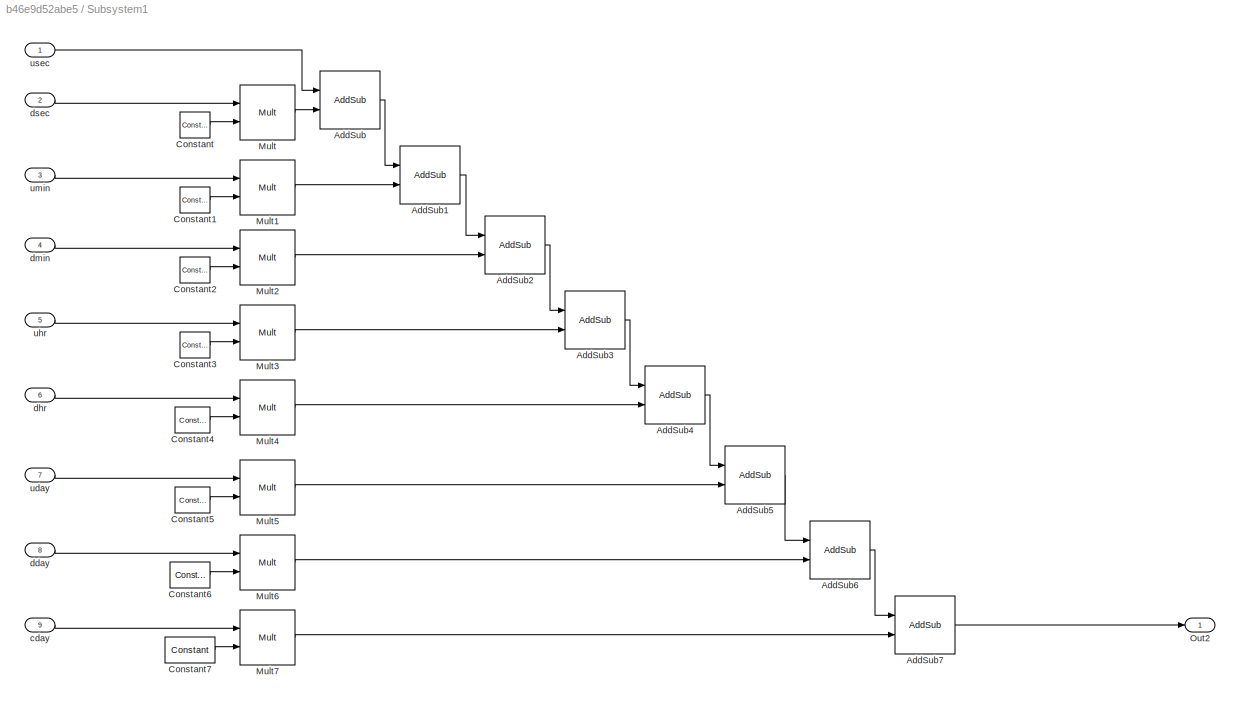
BLOCK [SubSystem] Subsystem1
  FunctionWithSeparateData = off
  MaskHideContents = off
  MinAlgLoopOccurrences = off
  Opaque = off
  Ports = [9, 1]
  PropExecContextOutsideSubsystem = off
  RTWSystemCode = Auto
  RequestExecContextInheritance = off
BLOCK [Reference] Subsystem1/AddSub  REF=xbsIndex_r4/AddSub
  Ports = [2, 1]
  SourceBlock = xbsIndex_r4/AddSub
  SourceType = Xilinx Adder/Subtracter Block
  arith_type = Unsigned
  bin_pt = 14
  block_type = addsub
  dbl_ovrd = off
  en = off
  has_advanced_control = 0
  hw_selection = Fabric
  latency = 0
  mode = Addition
  n_bits = 16
  overflow = Wrap
  pipelined = off
  precision = Full
  quantization = Truncate
  sg_icon_stat = 60,58,2,1,white,blue,0,e139daf6,right,,[ ],[ ]
  sg_mask_display = fprintf('','COMMENT: begin icon graphics');\npatch([0 60 60 0 0 ],[0 0 58 58 0 ],[0.77 0.82 0.91 ]);\nplot([0 60 60 0 0 ],[0 0 58 58 0 ]);\npatch([12.2 23.76 31.76 39.76 47.76 31.76 20.2 12.2 ],[37.88 37.88 45.88 37.88 45.88 45.88 45.88 37.88 ],[1 1 1 ]);\npatch([20.2 31.76 23.76 12.2 20.2 ],[29.88 29.88 37.88 37.88 29.88 ],[0.931 0.946 0.973 ]);\npatch([12.2 23.76 31.76 20.2 12.2 ],[21.88 21.88 29.88 ...<+411ch>  <repeated x8 — deduplicated; at blocks: AddSub, AddSub1, AddSub2, AddSub3, AddSub4, AddSub5, AddSub6, AddSub7>
  sggui_pos = -1,-1,-1,-1
  use_behavioral_HDL = off
  use_carryin = off
  use_carryout = off
  xl_area = [0,0,0,0,0,0,0]
  xl_use_area = off
BLOCK [Reference] Subsystem1/AddSub1  REF=xbsIndex_r4/AddSub
  Ports = [2, 1]
  SourceBlock = xbsIndex_r4/AddSub
  SourceType = Xilinx Adder/Subtracter Block
  arith_type = Unsigned
  bin_pt = 14
  block_type = addsub
  dbl_ovrd = off
  en = off
  has_advanced_control = 0
  hw_selection = Fabric
  latency = 0
  mode = Addition
  n_bits = 16
  overflow = Wrap
  pipelined = off
  precision = Full
  quantization = Truncate
  sg_icon_stat = 60,58,2,1,white,blue,0,e139daf6,right,,[ ],[ ]
  sggui_pos = -1,-1,-1,-1
  use_behavioral_HDL = off
  use_carryin = off
  use_carryout = off
  xl_area = [0,0,0,0,0,0,0]
  xl_use_area = off
BLOCK [Reference] Subsystem1/AddSub2  REF=xbsIndex_r4/AddSub
  Ports = [2, 1]
  SourceBlock = xbsIndex_r4/AddSub
  SourceType = Xilinx Adder/Subtracter Block
  arith_type = Unsigned
  bin_pt = 14
  block_type = addsub
  dbl_ovrd = off
  en = off
  has_advanced_control = 0
  hw_selection = Fabric
  latency = 0
  mode = Addition
  n_bits = 16
  overflow = Wrap
  pipelined = off
  precision = Full
  quantization = Truncate
  sg_icon_stat = 60,58,2,1,white,blue,0,e139daf6,right,,[ ],[ ]
  sggui_pos = 73,34,416,343
  use_behavioral_HDL = off
  use_carryin = off
  use_carryout = off
  xl_area = [0,0,0,0,0,0,0]
  xl_use_area = off
BLOCK [Reference] Subsystem1/AddSub3  REF=xbsIndex_r4/AddSub
  Ports = [2, 1]
  SourceBlock = xbsIndex_r4/AddSub
  SourceType = Xilinx Adder/Subtracter Block
  arith_type = Unsigned
  bin_pt = 14
  block_type = addsub
  dbl_ovrd = off
  en = off
  has_advanced_control = 0
  hw_selection = Fabric
  latency = 0
  mode = Addition
  n_bits = 16
  overflow = Wrap
  pipelined = off
  precision = Full
  quantization = Truncate
  sg_icon_stat = 60,58,2,1,white,blue,0,e139daf6,right,,[ ],[ ]
  sggui_pos = 63,24,416,343
  use_behavioral_HDL = off
  use_carryin = off
  use_carryout = off
  xl_area = [0,0,0,0,0,0,0]
  xl_use_area = off
BLOCK [Reference] Subsystem1/AddSub4  REF=xbsIndex_r4/AddSub
  Ports = [2, 1]
  SourceBlock = xbsIndex_r4/AddSub
  SourceType = Xilinx Adder/Subtracter Block
  arith_type = Unsigned
  bin_pt = 14
  block_type = addsub
  dbl_ovrd = off
  en = off
  has_advanced_control = 0
  hw_selection = Fabric
  latency = 0
  mode = Addition
  n_bits = 16
  overflow = Wrap
  pipelined = off
  precision = Full
  quantization = Truncate
  sg_icon_stat = 60,58,2,1,white,blue,0,e139daf6,right,,[ ],[ ]
  sggui_pos = 63,24,416,343
  use_behavioral_HDL = off
  use_carryin = off
  use_carryout = off
  xl_area = [0,0,0,0,0,0,0]
  xl_use_area = off
BLOCK [Reference] Subsystem1/AddSub5  REF=xbsIndex_r4/AddSub
  Ports = [2, 1]
  SourceBlock = xbsIndex_r4/AddSub
  SourceType = Xilinx Adder/Subtracter Block
  arith_type = Unsigned
  bin_pt = 14
  block_type = addsub
  dbl_ovrd = off
  en = off
  has_advanced_control = 0
  hw_selection = Fabric
  latency = 0
  mode = Addition
  n_bits = 16
  overflow = Wrap
  pipelined = off
  precision = Full
  quantization = Truncate
  sg_icon_stat = 60,58,2,1,white,blue,0,e139daf6,right,,[ ],[ ]
  sggui_pos = 63,24,416,343
  use_behavioral_HDL = off
  use_carryin = off
  use_carryout = off
  xl_area = [0,0,0,0,0,0,0]
  xl_use_area = off
BLOCK [Reference] Subsystem1/AddSub6  REF=xbsIndex_r4/AddSub
  Ports = [2, 1]
  SourceBlock = xbsIndex_r4/AddSub
  SourceType = Xilinx Adder/Subtracter Block
  arith_type = Unsigned
  bin_pt = 14
  block_type = addsub
  dbl_ovrd = off
  en = off
  has_advanced_control = 0
  hw_selection = Fabric
  latency = 0
  mode = Addition
  n_bits = 16
  overflow = Wrap
  pipelined = off
  precision = Full
  quantization = Truncate
  sg_icon_stat = 60,58,2,1,white,blue,0,e139daf6,right,,[ ],[ ]
  sggui_pos = 63,24,416,343
  use_behavioral_HDL = off
  use_carryin = off
  use_carryout = off
  xl_area = [0,0,0,0,0,0,0]
  xl_use_area = off
BLOCK [Reference] Subsystem1/AddSub7  REF=xbsIndex_r4/AddSub
  Ports = [2, 1]
  SourceBlock = xbsIndex_r4/AddSub
  SourceType = Xilinx Adder/Subtracter Block
  arith_type = Unsigned
  bin_pt = 14
  block_type = addsub
  dbl_ovrd = off
  en = off
  has_advanced_control = 0
  hw_selection = Fabric
  latency = 0
  mode = Addition
  n_bits = 16
  overflow = Wrap
  pipelined = off
  precision = Full
  quantization = Truncate
  sg_icon_stat = 60,58,2,1,white,blue,0,e139daf6,right,,[ ],[ ]
  sggui_pos = 53,14,416,343
  use_behavioral_HDL = off
  use_carryin = off
  use_carryout = off
  xl_area = [0,0,0,0,0,0,0]
  xl_use_area = off
BLOCK [Reference] Subsystem1/Constant  REF=xbsIndex_r4/Constant
  Ports = [0, 1]
  SourceBlock = xbsIndex_r4/Constant
  SourceType = Xilinx Constant Block Block
  arith_type = Unsigned
  bin_pt = 0
  block_type = constant
  carry = CIN
  const = 10
  dbl_ovrd = off
  dsp48_infoedit = The use of this block for DSP48 instructions is deprecated.  Please use the Opmode block.
  equ = P=C
  exp_width = 8
  explicit_period = on
  frac_width = 24
  gui_display_data_type = Fixed-point
  has_advanced_control = 0
  inp1 = P
  inp2 = PCIN>>17
  n_bits = 24
  opr = +
  opselect = C
  period = 1
  preci_type = Single
  sg_icon_stat = 30,26,0,1,white,blue,0,46ffeebb,right,,[ ],[ ]
  sg_mask_display = fprintf('','COMMENT: begin icon graphics');\npatch([0 30 30 0 0 ],[0 0 26 26 0 ],[0.77 0.82 0.91 ]);\nplot([0 30 30 0 0 ],[0 0 26 26 0 ]);\npatch([8.325 12.66 15.66 18.66 21.66 15.66 11.325 8.325 ],[16.33 16.33 19.33 16.33 19.33 19.33 19.33 16.33 ],[1 1 1 ]);\npatch([11.325 15.66 12.66 8.325 11.325 ],[13.33 13.33 16.33 16.33 13.33 ],[0.931 0.946 0.973 ]);\npatch([8.325 12.66 15.66 11.325 8.325 ],[10.33...<+318ch>
  sggui_pos = 53,14,337,463
BLOCK [Reference] Subsystem1/Constant1  REF=xbsIndex_r4/Constant
  Ports = [0, 1]
  SourceBlock = xbsIndex_r4/Constant
  SourceType = Xilinx Constant Block Block
  arith_type = Unsigned
  bin_pt = 0
  block_type = constant
  carry = CIN
  const = 60
  dbl_ovrd = off
  dsp48_infoedit = The use of this block for DSP48 instructions is deprecated.  Please use the Opmode block.
  equ = P=C
  exp_width = 8
  explicit_period = on
  frac_width = 24
  gui_display_data_type = Fixed-point
  has_advanced_control = 0
  inp1 = P
  inp2 = PCIN>>17
  n_bits = 24
  opr = +
  opselect = C
  period = 1
  preci_type = Single
  sg_icon_stat = 30,26,0,1,white,blue,0,72d84662,right,,[ ],[ ]
  sg_mask_display = fprintf('','COMMENT: begin icon graphics');\npatch([0 30 30 0 0 ],[0 0 26 26 0 ],[0.77 0.82 0.91 ]);\nplot([0 30 30 0 0 ],[0 0 26 26 0 ]);\npatch([8.325 12.66 15.66 18.66 21.66 15.66 11.325 8.325 ],[16.33 16.33 19.33 16.33 19.33 19.33 19.33 16.33 ],[1 1 1 ]);\npatch([11.325 15.66 12.66 8.325 11.325 ],[13.33 13.33 16.33 16.33 13.33 ],[0.931 0.946 0.973 ]);\npatch([8.325 12.66 15.66 11.325 8.325 ],[10.33...<+318ch>
  sggui_pos = 53,14,337,463
BLOCK [Reference] Subsystem1/Constant2  REF=xbsIndex_r4/Constant
  Ports = [0, 1]
  SourceBlock = xbsIndex_r4/Constant
  SourceType = Xilinx Constant Block Block
  arith_type = Unsigned
  bin_pt = 0
  block_type = constant
  carry = CIN
  const = 600
  dbl_ovrd = off
  dsp48_infoedit = The use of this block for DSP48 instructions is deprecated.  Please use the Opmode block.
  equ = P=C
  exp_width = 8
  explicit_period = on
  frac_width = 24
  gui_display_data_type = Fixed-point
  has_advanced_control = 0
  inp1 = P
  inp2 = PCIN>>17
  n_bits = 24
  opr = +
  opselect = C
  period = 1
  preci_type = Single
  sg_icon_stat = 30,26,0,1,white,blue,0,de590b5d,right,,[ ],[ ]
  sg_mask_display = fprintf('','COMMENT: begin icon graphics');\npatch([0 30 30 0 0 ],[0 0 26 26 0 ],[0.77 0.82 0.91 ]);\nplot([0 30 30 0 0 ],[0 0 26 26 0 ]);\npatch([8.325 12.66 15.66 18.66 21.66 15.66 11.325 8.325 ],[16.33 16.33 19.33 16.33 19.33 19.33 19.33 16.33 ],[1 1 1 ]);\npatch([11.325 15.66 12.66 8.325 11.325 ],[13.33 13.33 16.33 16.33 13.33 ],[0.931 0.946 0.973 ]);\npatch([8.325 12.66 15.66 11.325 8.325 ],[10.33...<+319ch>
  sggui_pos = 53,14,337,463
BLOCK [Reference] Subsystem1/Constant3  REF=xbsIndex_r4/Constant
  Ports = [0, 1]
  SourceBlock = xbsIndex_r4/Constant
  SourceType = Xilinx Constant Block Block
  arith_type = Unsigned
  bin_pt = 0
  block_type = constant
  carry = CIN
  const = 3600
  dbl_ovrd = off
  dsp48_infoedit = The use of this block for DSP48 instructions is deprecated.  Please use the Opmode block.
  equ = P=C
  exp_width = 8
  explicit_period = on
  frac_width = 24
  gui_display_data_type = Fixed-point
  has_advanced_control = 0
  inp1 = P
  inp2 = PCIN>>17
  n_bits = 24
  opr = +
  opselect = C
  period = 1
  preci_type = Single
  sg_icon_stat = 30,26,0,1,white,blue,0,2236eb92,right,,[ ],[ ]
  sg_mask_display = fprintf('','COMMENT: begin icon graphics');\npatch([0 30 30 0 0 ],[0 0 26 26 0 ],[0.77 0.82 0.91 ]);\nplot([0 30 30 0 0 ],[0 0 26 26 0 ]);\npatch([8.325 12.66 15.66 18.66 21.66 15.66 11.325 8.325 ],[16.33 16.33 19.33 16.33 19.33 19.33 19.33 16.33 ],[1 1 1 ]);\npatch([11.325 15.66 12.66 8.325 11.325 ],[13.33 13.33 16.33 16.33 13.33 ],[0.931 0.946 0.973 ]);\npatch([8.325 12.66 15.66 11.325 8.325 ],[10.33...<+320ch>
  sggui_pos = 53,14,337,463
BLOCK [Reference] Subsystem1/Constant4  REF=xbsIndex_r4/Constant
  Ports = [0, 1]
  SourceBlock = xbsIndex_r4/Constant
  SourceType = Xilinx Constant Block Block
  arith_type = Unsigned
  bin_pt = 0
  block_type = constant
  carry = CIN
  const = 36000
  dbl_ovrd = off
  dsp48_infoedit = The use of this block for DSP48 instructions is deprecated.  Please use the Opmode block.
  equ = P=C
  exp_width = 8
  explicit_period = on
  frac_width = 24
  gui_display_data_type = Fixed-point
  has_advanced_control = 0
  inp1 = P
  inp2 = PCIN>>17
  n_bits = 24
  opr = +
  opselect = C
  period = 1
  preci_type = Single
  sg_icon_stat = 35,26,0,1,white,blue,0,2c5dde13,right,,[ ],[ ]
  sg_mask_display = fprintf('','COMMENT: begin icon graphics');\npatch([0 35 35 0 0 ],[0 0 26 26 0 ],[0.77 0.82 0.91 ]);\nplot([0 35 35 0 0 ],[0 0 26 26 0 ]);\npatch([10.325 14.66 17.66 20.66 23.66 17.66 13.325 10.325 ],[16.33 16.33 19.33 16.33 19.33 19.33 19.33 16.33 ],[1 1 1 ]);\npatch([13.325 17.66 14.66 10.325 13.325 ],[13.33 13.33 16.33 16.33 13.33 ],[0.931 0.946 0.973 ]);\npatch([10.325 14.66 17.66 13.325 10.325 ],[...<+327ch>
  sggui_pos = 53,14,337,463
BLOCK [Reference] Subsystem1/Constant5  REF=xbsIndex_r4/Constant
  Ports = [0, 1]
  SourceBlock = xbsIndex_r4/Constant
  SourceType = Xilinx Constant Block Block
  arith_type = Unsigned
  bin_pt = 0
  block_type = constant
  carry = CIN
  const = 86400
  dbl_ovrd = off
  dsp48_infoedit = The use of this block for DSP48 instructions is deprecated.  Please use the Opmode block.
  equ = P=C
  exp_width = 8
  explicit_period = on
  frac_width = 24
  gui_display_data_type = Fixed-point
  has_advanced_control = 0
  inp1 = P
  inp2 = PCIN>>17
  n_bits = 24
  opr = +
  opselect = C
  period = 1
  preci_type = Single
  sg_icon_stat = 35,26,0,1,white,blue,0,60d572d3,right,,[ ],[ ]
  sg_mask_display = fprintf('','COMMENT: begin icon graphics');\npatch([0 35 35 0 0 ],[0 0 26 26 0 ],[0.77 0.82 0.91 ]);\nplot([0 35 35 0 0 ],[0 0 26 26 0 ]);\npatch([10.325 14.66 17.66 20.66 23.66 17.66 13.325 10.325 ],[16.33 16.33 19.33 16.33 19.33 19.33 19.33 16.33 ],[1 1 1 ]);\npatch([13.325 17.66 14.66 10.325 13.325 ],[13.33 13.33 16.33 16.33 13.33 ],[0.931 0.946 0.973 ]);\npatch([10.325 14.66 17.66 13.325 10.325 ],[...<+327ch>
  sggui_pos = 53,14,337,463
BLOCK [Reference] Subsystem1/Constant6  REF=xbsIndex_r4/Constant
  Ports = [0, 1]
  SourceBlock = xbsIndex_r4/Constant
  SourceType = Xilinx Constant Block Block
  arith_type = Unsigned
  bin_pt = 0
  block_type = constant
  carry = CIN
  const = 864000
  dbl_ovrd = off
  dsp48_infoedit = The use of this block for DSP48 instructions is deprecated.  Please use the Opmode block.
  equ = P=C
  exp_width = 8
  explicit_period = on
  frac_width = 24
  gui_display_data_type = Fixed-point
  has_advanced_control = 0
  inp1 = P
  inp2 = PCIN>>17
  n_bits = 24
  opr = +
  opselect = C
  period = 1
  preci_type = Single
  sg_icon_stat = 40,26,0,1,white,blue,0,1ac500e1,right,,[ ],[ ]
  sg_mask_display = fprintf('','COMMENT: begin icon graphics');\npatch([0 40 40 0 0 ],[0 0 26 26 0 ],[0.77 0.82 0.91 ]);\nplot([0 40 40 0 0 ],[0 0 26 26 0 ]);\npatch([13.325 17.66 20.66 23.66 26.66 20.66 16.325 13.325 ],[16.33 16.33 19.33 16.33 19.33 19.33 19.33 16.33 ],[1 1 1 ]);\npatch([16.325 20.66 17.66 13.325 16.325 ],[13.33 13.33 16.33 16.33 13.33 ],[0.931 0.946 0.973 ]);\npatch([13.325 17.66 20.66 16.325 13.325 ],[...<+328ch>
  sggui_pos = 53,14,337,463
BLOCK [Reference] Subsystem1/Constant7  REF=xbsIndex_r4/Constant
  Ports = [0, 1]
  SourceBlock = xbsIndex_r4/Constant
  SourceType = Xilinx Constant Block Block
  arith_type = Unsigned
  bin_pt = 0
  block_type = constant
  carry = CIN
  const = 8640000
  dbl_ovrd = off
  dsp48_infoedit = The use of this block for DSP48 instructions is deprecated.  Please use the Opmode block.
  equ = P=C
  exp_width = 8
  explicit_period = on
  frac_width = 24
  gui_display_data_type = Fixed-point
  has_advanced_control = 0
  inp1 = P
  inp2 = PCIN>>17
  n_bits = 24
  opr = +
  opselect = C
  period = 1
  preci_type = Single
  sg_icon_stat = 50,26,0,1,white,blue,0,8b990d8d,right,,[ ],[ ]
  sg_mask_display = fprintf('','COMMENT: begin icon graphics');\npatch([0 50 50 0 0 ],[0 0 26 26 0 ],[0.77 0.82 0.91 ]);\nplot([0 50 50 0 0 ],[0 0 26 26 0 ]);\npatch([18.325 22.66 25.66 28.66 31.66 25.66 21.325 18.325 ],[16.33 16.33 19.33 16.33 19.33 19.33 19.33 16.33 ],[1 1 1 ]);\npatch([21.325 25.66 22.66 18.325 21.325 ],[13.33 13.33 16.33 16.33 13.33 ],[0.931 0.946 0.973 ]);\npatch([18.325 22.66 25.66 21.325 18.325 ],[...<+329ch>
  sggui_pos = 53,14,337,463
BLOCK [Reference] Subsystem1/Mult  REF=xbsIndex_r4/Mult
  Ports = [2, 1]
  SourceBlock = xbsIndex_r4/Mult
  SourceType = Xilinx Multiplier Block
  arith_type = Signed  (2's comp)
  bin_pt = 14
  block_type = mult
  dbl_ovrd = off
  en = off
  has_advanced_control = 0
  infoedit = Hardware notes: To check for the optimum internal pipeline stages of the dedicated multiplier you must select 'Test for optimum pipelining'.<br><br>Optimization Goal: For implementation into device fabric (LUTs), the Speed or Area optimization will take effect only if it's supported by IP for the particular device family. Otherwise, the results will be identical regardless of the selection.  <repeated x8 — deduplicated; at blocks: Mult, Mult1, Mult2, Mult3, Mult4, Mult5, Mult6, Mult7>
  latency = 3
  n_bits = 16
  opt = Speed
  optimum_pipeline = off
  overflow = Wrap
  pipeline = on
  placement_style = Triangular
  precision = Full
  quantization = Truncate
  sg_icon_stat = 55,55,2,1,white,blue,0,7028354c,right,,[ ],[ ]
  sg_mask_display = fprintf('','COMMENT: begin icon graphics');\npatch([0 55 55 0 0 ],[0 0 55 55 0 ],[0.77 0.82 0.91 ]);\nplot([0 55 55 0 0 ],[0 0 55 55 0 ]);\npatch([11.425 21.54 28.54 35.54 42.54 28.54 18.425 11.425 ],[34.77 34.77 41.77 34.77 41.77 41.77 41.77 34.77 ],[1 1 1 ]);\npatch([18.425 28.54 21.54 11.425 18.425 ],[27.77 27.77 34.77 34.77 27.77 ],[0.931 0.946 0.973 ]);\npatch([11.425 21.54 28.54 18.425 11.425 ],[...<+522ch>  <repeated x8 — deduplicated; at blocks: Mult, Mult1, Mult2, Mult3, Mult4, Mult5, Mult6, Mult7>
  sggui_pos = 53,14,416,660
  use_behavioral_HDL = off
  use_embedded = on
  use_rpm = on
  xl_area = [0,0,0,0,0,0,0]
  xl_use_area = off
BLOCK [Reference] Subsystem1/Mult1  REF=xbsIndex_r4/Mult
  Ports = [2, 1]
  SourceBlock = xbsIndex_r4/Mult
  SourceType = Xilinx Multiplier Block
  arith_type = Signed  (2's comp)
  bin_pt = 14
  block_type = mult
  dbl_ovrd = off
  en = off
  has_advanced_control = 0
  latency = 3
  n_bits = 16
  opt = Speed
  optimum_pipeline = off
  overflow = Wrap
  pipeline = on
  placement_style = Triangular
  precision = Full
  quantization = Truncate
  sg_icon_stat = 55,55,2,1,white,blue,0,7028354c,right,,[ ],[ ]
  sggui_pos = -1,-1,-1,-1
  use_behavioral_HDL = off
  use_embedded = on
  use_rpm = on
  xl_area = [0,0,0,0,0,0,0]
  xl_use_area = off
BLOCK [Reference] Subsystem1/Mult2  REF=xbsIndex_r4/Mult
  Ports = [2, 1]
  SourceBlock = xbsIndex_r4/Mult
  SourceType = Xilinx Multiplier Block
  arith_type = Signed  (2's comp)
  bin_pt = 14
  block_type = mult
  dbl_ovrd = off
  en = off
  has_advanced_control = 0
  latency = 3
  n_bits = 16
  opt = Speed
  optimum_pipeline = off
  overflow = Wrap
  pipeline = on
  placement_style = Triangular
  precision = Full
  quantization = Truncate
  sg_icon_stat = 55,55,2,1,white,blue,0,7028354c,right,,[ ],[ ]
  sggui_pos = -1,-1,-1,-1
  use_behavioral_HDL = off
  use_embedded = on
  use_rpm = on
  xl_area = [0,0,0,0,0,0,0]
  xl_use_area = off
BLOCK [Reference] Subsystem1/Mult3  REF=xbsIndex_r4/Mult
  Ports = [2, 1]
  SourceBlock = xbsIndex_r4/Mult
  SourceType = Xilinx Multiplier Block
  arith_type = Signed  (2's comp)
  bin_pt = 14
  block_type = mult
  dbl_ovrd = off
  en = off
  has_advanced_control = 0
  latency = 3
  n_bits = 16
  opt = Speed
  optimum_pipeline = off
  overflow = Wrap
  pipeline = on
  placement_style = Triangular
  precision = Full
  quantization = Truncate
  sg_icon_stat = 55,55,2,1,white,blue,0,7028354c,right,,[ ],[ ]
  sggui_pos = -1,-1,-1,-1
  use_behavioral_HDL = off
  use_embedded = on
  use_rpm = on
  xl_area = [0,0,0,0,0,0,0]
  xl_use_area = off
BLOCK [Reference] Subsystem1/Mult4  REF=xbsIndex_r4/Mult
  Ports = [2, 1]
  SourceBlock = xbsIndex_r4/Mult
  SourceType = Xilinx Multiplier Block
  arith_type = Signed  (2's comp)
  bin_pt = 14
  block_type = mult
  dbl_ovrd = off
  en = off
  has_advanced_control = 0
  latency = 3
  n_bits = 16
  opt = Speed
  optimum_pipeline = off
  overflow = Wrap
  pipeline = on
  placement_style = Triangular
  precision = Full
  quantization = Truncate
  sg_icon_stat = 55,55,2,1,white,blue,0,7028354c,right,,[ ],[ ]
  sggui_pos = -1,-1,-1,-1
  use_behavioral_HDL = off
  use_embedded = on
  use_rpm = on
  xl_area = [0,0,0,0,0,0,0]
  xl_use_area = off
BLOCK [Reference] Subsystem1/Mult5  REF=xbsIndex_r4/Mult
  Ports = [2, 1]
  SourceBlock = xbsIndex_r4/Mult
  SourceType = Xilinx Multiplier Block
  arith_type = Signed  (2's comp)
  bin_pt = 14
  block_type = mult
  dbl_ovrd = off
  en = off
  has_advanced_control = 0
  latency = 3
  n_bits = 16
  opt = Speed
  optimum_pipeline = off
  overflow = Wrap
  pipeline = on
  placement_style = Triangular
  precision = Full
  quantization = Truncate
  sg_icon_stat = 55,55,2,1,white,blue,0,7028354c,right,,[ ],[ ]
  sggui_pos = -1,-1,-1,-1
  use_behavioral_HDL = off
  use_embedded = on
  use_rpm = on
  xl_area = [0,0,0,0,0,0,0]
  xl_use_area = off
BLOCK [Reference] Subsystem1/Mult6  REF=xbsIndex_r4/Mult
  Ports = [2, 1]
  SourceBlock = xbsIndex_r4/Mult
  SourceType = Xilinx Multiplier Block
  arith_type = Signed  (2's comp)
  bin_pt = 14
  block_type = mult
  dbl_ovrd = off
  en = off
  has_advanced_control = 0
  latency = 3
  n_bits = 16
  opt = Speed
  optimum_pipeline = off
  overflow = Wrap
  pipeline = on
  placement_style = Triangular
  precision = Full
  quantization = Truncate
  sg_icon_stat = 55,55,2,1,white,blue,0,7028354c,right,,[ ],[ ]
  sggui_pos = -1,-1,-1,-1
  use_behavioral_HDL = off
  use_embedded = on
  use_rpm = on
  xl_area = [0,0,0,0,0,0,0]
  xl_use_area = off
BLOCK [Reference] Subsystem1/Mult7  REF=xbsIndex_r4/Mult
  Ports = [2, 1]
  SourceBlock = xbsIndex_r4/Mult
  SourceType = Xilinx Multiplier Block
  arith_type = Signed  (2's comp)
  bin_pt = 14
  block_type = mult
  dbl_ovrd = off
  en = off
  has_advanced_control = 0
  latency = 3
  n_bits = 16
  opt = Speed
  optimum_pipeline = off
  overflow = Wrap
  pipeline = on
  placement_style = Triangular
  precision = Full
  quantization = Truncate
  sg_icon_stat = 55,55,2,1,white,blue,0,7028354c,right,,[ ],[ ]
  sggui_pos = -1,-1,-1,-1
  use_behavioral_HDL = off
  use_embedded = on
  use_rpm = on
  xl_area = [0,0,0,0,0,0,0]
  xl_use_area = off
BLOCK [Outport] Subsystem1/Out2
  IconDisplay = Port number
BLOCK [Inport] Subsystem1/cday
  IconDisplay = Port number
  Port = 9
BLOCK [Inport] Subsystem1/dday
  IconDisplay = Port number
  Port = 8
BLOCK [Inport] Subsystem1/dhr
  IconDisplay = Port number
  Port = 6
BLOCK [Inport] Subsystem1/dmin
  IconDisplay = Port number
  Port = 4
BLOCK [Inport] Subsystem1/dsec
  IconDisplay = Port number
  Port = 2
BLOCK [Inport] Subsystem1/uday
  IconDisplay = Port number
  Port = 7
BLOCK [Inport] Subsystem1/uhr
  IconDisplay = Port number
  Port = 5
BLOCK [Inport] Subsystem1/umin
  IconDisplay = Port number
  Port = 3
BLOCK [Inport] Subsystem1/usec
  IconDisplay = Port number
BLOCK [Terminator] Terminator
BLOCK [Terminator] Terminator1
BLOCK [Terminator] Terminator10
BLOCK [Terminator] Terminator11
BLOCK [Terminator] Terminator12
BLOCK [Terminator] Terminator13
BLOCK [Terminator] Terminator19
BLOCK [Terminator] Terminator2
BLOCK [Terminator] Terminator3
BLOCK [Terminator] Terminator4
BLOCK [Terminator] Terminator5
BLOCK [Terminator] Terminator6
BLOCK [Terminator] Terminator7
BLOCK [Terminator] Terminator8
BLOCK [Terminator] Terminator9
BLOCK [Reference] WaveScope  REF=xbsIndex_r4/WaveScope
  Ports = []
  SourceBlock = xbsIndex_r4/WaveScope
  SourceType = Xilinx WaveScope Block
  UserDataPersistent = on
  block_type = wavescope
  has_advanced_control = 0
  infoedit = WaveScope
  sg_icon_stat = 71,62,-1,-1,blue,white,0,07734,right,,[ ],[ ]
  sg_mask_display = fprintf('','COMMENT: begin icon graphics');\npatch([0 71 71 0 0 ],[0 0 62 62 0 ],[1 1 1 ]);\nplot([0 71 71 0 0 ],[0 0 62 62 0 ]);\npatch([17.2 28.76 36.76 44.76 52.76 36.76 25.2 17.2 ],[39.88 39.88 47.88 39.88 47.88 47.88 47.88 39.88 ],[0.839 0.874 0.937 ]);\npatch([25.2 36.76 28.76 17.2 25.2 ],[31.88 31.88 39.88 39.88 31.88 ],[0.77 0.82 0.91 ]);\npatch([17.2 28.76 36.76 25.2 17.2 ],[23.88 23.88 31.88 ...<+536ch>
  sggui_pos = -1,-1,-1,-1
BLOCK [Reference] WaveScope1  REF=xbsIndex_r4/WaveScope
  Ports = []
  SourceBlock = xbsIndex_r4/WaveScope
  SourceType = Xilinx WaveScope Block
  UserDataPersistent = on
  block_type = wavescope
  has_advanced_control = 0
  infoedit = WaveScope
  sg_icon_stat = 71,62,-1,-1,blue,white,0,07734,right,,[ ],[ ]
  sg_mask_display = fprintf('','COMMENT: begin icon graphics');\npatch([0 71 71 0 0 ],[0 0 62 62 0 ],[1 1 1 ]);\nplot([0 71 71 0 0 ],[0 0 62 62 0 ]);\npatch([17.2 28.76 36.76 44.76 52.76 36.76 25.2 17.2 ],[39.88 39.88 47.88 39.88 47.88 47.88 47.88 39.88 ],[0.839 0.874 0.937 ]);\npatch([25.2 36.76 28.76 17.2 25.2 ],[31.88 31.88 39.88 39.88 31.88 ],[0.77 0.82 0.91 ]);\npatch([17.2 28.76 36.76 25.2 17.2 ],[23.88 23.88 31.88 ...<+536ch>
  sggui_pos = -1,-1,-1,-1
BLOCK [Reference] XSG_core_config  REF=xps_library/XSG_core_config  (lib defined in mdl_00b5cec29cd0, mdl_02ab6ecaa3d1, +5 more)
  MKDIG_clk_src = sys_clk
  Ports = []
  ROACH2_clk_src = sys_clk
  ROACH_clk_src = sys_clk
  SourceBlock = xps_library/XSG_core_config
  SourceType = xsg core config
  Tag = xps:xsg
  clk_rate = 100
  clk_src = sys_clk
  hw_sys = ROACH2:sx475t
  sample_period = 1
  synthesis_tool = XST
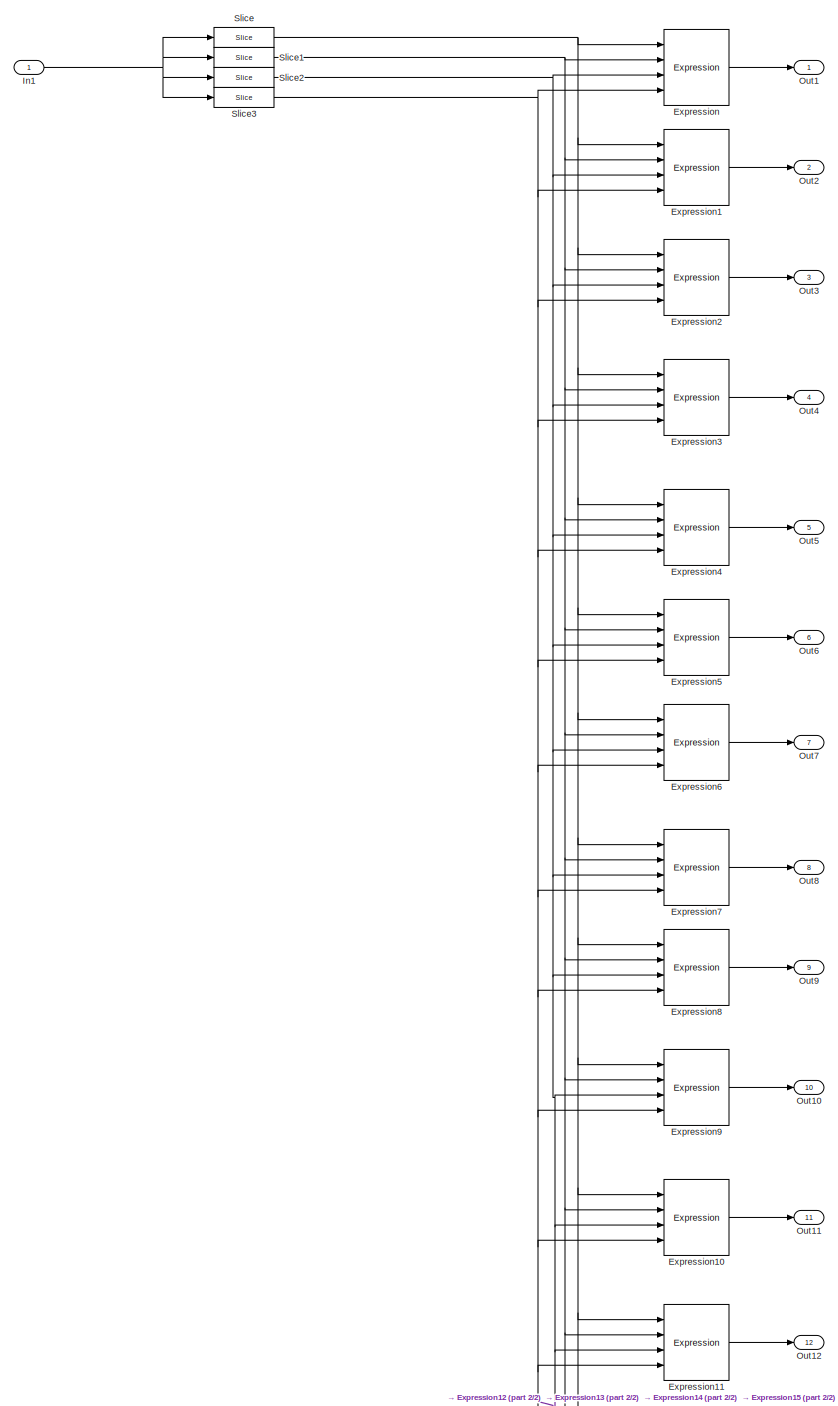
[diagram: deco_4_16 - part 1/2, most of the canvas]
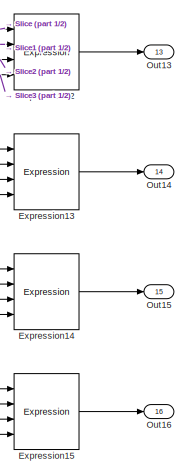
[diagram: deco_4_16 - part 2/2, bottom right region]
BLOCK [SubSystem] deco_4_16
  FunctionWithSeparateData = off
  MaskHideContents = off
  MinAlgLoopOccurrences = off
  Opaque = off
  Ports = [1, 16]
  PropExecContextOutsideSubsystem = off
  RTWSystemCode = Auto
  RequestExecContextInheritance = off
BLOCK [Reference] deco_4_16/Expression  REF=xbsIndex_r4/Expression
  Ports = [4, 1]
  SourceBlock = xbsIndex_r4/Expression
  SourceType = Xilinx Bitwise Expression Evaluator Block
  align_bp = on
  arith_type = Unsigned
  bin_pt = 0
  block_type = expr
  dbl_ovrd = off
  en = off
  expression = ~a & ~b & ~c & ~d
  has_advanced_control = 0
  latency = 0
  n_bits = 16
  precision = Full
  sg_icon_stat = 65,76,4,1,white,blue,0,95d49389,right,,[ ],[ ]
  sg_mask_display = fprintf('','COMMENT: begin icon graphics');\npatch([0 65 65 0 0 ],[0 0 76 76 0 ],[0.77 0.82 0.91 ]);\nplot([0 65 65 0 0 ],[0 0 76 76 0 ]);\npatch([11.975 24.98 33.98 42.98 51.98 33.98 20.975 11.975 ],[47.99 47.99 56.99 47.99 56.99 56.99 56.99 47.99 ],[1 1 1 ]);\npatch([20.975 33.98 24.98 11.975 20.975 ],[38.99 38.99 47.99 47.99 38.99 ],[0.931 0.946 0.973 ]);\npatch([11.975 24.98 33.98 20.975 11.975 ],[...<+529ch>
  sggui_pos = 53,14,416,261
  xl_area = [0,0,0,0,0,0,0]
  xl_use_area = off
BLOCK [Reference] deco_4_16/Expression1  REF=xbsIndex_r4/Expression
  Ports = [4, 1]
  SourceBlock = xbsIndex_r4/Expression
  SourceType = Xilinx Bitwise Expression Evaluator Block
  align_bp = on
  arith_type = Unsigned
  bin_pt = 0
  block_type = expr
  dbl_ovrd = off
  en = off
  expression = ~a & ~b & ~c & d
  has_advanced_control = 0
  latency = 0
  n_bits = 16
  precision = Full
  sg_icon_stat = 65,76,4,1,white,blue,0,7d0b9135,right,,[ ],[ ]
  sg_mask_display = fprintf('','COMMENT: begin icon graphics');\npatch([0 65 65 0 0 ],[0 0 76 76 0 ],[0.77 0.82 0.91 ]);\nplot([0 65 65 0 0 ],[0 0 76 76 0 ]);\npatch([11.975 24.98 33.98 42.98 51.98 33.98 20.975 11.975 ],[47.99 47.99 56.99 47.99 56.99 56.99 56.99 47.99 ],[1 1 1 ]);\npatch([20.975 33.98 24.98 11.975 20.975 ],[38.99 38.99 47.99 47.99 38.99 ],[0.931 0.946 0.973 ]);\npatch([11.975 24.98 33.98 20.975 11.975 ],[...<+528ch>  <repeated x4 — deduplicated; at blocks: Expression1, Expression2, Expression4, Expression8>
  sggui_pos = 53,14,416,261
  xl_area = [0,0,0,0,0,0,0]
  xl_use_area = off
BLOCK [Reference] deco_4_16/Expression10  REF=xbsIndex_r4/Expression
  Ports = [4, 1]
  SourceBlock = xbsIndex_r4/Expression
  SourceType = Xilinx Bitwise Expression Evaluator Block
  align_bp = on
  arith_type = Unsigned
  bin_pt = 0
  block_type = expr
  dbl_ovrd = off
  en = off
  expression = a & ~b & c & ~d
  has_advanced_control = 0
  latency = 0
  n_bits = 16
  precision = Full
  sg_icon_stat = 65,76,4,1,white,blue,0,fd859608,right,,[ ],[ ]
  sg_mask_display = fprintf('','COMMENT: begin icon graphics');\npatch([0 65 65 0 0 ],[0 0 76 76 0 ],[0.77 0.82 0.91 ]);\nplot([0 65 65 0 0 ],[0 0 76 76 0 ]);\npatch([11.975 24.98 33.98 42.98 51.98 33.98 20.975 11.975 ],[47.99 47.99 56.99 47.99 56.99 56.99 56.99 47.99 ],[1 1 1 ]);\npatch([20.975 33.98 24.98 11.975 20.975 ],[38.99 38.99 47.99 47.99 38.99 ],[0.931 0.946 0.973 ]);\npatch([11.975 24.98 33.98 20.975 11.975 ],[...<+527ch>  <repeated x6 — deduplicated; at blocks: Expression10, Expression12, Expression3, Expression5, Expression6, Expression9>
  sggui_pos = 53,14,416,261
  xl_area = [0,0,0,0,0,0,0]
  xl_use_area = off
BLOCK [Reference] deco_4_16/Expression11  REF=xbsIndex_r4/Expression
  Ports = [4, 1]
  SourceBlock = xbsIndex_r4/Expression
  SourceType = Xilinx Bitwise Expression Evaluator Block
  align_bp = on
  arith_type = Unsigned
  bin_pt = 0
  block_type = expr
  dbl_ovrd = off
  en = off
  expression = a & ~b & c & d
  has_advanced_control = 0
  latency = 0
  n_bits = 16
  precision = Full
  sg_icon_stat = 65,76,4,1,white,blue,0,4ce97f98,right,,[ ],[ ]
  sg_mask_display = fprintf('','COMMENT: begin icon graphics');\npatch([0 65 65 0 0 ],[0 0 76 76 0 ],[0.77 0.82 0.91 ]);\nplot([0 65 65 0 0 ],[0 0 76 76 0 ]);\npatch([11.975 24.98 33.98 42.98 51.98 33.98 20.975 11.975 ],[47.99 47.99 56.99 47.99 56.99 56.99 56.99 47.99 ],[1 1 1 ]);\npatch([20.975 33.98 24.98 11.975 20.975 ],[38.99 38.99 47.99 47.99 38.99 ],[0.931 0.946 0.973 ]);\npatch([11.975 24.98 33.98 20.975 11.975 ],[...<+526ch>  <repeated x4 — deduplicated; at blocks: Expression11, Expression13, Expression14, Expression7>
  sggui_pos = 53,14,416,261
  xl_area = [0,0,0,0,0,0,0]
  xl_use_area = off
BLOCK [Reference] deco_4_16/Expression12  REF=xbsIndex_r4/Expression
  Ports = [4, 1]
  SourceBlock = xbsIndex_r4/Expression
  SourceType = Xilinx Bitwise Expression Evaluator Block
  align_bp = off
  arith_type = Unsigned
  bin_pt = 0
  block_type = expr
  dbl_ovrd = off
  en = off
  expression = a & b & ~c & ~d
  has_advanced_control = 0
  latency = 0
  n_bits = 16
  precision = Full
  sg_icon_stat = 65,76,4,1,white,blue,0,ee513ba3,right,,[ ],[ ]
  sggui_pos = 53,14,416,261
  xl_area = [0,0,0,0,0,0,0]
  xl_use_area = off
BLOCK [Reference] deco_4_16/Expression13  REF=xbsIndex_r4/Expression
  Ports = [4, 1]
  SourceBlock = xbsIndex_r4/Expression
  SourceType = Xilinx Bitwise Expression Evaluator Block
  align_bp = off
  arith_type = Unsigned
  bin_pt = 0
  block_type = expr
  dbl_ovrd = off
  en = off
  expression = a & b & ~c & d
  has_advanced_control = 0
  latency = 0
  n_bits = 16
  precision = Full
  sg_icon_stat = 65,76,4,1,white,blue,0,17d17b38,right,,[ ],[ ]
  sggui_pos = 53,14,416,261
  xl_area = [0,0,0,0,0,0,0]
  xl_use_area = off
BLOCK [Reference] deco_4_16/Expression14  REF=xbsIndex_r4/Expression
  Ports = [4, 1]
  SourceBlock = xbsIndex_r4/Expression
  SourceType = Xilinx Bitwise Expression Evaluator Block
  align_bp = off
  arith_type = Unsigned
  bin_pt = 0
  block_type = expr
  dbl_ovrd = off
  en = off
  expression = a & b & c & ~d
  has_advanced_control = 0
  latency = 0
  n_bits = 16
  precision = Full
  sg_icon_stat = 65,76,4,1,white,blue,0,9ec39d4c,right,,[ ],[ ]
  sggui_pos = 53,14,416,261
  xl_area = [0,0,0,0,0,0,0]
  xl_use_area = off
BLOCK [Reference] deco_4_16/Expression15  REF=xbsIndex_r4/Expression
  Ports = [4, 1]
  SourceBlock = xbsIndex_r4/Expression
  SourceType = Xilinx Bitwise Expression Evaluator Block
  align_bp = off
  arith_type = Unsigned
  bin_pt = 0
  block_type = expr
  dbl_ovrd = off
  en = off
  expression = a & b & c & d
  has_advanced_control = 0
  latency = 0
  n_bits = 16
  precision = Full
  sg_icon_stat = 65,76,4,1,white,blue,0,902d1c43,right,,[ ],[ ]
  sg_mask_display = fprintf('','COMMENT: begin icon graphics');\npatch([0 65 65 0 0 ],[0 0 76 76 0 ],[0.77 0.82 0.91 ]);\nplot([0 65 65 0 0 ],[0 0 76 76 0 ]);\npatch([11.975 24.98 33.98 42.98 51.98 33.98 20.975 11.975 ],[47.99 47.99 56.99 47.99 56.99 56.99 56.99 47.99 ],[1 1 1 ]);\npatch([20.975 33.98 24.98 11.975 20.975 ],[38.99 38.99 47.99 47.99 38.99 ],[0.931 0.946 0.973 ]);\npatch([11.975 24.98 33.98 20.975 11.975 ],[...<+525ch>
  sggui_pos = 53,14,416,261
  xl_area = [0,0,0,0,0,0,0]
  xl_use_area = off
BLOCK [Reference] deco_4_16/Expression2  REF=xbsIndex_r4/Expression
  Ports = [4, 1]
  SourceBlock = xbsIndex_r4/Expression
  SourceType = Xilinx Bitwise Expression Evaluator Block
  align_bp = on
  arith_type = Unsigned
  bin_pt = 0
  block_type = expr
  dbl_ovrd = off
  en = off
  expression = ~a & ~b & c & ~d
  has_advanced_control = 0
  latency = 0
  n_bits = 16
  precision = Full
  sg_icon_stat = 65,76,4,1,white,blue,0,b5804862,right,,[ ],[ ]
  sggui_pos = 53,14,416,261
  xl_area = [0,0,0,0,0,0,0]
  xl_use_area = off
BLOCK [Reference] deco_4_16/Expression3  REF=xbsIndex_r4/Expression
  Ports = [4, 1]
  SourceBlock = xbsIndex_r4/Expression
  SourceType = Xilinx Bitwise Expression Evaluator Block
  align_bp = on
  arith_type = Unsigned
  bin_pt = 0
  block_type = expr
  dbl_ovrd = off
  en = off
  expression = ~a & ~b & c & d
  has_advanced_control = 0
  latency = 0
  n_bits = 16
  precision = Full
  sg_icon_stat = 65,76,4,1,white,blue,0,ba4e7879,right,,[ ],[ ]
  sggui_pos = 53,14,416,261
  xl_area = [0,0,0,0,0,0,0]
  xl_use_area = off
BLOCK [Reference] deco_4_16/Expression4  REF=xbsIndex_r4/Expression
  Ports = [4, 1]
  SourceBlock = xbsIndex_r4/Expression
  SourceType = Xilinx Bitwise Expression Evaluator Block
  align_bp = on
  arith_type = Unsigned
  bin_pt = 0
  block_type = expr
  dbl_ovrd = off
  en = off
  expression = ~a & b & ~c & ~d
  has_advanced_control = 0
  latency = 0
  n_bits = 16
  precision = Full
  sg_icon_stat = 65,76,4,1,white,blue,0,fd4df31f,right,,[ ],[ ]
  sggui_pos = 53,14,416,261
  xl_area = [0,0,0,0,0,0,0]
  xl_use_area = off
BLOCK [Reference] deco_4_16/Expression5  REF=xbsIndex_r4/Expression
  Ports = [4, 1]
  SourceBlock = xbsIndex_r4/Expression
  SourceType = Xilinx Bitwise Expression Evaluator Block
  align_bp = on
  arith_type = Unsigned
  bin_pt = 0
  block_type = expr
  dbl_ovrd = off
  en = off
  expression = ~a & b & ~c & d
  has_advanced_control = 0
  latency = 0
  n_bits = 16
  precision = Full
  sg_icon_stat = 65,76,4,1,white,blue,0,f7f329f8,right,,[ ],[ ]
  sggui_pos = 53,14,416,261
  xl_area = [0,0,0,0,0,0,0]
  xl_use_area = off
BLOCK [Reference] deco_4_16/Expression6  REF=xbsIndex_r4/Expression
  Ports = [4, 1]
  SourceBlock = xbsIndex_r4/Expression
  SourceType = Xilinx Bitwise Expression Evaluator Block
  align_bp = on
  arith_type = Unsigned
  bin_pt = 0
  block_type = expr
  dbl_ovrd = off
  en = off
  expression = ~a & b & c & ~d
  has_advanced_control = 0
  latency = 0
  n_bits = 16
  precision = Full
  sg_icon_stat = 65,76,4,1,white,blue,0,8ea00be4,right,,[ ],[ ]
  sggui_pos = 53,14,416,261
  xl_area = [0,0,0,0,0,0,0]
  xl_use_area = off
BLOCK [Reference] deco_4_16/Expression7  REF=xbsIndex_r4/Expression
  Ports = [4, 1]
  SourceBlock = xbsIndex_r4/Expression
  SourceType = Xilinx Bitwise Expression Evaluator Block
  align_bp = on
  arith_type = Unsigned
  bin_pt = 0
  block_type = expr
  dbl_ovrd = off
  en = off
  expression = ~a & b & c & d
  has_advanced_control = 0
  latency = 0
  n_bits = 16
  precision = Full
  sg_icon_stat = 65,76,4,1,white,blue,0,d5e26c7b,right,,[ ],[ ]
  sggui_pos = 53,14,416,261
  xl_area = [0,0,0,0,0,0,0]
  xl_use_area = off
BLOCK [Reference] deco_4_16/Expression8  REF=xbsIndex_r4/Expression
  Ports = [4, 1]
  SourceBlock = xbsIndex_r4/Expression
  SourceType = Xilinx Bitwise Expression Evaluator Block
  align_bp = on
  arith_type = Unsigned
  bin_pt = 0
  block_type = expr
  dbl_ovrd = off
  en = off
  expression = a & ~b & ~c & ~d
  has_advanced_control = 0
  latency = 0
  n_bits = 16
  precision = Full
  sg_icon_stat = 65,76,4,1,white,blue,0,37733d59,right,,[ ],[ ]
  sggui_pos = 53,14,416,261
  xl_area = [0,0,0,0,0,0,0]
  xl_use_area = off
BLOCK [Reference] deco_4_16/Expression9  REF=xbsIndex_r4/Expression
  Ports = [4, 1]
  SourceBlock = xbsIndex_r4/Expression
  SourceType = Xilinx Bitwise Expression Evaluator Block
  align_bp = on
  arith_type = Unsigned
  bin_pt = 0
  block_type = expr
  dbl_ovrd = off
  en = off
  expression = a & ~b & ~c & d
  has_advanced_control = 0
  latency = 0
  n_bits = 16
  precision = Full
  sg_icon_stat = 65,76,4,1,white,blue,0,fe38c9bb,right,,[ ],[ ]
  sggui_pos = 53,14,416,261
  xl_area = [0,0,0,0,0,0,0]
  xl_use_area = off
BLOCK [Inport] deco_4_16/In1
  IconDisplay = Port number
BLOCK [Outport] deco_4_16/Out1
  IconDisplay = Port number
BLOCK [Outport] deco_4_16/Out10
  IconDisplay = Port number
  Port = 10
BLOCK [Outport] deco_4_16/Out11
  IconDisplay = Port number
  Port = 11
BLOCK [Outport] deco_4_16/Out12
  IconDisplay = Port number
  Port = 12
BLOCK [Outport] deco_4_16/Out13
  IconDisplay = Port number
  Port = 13
BLOCK [Outport] deco_4_16/Out14
  IconDisplay = Port number
  Port = 14
BLOCK [Outport] deco_4_16/Out15
  IconDisplay = Port number
  Port = 15
BLOCK [Outport] deco_4_16/Out16
  IconDisplay = Port number
  Port = 16
BLOCK [Outport] deco_4_16/Out2
  IconDisplay = Port number
  Port = 2
BLOCK [Outport] deco_4_16/Out3
  IconDisplay = Port number
  Port = 3
BLOCK [Outport] deco_4_16/Out4
  IconDisplay = Port number
  Port = 4
BLOCK [Outport] deco_4_16/Out5
  IconDisplay = Port number
  Port = 5
BLOCK [Outport] deco_4_16/Out6
  IconDisplay = Port number
  Port = 6
BLOCK [Outport] deco_4_16/Out7
  IconDisplay = Port number
  Port = 7
BLOCK [Outport] deco_4_16/Out8
  IconDisplay = Port number
  Port = 8
BLOCK [Outport] deco_4_16/Out9
  IconDisplay = Port number
  Port = 9
BLOCK [Reference] deco_4_16/Slice  REF=xbsIndex_r4/Slice
  Ports = [1, 1]
  SourceBlock = xbsIndex_r4/Slice
  SourceType = Xilinx Bit Slice Extractor Block
  base0 = LSB of Input
  base1 = MSB of Input
  bit0 = 3
  bit1 = 0
  block_type = slice
  block_version = 11.4
  boolean_output = on
  dbl_ovrd = off
  has_advanced_control = 0
  mode = Lower Bit Location + Width
  nbits = 1
  sg_icon_stat = 60,20,1,1,white,blue,0,1fd851a7,right,,[ ],[ ]
  sggui_pos = 53,14,631,621
BLOCK [Reference] deco_4_16/Slice1  REF=xbsIndex_r4/Slice
  Ports = [1, 1]
  SourceBlock = xbsIndex_r4/Slice
  SourceType = Xilinx Bit Slice Extractor Block
  base0 = LSB of Input
  base1 = LSB of Input
  bit0 = 2
  bit1 = 2
  block_type = slice
  block_version = 11.4
  boolean_output = on
  dbl_ovrd = off
  has_advanced_control = 0
  mode = Lower Bit Location + Width
  nbits = 1
  sg_icon_stat = 60,20,1,1,white,blue,0,1fd851a7,right,,[ ],[ ]
  sggui_pos = 53,14,631,621
BLOCK [Reference] deco_4_16/Slice2  REF=xbsIndex_r4/Slice
  Ports = [1, 1]
  SourceBlock = xbsIndex_r4/Slice
  SourceType = Xilinx Bit Slice Extractor Block
  base0 = LSB of Input
  base1 = LSB of Input
  bit0 = 1
  bit1 = 1
  block_type = slice
  block_version = 11.4
  boolean_output = on
  dbl_ovrd = off
  has_advanced_control = 0
  mode = Lower Bit Location + Width
  nbits = 1
  sg_icon_stat = 60,20,1,1,white,blue,0,1fd851a7,right,,[ ],[ ]
  sggui_pos = 53,14,631,621
BLOCK [Reference] deco_4_16/Slice3  REF=xbsIndex_r4/Slice
  Ports = [1, 1]
  SourceBlock = xbsIndex_r4/Slice
  SourceType = Xilinx Bit Slice Extractor Block
  base0 = LSB of Input
  base1 = LSB of Input
  bit0 = 0
  bit1 = 0
  block_type = slice
  block_version = 11.4
  boolean_output = on
  dbl_ovrd = off
  has_advanced_control = 0
  mode = Lower Bit Location + Width
  nbits = 1
  sg_icon_stat = 60,20,1,1,white,blue,0,1fd851a7,right,,[ ],[ ]
  sggui_pos = 53,14,631,621
ANNOTATION (root): esta parte ve el conteo de las fracciones de segundos
ANNOTATION Subsystem: houdreds of days module
ANNOTATION Subsystem: tens of days module
ANNOTATION Subsystem: tens of hours module
ANNOTATION Subsystem: tens of minutes module
ANNOTATION Subsystem: tens of seconds module
ANNOTATION Subsystem: unit of days module
ANNOTATION Subsystem: unit of hours module
ANNOTATION Subsystem: unit of minits module
ANNOTATION Subsystem: unit of seconds module
LINE Assert1:1 -> Goto6:1
LINE Assert2:1 -> Goto7:1
LINE Assert3:1 -> Goto8:1
LINE Assert4:1 -> Mux:2
LINE Assert:1 -> Goto:1
LINE Black Box1:1 -> Convert:1
LINE Black Box1:2 -> Convert1:1
LINE Black Box1:3 -> Delay1:1
LINE Black Box1:4 -> Convert2:1
LINE Black Box1:5 -> Convert3:1
LINE Black Box1:6 -> Terminator2:1
LINE Black Box3:1 -> Convert8:1
LINE Black Box3:2 -> Terminator12:1
LINE Black Box:1 -> Terminator19:1
LINE Black Box:10 -> Convert7:1
LINE Black Box:2 -> Terminator8:1
LINE Black Box:3 -> Delay4:1
LINE Black Box:4 -> Delay3:1
LINE Black Box:5 -> Convert9:1
LINE Black Box:6 -> Convert10:1
LINE Black Box:7 -> Convert4:1
LINE Black Box:8 -> Convert5:1
LINE Black Box:9 -> Convert6:1
LINE Concat1:1 -> Terminator10:1
LINE Concat2:1 -> Terminator11:1
LINE Concat3:1 -> Terminator13:1
LINE Concat:1 -> Delay2:1
LINE Constant10:1 -> Concat2:2
LINE Constant11:1 -> Black Box3:4
LINE Constant12:1 -> Concat3:2
LINE Constant13:1 -> Concat3:4
LINE Constant1:1 -> Goto2:1
LINE Constant2:1 -> Goto4:1
LINE Constant3:1 -> Relational3:2
LINE Constant4:1 -> Concat1:1
LINE Constant5:1 -> Black Box1:8
LINE Constant6:1 -> Goto3:1
LINE Constant7:1 -> Black Box3:3
LINE Constant8:1 -> Mux2:2
LINE Constant9:1 -> Mux2:3
LINE Constant:1 -> Mux:3
NET Convert10:1 -> Counter3:3, Counter6:3, Mux:1, Register1:2, Subsystem:11
LINE Convert1:1 -> Counter:1
LINE Convert2:1 -> Counter1:2
LINE Convert3:1 -> Counter1:1
LINE Convert4:1 -> Assert:1
LINE Convert5:1 -> Assert1:1
LINE Convert6:1 -> Assert2:1
LINE Convert7:1 -> Assert3:1
NET Convert8:1 -> Counter4:1, Counter5:2
LINE Convert9:1 -> Counter2:2
LINE Convert:1 -> Counter:2
NET Counter1:1 -> Relational1:1, Relational2:1, Relational:1
NET Counter2:1 -> Concat1:3, Relational3:1
NET Counter3:1 -> Concat1:2, Terminator9:1
NET Counter4:1 -> Concat2:3, Goto11:1
NET Counter5:1 -> Concat2:1, Goto10:1, Relational4:2
LINE Counter6:1 -> Concat3:1
LINE Counter:1 -> Delay:1
LINE Data Type Conversion1:1 -> Gateway In3:1
LINE Data Type Conversion2:1 -> Gateway In4:1
LINE Data Type Conversion3:1 -> Gateway In5:1
LINE Delay1:1 -> Black Box:1
LINE Delay2:1 -> Black Box:2
LINE Delay3:1 -> deco_4_16:1
LINE Delay4:1 -> Subsystem:1
NET Delay5:1 -> Counter3:1, Mux1:1, Mux1:3
NET Delay6:1 -> Counter6:1, Logical2:2
LINE Delay:1 -> Black Box:5
LINE From Workspace1:1 -> Data Type Conversion2:1
LINE From Workspace2:1 -> Data Type Conversion3:1
LINE From Workspace:1 -> Data Type Conversion1:1
LINE From10:1 -> Black Box1:7
LINE From11:1 -> Black Box3:1
LINE From12:1 -> Register:2
NET From13:1 -> Register:1, Register:3
LINE From14:1 -> Logical:1
LINE From15:1 -> Logical3:1
NET From16:1 -> Logical4:1, Register1:1, Register1:3
LINE From17:1 -> Concat3:3
LINE From18:1 -> Concat3:5
LINE From19:1 -> Logical3:2
LINE From1:1 -> Black Box:4
LINE From2:1 -> Relational:2
LINE From3:1 -> Relational1:2
LINE From4:1 -> Relational2:2
LINE From5:1 -> Black Box1:1
LINE From6:1 -> Black Box1:4
LINE From7:1 -> Black Box1:2
LINE From8:1 -> Black Box1:5
LINE From9:1 -> Black Box1:6
LINE From:1 -> Black Box:3
LINE Gateway In3:1 -> Goto1:1
NET Gateway In4:1 -> Black Box1:3, Black Box3:2
LINE Gateway In5:1 -> Goto5:1
LINE Logical1:1 -> Logical2:1
LINE Logical2:1 -> Counter6:4
LINE Logical3:1 -> Logical1:2
LINE Logical4:1 -> Logical1:1
LINE Logical:1 -> Counter5:1
LINE Mux1:1 -> Counter3:4
LINE Mux2:1 -> Relational4:1
LINE Mux:1 -> Counter2:1
LINE Register1:1 -> Logical4:2
LINE Register:1 -> Mux2:1
LINE Relational1:1 -> Concat:2
LINE Relational2:1 -> Concat:3
NET Relational3:1 -> Assert4:1, Mux1:2
NET Relational4:1 -> Goto9:1, Logical:2
LINE Relational:1 -> Concat:1
LINE Subsystem/AddSub1:1 -> Subsystem/Shift1:1
LINE Subsystem/AddSub2:1 -> Subsystem/Shift2:1
LINE Subsystem/AddSub3:1 -> Subsystem/Shift3:1
LINE Subsystem/AddSub4:1 -> Subsystem/Shift4:1
LINE Subsystem/AddSub5:1 -> Subsystem/Shift5:1
LINE Subsystem/AddSub6:1 -> Subsystem/Shift6:1
LINE Subsystem/AddSub7:1 -> Subsystem/Shift7:1
LINE Subsystem/AddSub8:1 -> Subsystem/Shift8:1
LINE Subsystem/AddSub:1 -> Subsystem/Shift:1
LINE Subsystem/Concat1:1 -> Subsystem/Register3:1
LINE Subsystem/Concat2:1 -> Subsystem/Register5:1
LINE Subsystem/Concat3:1 -> Subsystem/Register7:1
LINE Subsystem/Concat4:1 -> Subsystem/Register9:1
LINE Subsystem/Concat5:1 -> Subsystem/Register11:1
LINE Subsystem/Concat6:1 -> Subsystem/Register13:1
LINE Subsystem/Concat7:1 -> Subsystem/Register15:1
LINE Subsystem/Concat8:1 -> Subsystem/Register17:1
LINE Subsystem/Concat:1 -> Subsystem/Register1:1
LINE Subsystem/Constant10:1 -> Subsystem/Relational8:2
LINE Subsystem/Constant1:1 -> Subsystem/Relational1:2
LINE Subsystem/Constant2:1 -> Subsystem/Relational:2
LINE Subsystem/Constant3:1 -> Subsystem/Relational2:2
LINE Subsystem/Constant5:1 -> Subsystem/Relational3:2
LINE Subsystem/Constant6:1 -> Subsystem/Relational4:2
LINE Subsystem/Constant7:1 -> Subsystem/Relational5:2
LINE Subsystem/Constant8:1 -> Subsystem/Relational6:2
LINE Subsystem/Constant9:1 -> Subsystem/Relational7:2
LINE Subsystem/Counter1:1 -> Subsystem/Relational1:1
LINE Subsystem/Counter2:1 -> Subsystem/Relational2:1
LINE Subsystem/Counter3:1 -> Subsystem/Relational3:1
LINE Subsystem/Counter4:1 -> Subsystem/Relational4:1
LINE Subsystem/Counter5:1 -> Subsystem/Relational5:1
LINE Subsystem/Counter6:1 -> Subsystem/Relational6:1
LINE Subsystem/Counter7:1 -> Subsystem/Relational7:1
LINE Subsystem/Counter8:1 -> Subsystem/Relational8:1
LINE Subsystem/Counter:1 -> Subsystem/Relational:1
LINE Subsystem/Delay10:1 -> Subsystem/Register10:3
LINE Subsystem/Delay11:1 -> Subsystem/Counter5:2
LINE Subsystem/Delay12:1 -> Subsystem/Register12:3
LINE Subsystem/Delay13:1 -> Subsystem/Counter6:2
LINE Subsystem/Delay14:1 -> Subsystem/Register14:3
LINE Subsystem/Delay15:1 -> Subsystem/Counter7:2
LINE Subsystem/Delay16:1 -> Subsystem/Register16:3
LINE Subsystem/Delay17:1 -> Subsystem/Counter8:2
LINE Subsystem/Delay18:1 -> Subsystem/sync:1
LINE Subsystem/Delay1:1 -> Subsystem/Counter:2
LINE Subsystem/Delay2:1 -> Subsystem/Register2:3
LINE Subsystem/Delay3:1 -> Subsystem/Counter1:2
LINE Subsystem/Delay4:1 -> Subsystem/Register4:3
LINE Subsystem/Delay5:1 -> Subsystem/Counter2:2
LINE Subsystem/Delay6:1 -> Subsystem/Register6:3
LINE Subsystem/Delay7:1 -> Subsystem/Counter3:2
LINE Subsystem/Delay8:1 -> Subsystem/Register8:3
LINE Subsystem/Delay9:1 -> Subsystem/Counter4:2
LINE Subsystem/Delay:1 -> Subsystem/Register:3
LINE Subsystem/From11:1 -> Subsystem/AddSub2:2
LINE Subsystem/From12:1 -> Subsystem/Register4:2
LINE Subsystem/From13:1 -> Subsystem/Register5:2
LINE Subsystem/From14:1 -> Subsystem/Counter2:1
LINE Subsystem/From16:1 -> Subsystem/AddSub3:2
LINE Subsystem/From17:1 -> Subsystem/Register6:2
LINE Subsystem/From18:1 -> Subsystem/Register7:2
LINE Subsystem/From19:1 -> Subsystem/Counter3:1
LINE Subsystem/From1:1 -> Subsystem/AddSub:2
LINE Subsystem/From21:1 -> Subsystem/AddSub4:2
LINE Subsystem/From22:1 -> Subsystem/Register8:2
LINE Subsystem/From23:1 -> Subsystem/Register9:2
LINE Subsystem/From24:1 -> Subsystem/Counter4:1
LINE Subsystem/From26:1 -> Subsystem/AddSub5:2
LINE Subsystem/From27:1 -> Subsystem/Register10:2
LINE Subsystem/From28:1 -> Subsystem/Register11:2
LINE Subsystem/From29:1 -> Subsystem/Counter5:1
LINE Subsystem/From2:1 -> Subsystem/Register:2
LINE Subsystem/From31:1 -> Subsystem/AddSub6:2
LINE Subsystem/From32:1 -> Subsystem/Register12:2
LINE Subsystem/From33:1 -> Subsystem/Register13:2
LINE Subsystem/From34:1 -> Subsystem/Counter6:1
LINE Subsystem/From36:1 -> Subsystem/AddSub7:2
LINE Subsystem/From37:1 -> Subsystem/Register14:2
LINE Subsystem/From38:1 -> Subsystem/Register15:2
LINE Subsystem/From39:1 -> Subsystem/Counter7:1
LINE Subsystem/From3:1 -> Subsystem/Register1:2
LINE Subsystem/From41:1 -> Subsystem/AddSub8:2
LINE Subsystem/From42:1 -> Subsystem/Register16:2
LINE Subsystem/From43:1 -> Subsystem/Register17:2
LINE Subsystem/From44:1 -> Subsystem/Counter8:1
LINE Subsystem/From4:1 -> Subsystem/Counter:1
LINE Subsystem/From6:1 -> Subsystem/AddSub1:2
LINE Subsystem/From7:1 -> Subsystem/Register2:2
LINE Subsystem/From8:1 -> Subsystem/Register3:2
LINE Subsystem/From9:1 -> Subsystem/Counter1:1
NET Subsystem/Register10:1 -> Subsystem/AddSub5:1, Subsystem/Slice18:1, Subsystem/Slice19:1
LINE Subsystem/Register11:1 -> Subsystem/d_hrs:1
NET Subsystem/Register12:1 -> Subsystem/AddSub6:1, Subsystem/Slice21:1, Subsystem/Slice22:1, Subsystem/Slice23:1, Subsystem/Slice24:1
LINE Subsystem/Register13:1 -> Subsystem/u_day:1
NET Subsystem/Register14:1 -> Subsystem/AddSub7:1, Subsystem/Slice20:1, Subsystem/Slice25:1, Subsystem/Slice26:1, Subsystem/Slice27:1
LINE Subsystem/Register15:1 -> Subsystem/d_day:1
NET Subsystem/Register16:1 -> Subsystem/AddSub8:1, Subsystem/Slice28:1, Subsystem/Slice29:1
LINE Subsystem/Register17:1 -> Subsystem/h_day:1
LINE Subsystem/Register1:1 -> Subsystem/u_sec:1
NET Subsystem/Register2:1 -> Subsystem/AddSub1:1, Subsystem/Slice4:1, Subsystem/Slice5:1, Subsystem/Slice6:1
LINE Subsystem/Register3:1 -> Subsystem/d_sec:1
NET Subsystem/Register4:1 -> Subsystem/AddSub2:1, Subsystem/Slice10:1, Subsystem/Slice7:1, Subsystem/Slice8:1, Subsystem/Slice9:1
LINE Subsystem/Register5:1 -> Subsystem/u_min:1
NET Subsystem/Register6:1 -> Subsystem/AddSub3:1, Subsystem/Slice11:1, Subsystem/Slice12:1, Subsystem/Slice13:1
LINE Subsystem/Register7:1 -> Subsystem/d_min:1
NET Subsystem/Register8:1 -> Subsystem/AddSub4:1, Subsystem/Slice14:1, Subsystem/Slice15:1, Subsystem/Slice16:1, Subsystem/Slice17:1
LINE Subsystem/Register9:1 -> Subsystem/u_hrs:1
NET Subsystem/Register:1 -> Subsystem/AddSub:1, Subsystem/Slice1:1, Subsystem/Slice2:1, Subsystem/Slice3:1, Subsystem/Slice:1
LINE Subsystem/Relational1:1 -> Subsystem/Register3:3
LINE Subsystem/Relational2:1 -> Subsystem/Register5:3
LINE Subsystem/Relational3:1 -> Subsystem/Register7:3
LINE Subsystem/Relational4:1 -> Subsystem/Register9:3
LINE Subsystem/Relational5:1 -> Subsystem/Register11:3
LINE Subsystem/Relational6:1 -> Subsystem/Register13:3
LINE Subsystem/Relational7:1 -> Subsystem/Register15:3
NET Subsystem/Relational8:1 -> Subsystem/Register17:3, Subsystem/edge_detect:1
LINE Subsystem/Relational:1 -> Subsystem/Register1:3
LINE Subsystem/Shift1:1 -> Subsystem/Register2:1
LINE Subsystem/Shift2:1 -> Subsystem/Register4:1
LINE Subsystem/Shift3:1 -> Subsystem/Register6:1
LINE Subsystem/Shift4:1 -> Subsystem/Register8:1
LINE Subsystem/Shift5:1 -> Subsystem/Register10:1
LINE Subsystem/Shift6:1 -> Subsystem/Register12:1
LINE Subsystem/Shift7:1 -> Subsystem/Register14:1
LINE Subsystem/Shift8:1 -> Subsystem/Register16:1
LINE Subsystem/Shift:1 -> Subsystem/Register:1
LINE Subsystem/Slice10:1 -> Subsystem/Concat2:4
LINE Subsystem/Slice11:1 -> Subsystem/Concat3:1
LINE Subsystem/Slice12:1 -> Subsystem/Concat3:2
LINE Subsystem/Slice13:1 -> Subsystem/Concat3:3
LINE Subsystem/Slice14:1 -> Subsystem/Concat4:4
LINE Subsystem/Slice15:1 -> Subsystem/Concat4:1
LINE Subsystem/Slice16:1 -> Subsystem/Concat4:2
LINE Subsystem/Slice17:1 -> Subsystem/Concat4:3
LINE Subsystem/Slice18:1 -> Subsystem/Concat5:1
LINE Subsystem/Slice19:1 -> Subsystem/Concat5:2
LINE Subsystem/Slice1:1 -> Subsystem/Concat:2
LINE Subsystem/Slice20:1 -> Subsystem/Concat7:1
LINE Subsystem/Slice21:1 -> Subsystem/Concat6:1
LINE Subsystem/Slice22:1 -> Subsystem/Concat6:2
LINE Subsystem/Slice23:1 -> Subsystem/Concat6:3
LINE Subsystem/Slice24:1 -> Subsystem/Concat6:4
LINE Subsystem/Slice25:1 -> Subsystem/Concat7:2
LINE Subsystem/Slice26:1 -> Subsystem/Concat7:3
LINE Subsystem/Slice27:1 -> Subsystem/Concat7:4
LINE Subsystem/Slice28:1 -> Subsystem/Concat8:1
LINE Subsystem/Slice29:1 -> Subsystem/Concat8:2
LINE Subsystem/Slice2:1 -> Subsystem/Concat:3
LINE Subsystem/Slice3:1 -> Subsystem/Concat:4
LINE Subsystem/Slice4:1 -> Subsystem/Concat1:1
LINE Subsystem/Slice5:1 -> Subsystem/Concat1:2
LINE Subsystem/Slice6:1 -> Subsystem/Concat1:3
LINE Subsystem/Slice7:1 -> Subsystem/Concat2:1
LINE Subsystem/Slice8:1 -> Subsystem/Concat2:2
LINE Subsystem/Slice9:1 -> Subsystem/Concat2:3
LINE Subsystem/Slice:1 -> Subsystem/Concat:1
LINE Subsystem/data_port:1 -> Subsystem/Goto:1
NET Subsystem/deco_0:1 -> Subsystem/AddSub:3, Subsystem/Delay1:1, Subsystem/Delay:1
NET Subsystem/deco_1:1 -> Subsystem/AddSub1:3, Subsystem/Delay2:1, Subsystem/Delay3:1
NET Subsystem/deco_2:1 -> Subsystem/AddSub2:3, Subsystem/Delay4:1, Subsystem/Delay5:1
NET Subsystem/deco_3:1 -> Subsystem/AddSub3:3, Subsystem/Delay6:1, Subsystem/Delay7:1
NET Subsystem/deco_4:1 -> Subsystem/AddSub4:3, Subsystem/Delay8:1, Subsystem/Delay9:1
NET Subsystem/deco_5:1 -> Subsystem/AddSub5:3, Subsystem/Delay10:1, Subsystem/Delay11:1
NET Subsystem/deco_6:1 -> Subsystem/AddSub6:3, Subsystem/Delay12:1, Subsystem/Delay13:1
NET Subsystem/deco_7:1 -> Subsystem/AddSub7:3, Subsystem/Delay14:1, Subsystem/Delay15:1
NET Subsystem/deco_8:1 -> Subsystem/AddSub8:3, Subsystem/Delay16:1, Subsystem/Delay17:1
LINE Subsystem/edge_detect:1 -> Subsystem/Delay18:1
LINE Subsystem/reset:1 -> Subsystem/Goto1:1
LINE Subsystem1/AddSub1:1 -> Subsystem1/AddSub2:1
LINE Subsystem1/AddSub2:1 -> Subsystem1/AddSub3:1
LINE Subsystem1/AddSub3:1 -> Subsystem1/AddSub4:1
LINE Subsystem1/AddSub4:1 -> Subsystem1/AddSub5:1
LINE Subsystem1/AddSub5:1 -> Subsystem1/AddSub6:1
LINE Subsystem1/AddSub6:1 -> Subsystem1/AddSub7:1
LINE Subsystem1/AddSub7:1 -> Subsystem1/Out2:1
LINE Subsystem1/AddSub:1 -> Subsystem1/AddSub1:1
LINE Subsystem1/Constant1:1 -> Subsystem1/Mult1:2
LINE Subsystem1/Constant2:1 -> Subsystem1/Mult2:2
LINE Subsystem1/Constant3:1 -> Subsystem1/Mult3:2
LINE Subsystem1/Constant4:1 -> Subsystem1/Mult4:2
LINE Subsystem1/Constant5:1 -> Subsystem1/Mult5:2
LINE Subsystem1/Constant6:1 -> Subsystem1/Mult6:2
LINE Subsystem1/Constant7:1 -> Subsystem1/Mult7:2
LINE Subsystem1/Constant:1 -> Subsystem1/Mult:2
LINE Subsystem1/Mult1:1 -> Subsystem1/AddSub1:2
LINE Subsystem1/Mult2:1 -> Subsystem1/AddSub2:2
LINE Subsystem1/Mult3:1 -> Subsystem1/AddSub3:2
LINE Subsystem1/Mult4:1 -> Subsystem1/AddSub4:2
LINE Subsystem1/Mult5:1 -> Subsystem1/AddSub5:2
LINE Subsystem1/Mult6:1 -> Subsystem1/AddSub6:2
LINE Subsystem1/Mult7:1 -> Subsystem1/AddSub7:2
LINE Subsystem1/Mult:1 -> Subsystem1/AddSub:2
LINE Subsystem1/cday:1 -> Subsystem1/Mult7:1
LINE Subsystem1/dday:1 -> Subsystem1/Mult6:1
LINE Subsystem1/dhr:1 -> Subsystem1/Mult4:1
LINE Subsystem1/dmin:1 -> Subsystem1/Mult2:1
LINE Subsystem1/dsec:1 -> Subsystem1/Mult:1
LINE Subsystem1/uday:1 -> Subsystem1/Mult5:1
LINE Subsystem1/uhr:1 -> Subsystem1/Mult3:1
LINE Subsystem1/umin:1 -> Subsystem1/Mult1:1
LINE Subsystem1/usec:1 -> Subsystem1/AddSub:1
NET Subsystem1:1 -> Counter3:2, Counter6:2
LINE Subsystem:1 -> Subsystem1:1
NET Subsystem:10 -> Delay5:1, Delay6:1
LINE Subsystem:2 -> Subsystem1:2
LINE Subsystem:3 -> Subsystem1:3
LINE Subsystem:4 -> Subsystem1:4
LINE Subsystem:5 -> Subsystem1:5
LINE Subsystem:6 -> Subsystem1:6
LINE Subsystem:7 -> Subsystem1:7
LINE Subsystem:8 -> Subsystem1:8
LINE Subsystem:9 -> Subsystem1:9
LINE deco_4_16/Expression10:1 -> deco_4_16/Out11:1
LINE deco_4_16/Expression11:1 -> deco_4_16/Out12:1
LINE deco_4_16/Expression12:1 -> deco_4_16/Out13:1
LINE deco_4_16/Expression13:1 -> deco_4_16/Out14:1
LINE deco_4_16/Expression14:1 -> deco_4_16/Out15:1
LINE deco_4_16/Expression15:1 -> deco_4_16/Out16:1
LINE deco_4_16/Expression1:1 -> deco_4_16/Out2:1
LINE deco_4_16/Expression2:1 -> deco_4_16/Out3:1
LINE deco_4_16/Expression3:1 -> deco_4_16/Out4:1
LINE deco_4_16/Expression4:1 -> deco_4_16/Out5:1
LINE deco_4_16/Expression5:1 -> deco_4_16/Out6:1
LINE deco_4_16/Expression6:1 -> deco_4_16/Out7:1
LINE deco_4_16/Expression7:1 -> deco_4_16/Out8:1
LINE deco_4_16/Expression8:1 -> deco_4_16/Out9:1
LINE deco_4_16/Expression9:1 -> deco_4_16/Out10:1
LINE deco_4_16/Expression:1 -> deco_4_16/Out1:1
NET deco_4_16/In1:1 -> deco_4_16/Slice1:1, deco_4_16/Slice2:1, deco_4_16/Slice3:1, deco_4_16/Slice:1
NET deco_4_16/Slice1:1 -> deco_4_16/Expression10:2, deco_4_16/Expression11:2, deco_4_16/Expression12:2, deco_4_16/Expression13:2, deco_4_16/Expression14:2, deco_4_16/Expression15:2, deco_4_16/Expression1:2, deco_4_16/Expression2:2, deco_4_16/Expression3:2, deco_4_16/Expression4:2, deco_4_16/Expression5:2, deco_4_16/Expression6:2, deco_4_16/Expression7:2, deco_4_16/Expression8:2, deco_4_16/Expression9:2, deco_4_16/Expression:2
NET deco_4_16/Slice2:1 -> deco_4_16/Expression10:3, deco_4_16/Expression11:3, deco_4_16/Expression12:3, deco_4_16/Expression13:3, deco_4_16/Expression14:3, deco_4_16/Expression15:3, deco_4_16/Expression1:3, deco_4_16/Expression2:3, deco_4_16/Expression3:3, deco_4_16/Expression4:3, deco_4_16/Expression5:3, deco_4_16/Expression6:3, deco_4_16/Expression7:3, deco_4_16/Expression8:3, deco_4_16/Expression9:3, deco_4_16/Expression:3
NET deco_4_16/Slice3:1 -> deco_4_16/Expression10:4, deco_4_16/Expression11:4, deco_4_16/Expression12:4, deco_4_16/Expression13:4, deco_4_16/Expression14:4, deco_4_16/Expression15:4, deco_4_16/Expression1:4, deco_4_16/Expression2:4, deco_4_16/Expression3:4, deco_4_16/Expression4:4, deco_4_16/Expression5:4, deco_4_16/Expression6:4, deco_4_16/Expression7:4, deco_4_16/Expression8:4, deco_4_16/Expression9:4, deco_4_16/Expression:4
NET deco_4_16/Slice:1 -> deco_4_16/Expression10:1, deco_4_16/Expression11:1, deco_4_16/Expression12:1, deco_4_16/Expression13:1, deco_4_16/Expression14:1, deco_4_16/Expression15:1, deco_4_16/Expression1:1, deco_4_16/Expression2:1, deco_4_16/Expression3:1, deco_4_16/Expression4:1, deco_4_16/Expression5:1, deco_4_16/Expression6:1, deco_4_16/Expression7:1, deco_4_16/Expression8:1, deco_4_16/Expression9:1, deco_4_16/Expression:1
LINE deco_4_16:1 -> Subsystem:2
LINE deco_4_16:10 -> Terminator7:1
LINE deco_4_16:11 -> Terminator6:1
LINE deco_4_16:12 -> Terminator5:1
LINE deco_4_16:13 -> Terminator4:1
LINE deco_4_16:14 -> Terminator3:1
LINE deco_4_16:15 -> Terminator1:1
LINE deco_4_16:16 -> Terminator:1
LINE deco_4_16:2 -> Subsystem:3
LINE deco_4_16:3 -> Subsystem:4
LINE deco_4_16:4 -> Subsystem:5
LINE deco_4_16:5 -> Subsystem:6
LINE deco_4_16:6 -> Subsystem:7
LINE deco_4_16:7 -> Subsystem:8
LINE deco_4_16:8 -> Subsystem:9
LINE deco_4_16:9 -> Subsystem:10
note: NET lines group one-source signal fan-out (src -> all destinations, sorted); 1:1 wires keep LINE
